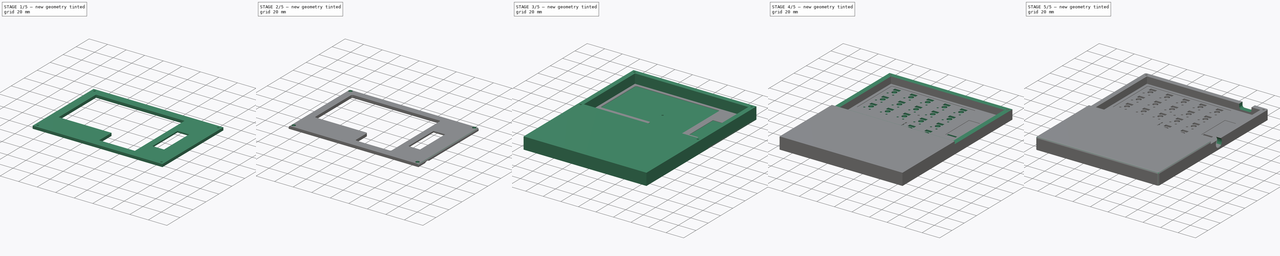
[diagram: build sequence overview — one tinted view per stage of 5, left to right]
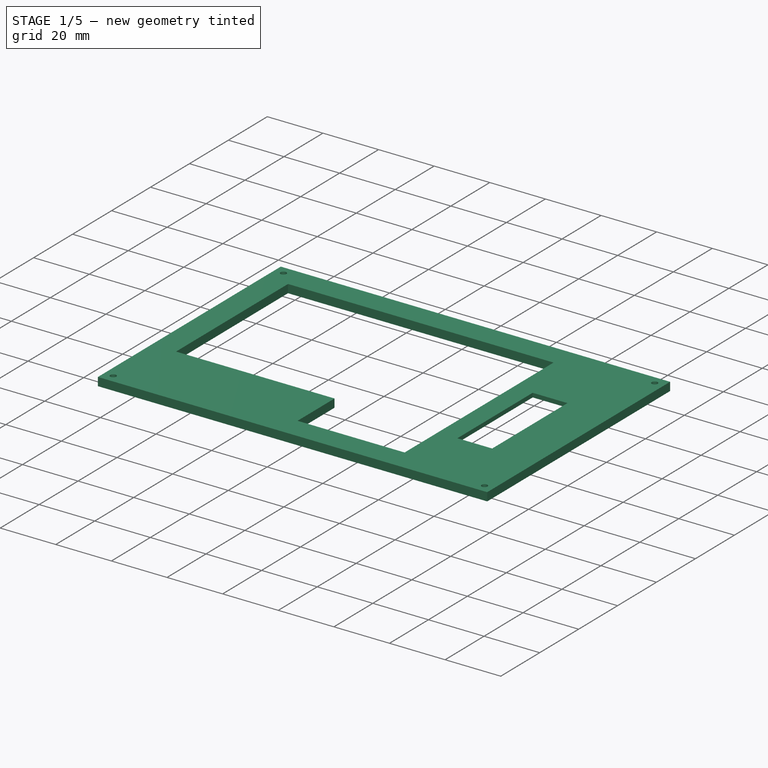
[diagram: stage 1 of 5 — iso view after this stage's code; geometry added in this stage tinted green]
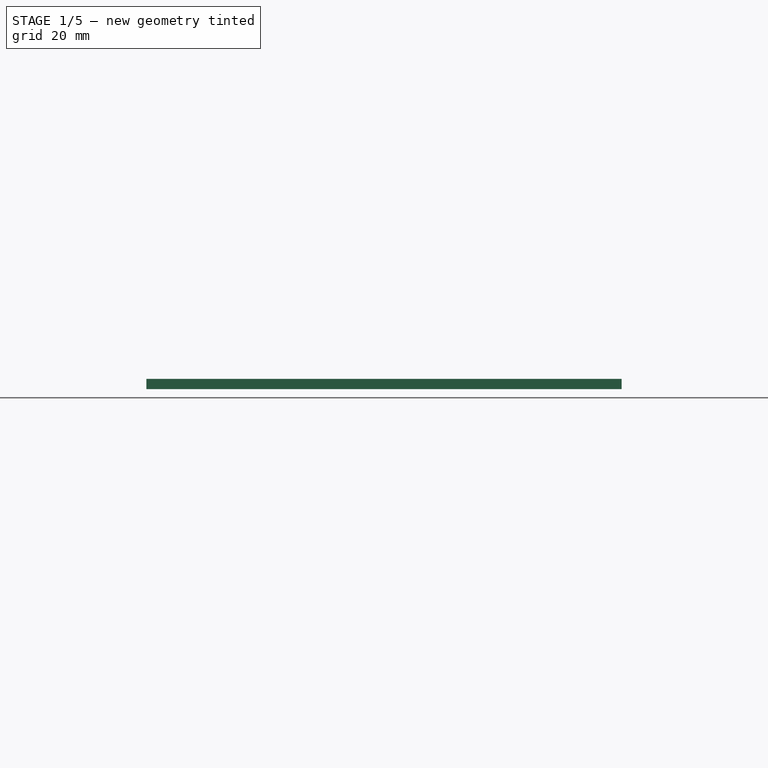
[diagram: stage 1 of 5 — front view after this stage's code; geometry added in this stage tinted green]
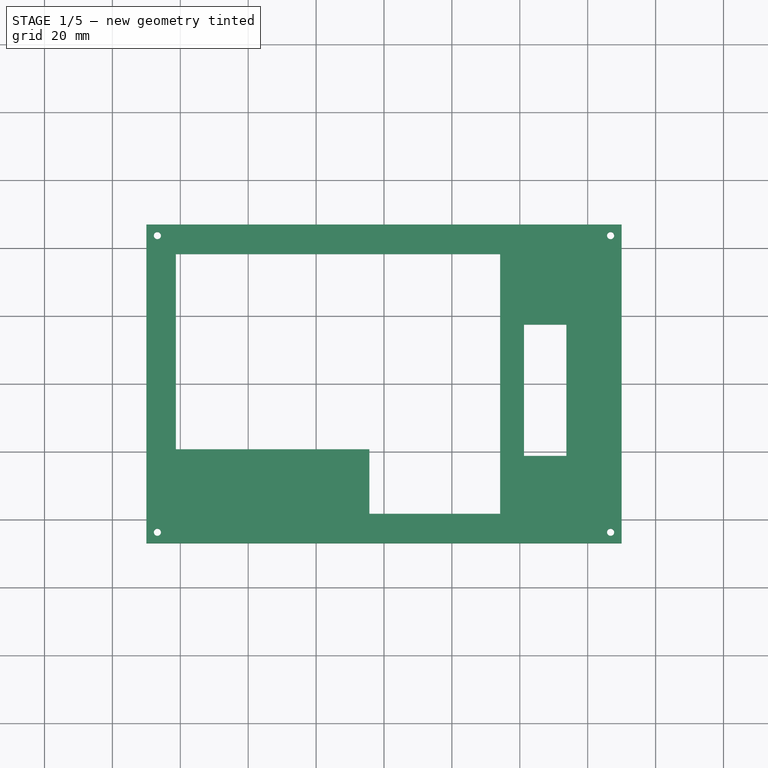
[diagram: stage 1 of 5 — top view after this stage's code; geometry added in this stage tinted green]
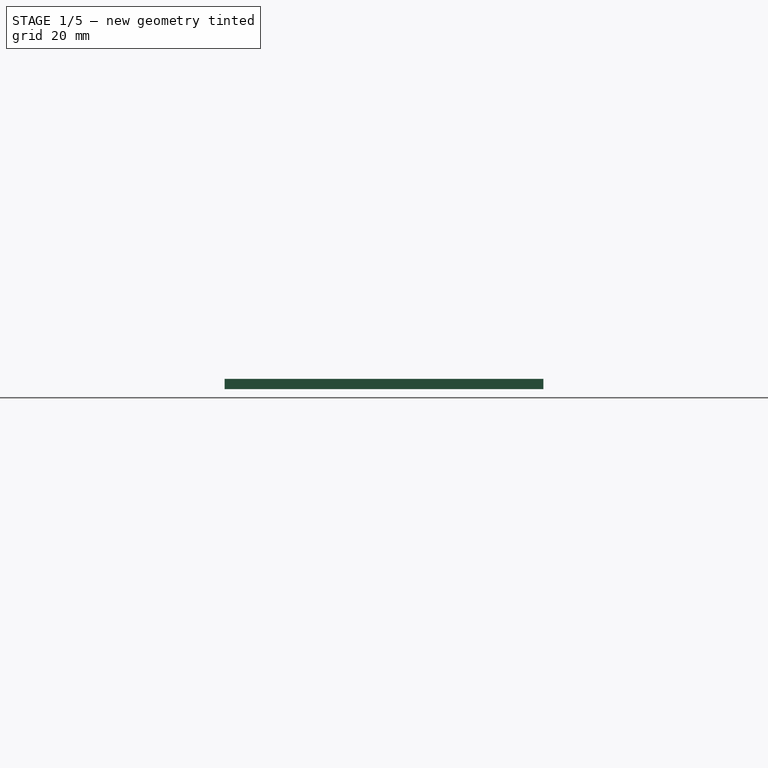
[diagram: stage 1 of 5 — right view after this stage's code; geometry added in this stage tinted green]
FCSTD DOCUMENT  (FreeCAD 1.1R41837 (Git))
Label: termite-left-individual
License: Creative Commons Attribution-NonCommercial-ShareAlike 4.0
objects: Sketcher::SketchObject×20, PartDesign::Pocket×16, PartDesign::Fillet×3, PartDesign::Pad×2, App::Point×2, PartDesign::Body×2, PartDesign::Chamfer×1
note: 108 computed .brp shape members not serialized (recipe doc carries the construction recipe); baked Part::Feature solids carry a one-line shape summary decoded from their .brp

FEATURE [App::Point] Origin465
  Role = Origin
FEATURE [PartDesign::Body] Body002  label="Bottom001"
  AllowCompound = false
  Group = -> [Sketch022,Pad002,Sketch023,Pocket016,Sketch026,Sketch027,Pocket018,Sketch028,Pocket019,Sketch030,Pocket021,Sketch031,Pocket022,Sketch032,Pocket023,Sketch033,Pocket024,Sketch034,Pocket025,Sketch035,Pocket026,Sketch036,Fillet003,Sketch037,Pocket027]
  Origin = -> Origin464
  Placement = pos=(0,0,-0.1) rot=(0,0,1;0rad)
  Tip = -> Pocket027
FEATURE [Sketcher::SketchObject] Sketch038
  ArcFitTolerance = 1e-06
  AttachmentSupport = -> [Origin468]
  ExternalTypes = [0]
  FullyConstrained = true
  MakeInternals = false
  MapMode = 5
  sketch-geometry (5):
    g0: LineSegment StartX=-70 StartY=-46.95 StartZ=0 EndX=70 EndY=-46.95 EndZ=0
    g1: LineSegment StartX=70 StartY=-46.95 StartZ=0 EndX=70 EndY=46.95 EndZ=0
    g2: LineSegment StartX=70 StartY=46.95 StartZ=0 EndX=-70 EndY=46.95 EndZ=0
    g3: LineSegment StartX=-70 StartY=46.95 StartZ=0 EndX=-70 EndY=-46.95 EndZ=0
    g4: GeomPoint [constr] X=0 Y=0 Z=0
  constraints (12):
    c: Coincident(g0,g1)
    c: Coincident(g1,g2)
    c: Coincident(g2,g3)
    c: Coincident(g3,g0)
    c: Horizontal(g0)
    c: Horizontal(g2)
    c: Vertical(g1)
    c: Vertical(g3)
    c: Symmetric(g2,g0,g4)
    c: Distance(g1,g3) = 140
    c: Distance(g0,g2) = 93.9
    c: Coincident(g4,g-1)
FEATURE [PartDesign::Pad] Pad004
  Direction = (0,0,1)
  Length = 3
  Length2 = 10
  Profile = -> Sketch038
  ReferenceAxis = -> Sketch038 [N_Axis]
  Refine = true
  Suppressed = false
  Type = 0
FEATURE [Sketcher::SketchObject] Sketch039
  ArcFitTolerance = 1e-06
  AttachmentSupport = -> [Pad004]
  ExternalTypes = [0]
  FullyConstrained = false
  MakeInternals = false
  MapMode = 5
  Placement = pos=(0,0,3) rot=(0,0,1;0rad)
  sketch-geometry (21):
    g0: LineSegment [constr] StartX=-64.1 StartY=-41.05 StartZ=0 EndX=64.1 EndY=-41.05 EndZ=0
    g1: LineSegment [constr] StartX=64.1 StartY=-41.05 StartZ=0 EndX=64.1 EndY=41.05 EndZ=0
    g2: LineSegment [constr] StartX=64.1 StartY=41.05 StartZ=0 EndX=-64.1 EndY=41.05 EndZ=0
    g3: LineSegment [constr] StartX=-64.1 StartY=41.05 StartZ=0 EndX=-64.1 EndY=-41.05 EndZ=0
    g4: GeomPoint [constr] X=0 Y=0 Z=0
    g5: LineSegment [constr] StartX=-64.1 StartY=41.05 StartZ=0 EndX=-64.1 EndY=38.25 EndZ=0
    g6: LineSegment [constr] StartX=-64.1 StartY=38.25 StartZ=0 EndX=-61.3 EndY=38.25 EndZ=0
    g7: LineSegment [constr] StartX=-61.3 StartY=38.25 StartZ=0 EndX=-61.3 EndY=41.05 EndZ=0
    g8: LineSegment [constr] StartX=-61.3 StartY=41.05 StartZ=0 EndX=-64.1 EndY=41.05 EndZ=0
    g9: LineSegment StartX=-61.3 StartY=38.25 StartZ=0 EndX=-61.3 EndY=-19.25 EndZ=0
    g10: LineSegment StartX=-61.3 StartY=-19.25 StartZ=0 EndX=-4.3 EndY=-19.25 EndZ=0
    g11: LineSegment StartX=-4.3 StartY=-19.25 StartZ=0 EndX=-4.3 EndY=-38.25 EndZ=0
    g12: LineSegment StartX=-4.3 StartY=-38.25 StartZ=0 EndX=34.2 EndY=-38.25 EndZ=0
    g13: LineSegment StartX=-61.3 StartY=38.25 StartZ=0 EndX=34.2 EndY=38.25 EndZ=0
    g14: LineSegment StartX=34.2 StartY=38.25 StartZ=0 EndX=34.2 EndY=-38.25 EndZ=0
    g15: LineSegment [constr] StartX=0 StartY=0 StartZ=0 EndX=41.2371 EndY=0 EndZ=0
    g16: LineSegment StartX=53.7371 StartY=-21.1866 StartZ=0 EndX=53.7371 EndY=17.4606 EndZ=0
    g17: LineSegment StartX=53.7371 StartY=17.4606 StartZ=0 EndX=41.2371 EndY=17.4606 EndZ=0
    g18: LineSegment StartX=41.2371 StartY=17.4606 StartZ=0 EndX=41.2371 EndY=-21.1866 EndZ=0
    g19: LineSegment StartX=41.2371 StartY=-21.1866 StartZ=0 EndX=53.7371 EndY=-21.1866 EndZ=0
    g20: LineSegment [constr] StartX=49.9207 StartY=-21.1866 StartZ=0 EndX=49.9207 EndY=0 EndZ=0
  constraints (57):
    c: Coincident(g0,g1)
    c: Coincident(g1,g2)
    c: Coincident(g2,g3)
    c: Coincident(g3,g0)
    c: Horizontal(g0)
    c: Horizontal(g2)
    c: Vertical(g1)
    c: Vertical(g3)
    c: Symmetric(g2,g0,g4)
    c: Distance(g1,g3) = 128.2
    c: Distance(g0,g2) = 82.1
    c: Coincident(g4,g-1)
    c: Coincident(g5,g6)
    c: Coincident(g6,g7)
    c: Coincident(g7,g8)
    c: Coincident(g8,g5)
    c: Vertical(g5)
    c: Vertical(g7)
    c: Horizontal(g6)
    c: Horizontal(g8)
    c: Coincident(g5,g2)
    c: Equal(g7,g6)
    c: DistanceY(g7,g7) = 2.8
    c: Coincident(g9,g6)
    c: Vertical(g9)
    c: DistanceY(g9,g9) = 57.5
    c: Coincident(g10,g9)
    c: Horizontal(g10)
    c: DistanceX(g10,g10) = 57
    c: Distance(g11) = 19
    c: Vertical(g11)
    c: Coincident(g11,g10)
    c: Horizontal(g12)
    c: Coincident(g12,g11)
    c: DistanceX(g12,g12) = 38.5
    c: Distance(g13) = 95.5
    c: Horizontal(g13)
    c: Coincident(g13,g6)
    c: Coincident(g14,g13)
    c: Coincident(g14,g12)
    c: Coincident(g15,g4)
    c: PointOnObject(g15,g-1)
    c: Coincident(g16,g17)
    c: Coincident(g17,g18)
    c: Coincident(g18,g19)
    c: Coincident(g19,g16)
    c: Vertical(g16)
    c: Vertical(g18)
    c: Horizontal(g17)
    c: Horizontal(g19)
    c: PointOnObject(g15,g18)
    c: DistanceX(g19,g19) = 12.5
    c: PointOnObject(g20,g19)
    c: PointOnObject(g20,g-1)
    c: DistanceX(g15,g15) = 41.2371
    c: DistanceY(g20,g20) = 21.1866
    c: DistanceY(g18,g18) = 38.6472
FEATURE [PartDesign::Pocket] Pocket028
  BaseFeature = -> Pad004
  Direction = (0,0,-1)
  Length = 5
  Length2 = 5
  Profile = -> Sketch039
  ReferenceAxis = -> Sketch039 [N_Axis]
  Refine = true
  Suppressed = false
  Type = 2
FEATURE [Sketcher::SketchObject] Sketch040
  ArcFitTolerance = 1e-06
  AttachmentSupport = -> [Pocket028]
  ExternalTypes = [0]
  FullyConstrained = true
  MakeInternals = false
  MapMode = 5
  Placement = pos=(0,0,0) rot=(1,0,0;3.14159rad)
  sketch-geometry (8):
    g0: LineSegment [constr] StartX=0 StartY=0 StartZ=0 EndX=0 EndY=-41.55 EndZ=0
    g1: LineSegment [constr] StartX=60 StartY=-41.55 StartZ=0 EndX=60 EndY=0 EndZ=0
    g2: LineSegment [constr] StartX=60 StartY=0 StartZ=0 EndX=0 EndY=0 EndZ=0
    g3: LineSegment StartX=60 StartY=-41.55 StartZ=0 EndX=60 EndY=18.45 EndZ=0
    g4: LineSegment StartX=60 StartY=18.45 StartZ=0 EndX=36 EndY=18.45 EndZ=0
    g5: LineSegment StartX=36 StartY=18.45 StartZ=0 EndX=36 EndY=-41.55 EndZ=0
    g6: LineSegment StartX=36 StartY=-41.55 StartZ=0 EndX=60 EndY=-41.55 EndZ=0
    g7: LineSegment [constr] StartX=0 StartY=-41.55 StartZ=0 EndX=60 EndY=-41.55 EndZ=0
  constraints (23):
    c: Coincident(g1,g2)
    c: Coincident(g2,g0)
    c: Vertical(g0)
    c: Vertical(g1)
    c: Horizontal(g2)
    c: Distance(g0,g1) = 60
    c: Coincident(g0,g-1)
    c: Coincident(g3,g4)
    c: Coincident(g4,g5)
    c: Coincident(g5,g6)
    c: Coincident(g6,g3)
    c: Vertical(g3)
    c: Vertical(g5)
    c: Horizontal(g4)
    c: Horizontal(g6)
    c: Distance(g3,g5) = 24
    c: Distance(g4,g6) = 60
    c: Coincident(g3,g1)
    c: Coincident(g7,g0)
    c: Horizontal(g7)
    c: DistanceY(g0,g0) = 41.55
    c: PointOnObject(g5,g7)
    c: PointOnObject(g7,g3)
FEATURE [PartDesign::Pocket] Pocket029
  BaseFeature = -> Pocket028
  Direction = (0,0,1)
  Length = 1.5
  Length2 = 5
  Profile = -> Sketch040
  ReferenceAxis = -> Sketch040 [N_Axis]
  Refine = true
  Suppressed = false
  Type = 0
FEATURE [Sketcher::SketchObject] Sketch041
  ArcFitTolerance = 1e-06
  AttachmentSupport = -> [Pocket029]
  ExternalGeometry = -> [Pocket029]
  ExternalTypes = [0,0,0]
  FullyConstrained = true
  MakeInternals = false
  MapMode = 5
  Placement = pos=(0,0,3) rot=(0,0,1;0rad)
  sketch-geometry (20):
    g0: LineSegment [constr] StartX=-70 StartY=46.95 StartZ=0 EndX=-70 EndY=43.7 EndZ=0
    g1: LineSegment [constr] StartX=-70 StartY=43.7 StartZ=0 EndX=-66.75 EndY=43.7 EndZ=0
    g2: LineSegment [constr] StartX=-66.75 StartY=43.7 StartZ=0 EndX=-66.75 EndY=46.95 EndZ=0
    g3: LineSegment [constr] StartX=-66.75 StartY=46.95 StartZ=0 EndX=-70 EndY=46.95 EndZ=0
    g4: LineSegment [constr] StartX=70 StartY=46.95 StartZ=0 EndX=66.75 EndY=46.95 EndZ=0
    g5: LineSegment [constr] StartX=66.75 StartY=46.95 StartZ=0 EndX=66.75 EndY=43.7 EndZ=0
    g6: LineSegment [constr] StartX=66.75 StartY=43.7 StartZ=0 EndX=70 EndY=43.7 EndZ=0
    g7: LineSegment [constr] StartX=70 StartY=43.7 StartZ=0 EndX=70 EndY=46.95 EndZ=0
    g8: LineSegment [constr] StartX=-70 StartY=-46.95 StartZ=0 EndX=-66.75 EndY=-46.95 EndZ=0
    g9: LineSegment [constr] StartX=-66.75 StartY=-46.95 StartZ=0 EndX=-66.75 EndY=-43.7 EndZ=0
    g10: LineSegment [constr] StartX=-66.75 StartY=-43.7 StartZ=0 EndX=-70 EndY=-43.7 EndZ=0
    g11: LineSegment [constr] StartX=-70 StartY=-43.7 StartZ=0 EndX=-70 EndY=-46.95 EndZ=0
    g12: LineSegment [constr] StartX=70 StartY=-46.95 StartZ=0 EndX=70 EndY=-43.7 EndZ=0
    g13: LineSegment [constr] StartX=70 StartY=-43.7 StartZ=0 EndX=66.75 EndY=-43.7 EndZ=0
    g14: LineSegment [constr] StartX=66.75 StartY=-43.7 StartZ=0 EndX=66.75 EndY=-46.95 EndZ=0
    g15: LineSegment [constr] StartX=66.75 StartY=-46.95 StartZ=0 EndX=70 EndY=-46.95 EndZ=0
    g16: Circle CenterX=66.75 CenterY=43.7 CenterZ=0 NormalX=0 NormalY=0 NormalZ=1 AngleXU=0 Radius=1.05
    g17: Circle CenterX=66.75 CenterY=-43.7 CenterZ=0 NormalX=0 NormalY=0 NormalZ=1 AngleXU=0 Radius=1.05
    g18: Circle CenterX=-66.75 CenterY=-43.7 CenterZ=0 NormalX=0 NormalY=0 NormalZ=1 AngleXU=0 Radius=1.05
    g19: Circle CenterX=-66.75 CenterY=43.7 CenterZ=0 NormalX=0 NormalY=0 NormalZ=1 AngleXU=0 Radius=1.05
  constraints (52):
    c: Coincident(g0,g1)
    c: Coincident(g1,g2)
    c: Coincident(g2,g3)
    c: Coincident(g3,g0)
    c: Vertical(g0)
    c: Vertical(g2)
    c: Horizontal(g1)
    c: Horizontal(g3)
    c: Coincident(g0,g-4)
    c: Equal(g1,g2)
    c: DistanceX(g1,g1) = 3.25
    c: Coincident(g4,g5)
    c: Coincident(g5,g6)
    c: Coincident(g6,g7)
    c: Coincident(g7,g4)
    c: Horizontal(g4)
    c: Horizontal(g6)
    c: Vertical(g5)
    c: Vertical(g7)
    c: Coincident(g4,g-3)
    c: Coincident(g8,g9)
    c: Coincident(g9,g10)
    c: Coincident(g10,g11)
    c: Coincident(g11,g8)
    c: Horizontal(g8)
    c: Horizontal(g10)
    c: Vertical(g9)
    c: Vertical(g11)
    c: Coincident(g8,g-4)
    c: Coincident(g12,g13)
    c: Coincident(g13,g14)
    c: Coincident(g14,g15)
    c: Coincident(g15,g12)
    c: Vertical(g12)
    c: Vertical(g14)
    c: Horizontal(g13)
    c: Horizontal(g15)
    c: Coincident(g12,g-5)
    c: Equal(g14,g13)
    c: Equal(g13,g6)
    c: Equal(g6,g5)
    c: Equal(g5,g10)
    c: Equal(g10,g9)
    c: Equal(g9,g1)
    c: Diameter(g16) = 2.1
    c: Coincident(g16,g5)
    c: Coincident(g17,g13)
    c: Coincident(g18,g9)
    c: Coincident(g19,g1)
    c: Equal(g18,g19)
    c: Equal(g19,g17)
    c: Equal(g17,g16)
FEATURE [PartDesign::Pocket] Pocket030
  BaseFeature = -> Pocket029
  Direction = (0,0,-1)
  Length = 5
  Length2 = 5
  Profile = -> Sketch041
  ReferenceAxis = -> Sketch041 [N_Axis]
  Refine = true
  Suppressed = false
  Type = 1
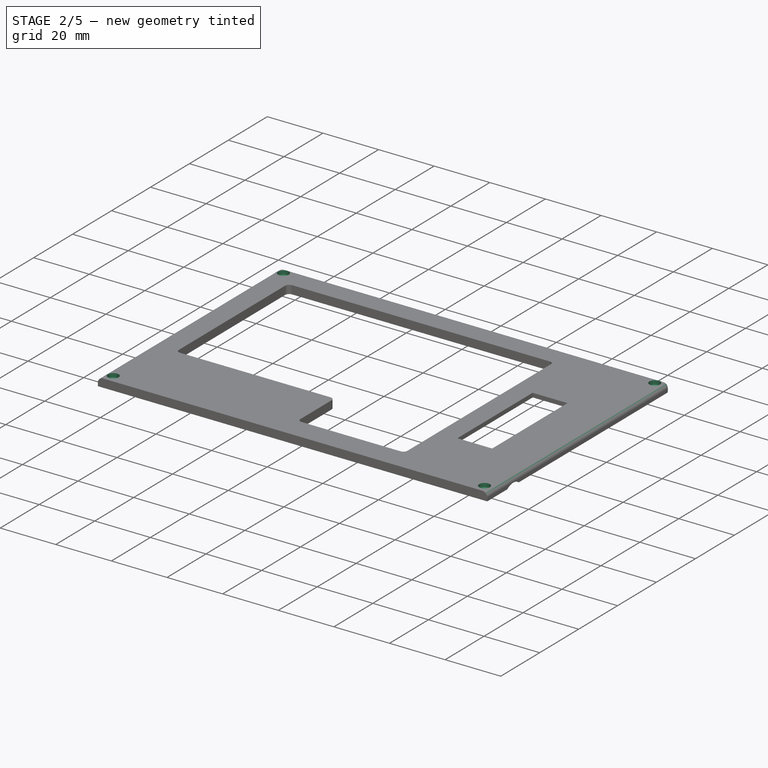
[diagram: stage 2 of 5 — iso view after this stage's code; geometry added in this stage tinted green]
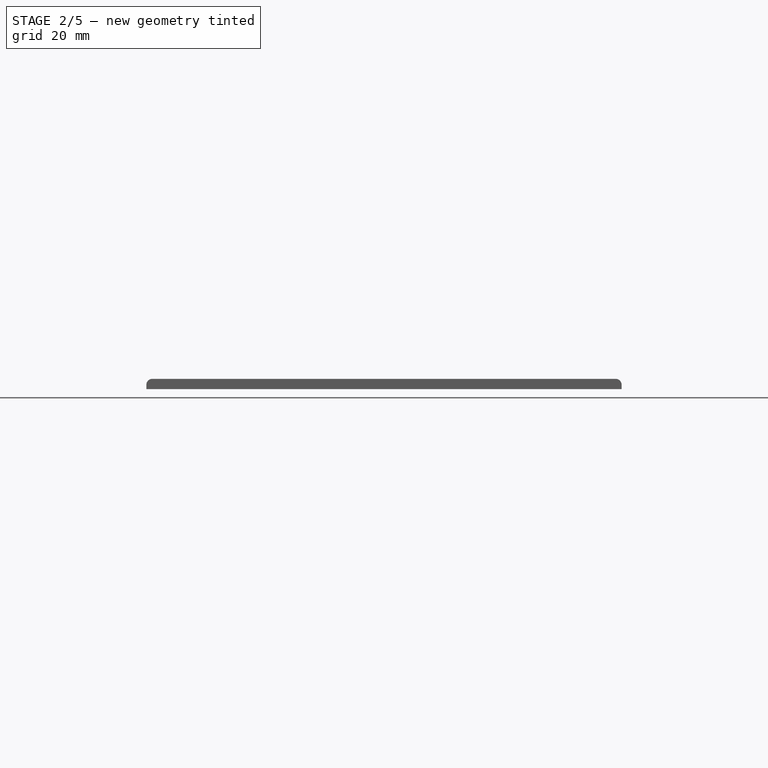
[diagram: stage 2 of 5 — front view after this stage's code; geometry added in this stage tinted green]
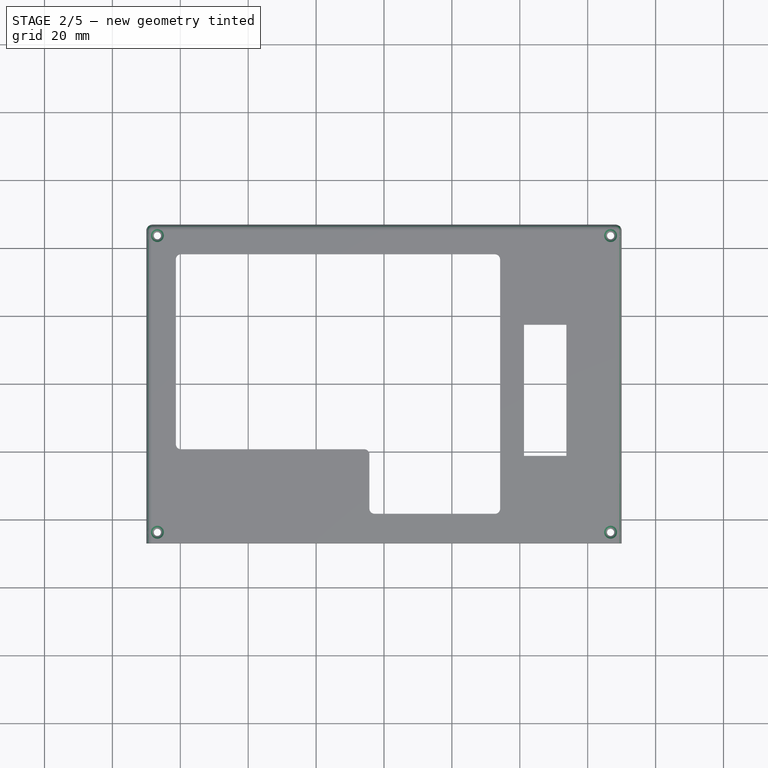
[diagram: stage 2 of 5 — top view after this stage's code; geometry added in this stage tinted green]
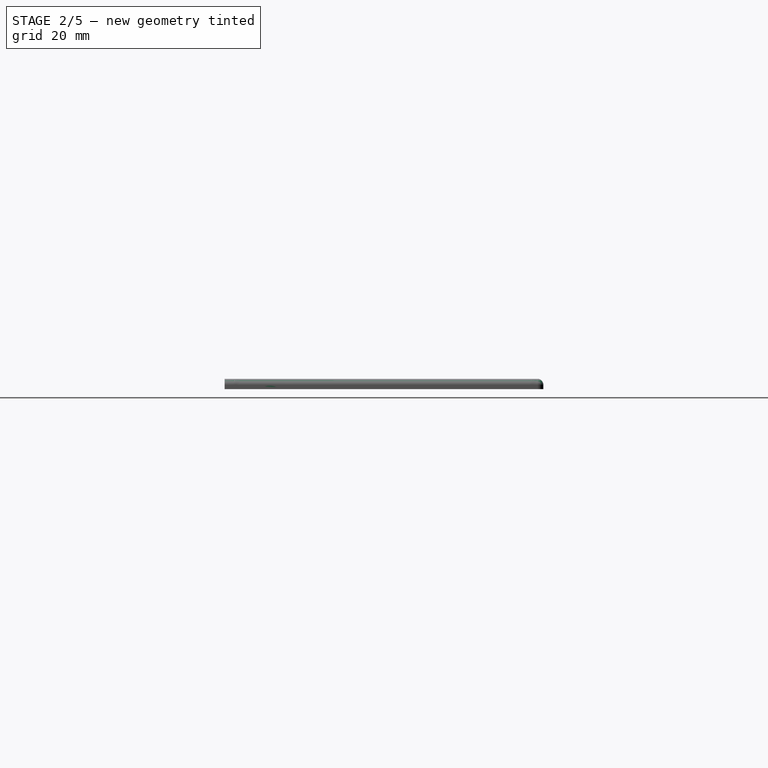
[diagram: stage 2 of 5 — right view after this stage's code; geometry added in this stage tinted green]
FEATURE [Sketcher::SketchObject] Sketch042
  ArcFitTolerance = 1e-06
  AttachmentSupport = -> [Pocket030]
  ExternalGeometry = -> [Pocket030]
  ExternalTypes = [0]
  FullyConstrained = false
  MakeInternals = false
  MapMode = 5
  Placement = pos=(0,0,3) rot=(0,0,1;0rad)
  sketch-geometry (7):
    g0: Circle CenterX=-66.75 CenterY=43.7 CenterZ=0 NormalX=0 NormalY=0 NormalZ=1 AngleXU=0 Radius=1.9
    g1: Circle CenterX=66.75 CenterY=43.7 CenterZ=0 NormalX=0 NormalY=0 NormalZ=1 AngleXU=0 Radius=1.9
    g2: Circle [constr] CenterX=66.75 CenterY=43.7 CenterZ=0 NormalX=0 NormalY=0 NormalZ=1 AngleXU=0 Radius=1.05
    g3: Circle CenterX=-66.75 CenterY=-43.7 CenterZ=0 NormalX=0 NormalY=0 NormalZ=1 AngleXU=0 Radius=1.9
    g4: Circle CenterX=66.75 CenterY=-43.7 CenterZ=0 NormalX=0 NormalY=0 NormalZ=1 AngleXU=0 Radius=1.9
    g5: Circle [constr] CenterX=66.75 CenterY=-43.7 CenterZ=0 NormalX=0 NormalY=0 NormalZ=1 AngleXU=0 Radius=1.05
    g6: Circle [constr] CenterX=-66.75 CenterY=-43.7 CenterZ=0 NormalX=0 NormalY=0 NormalZ=1 AngleXU=0 Radius=1.05
  constraints (11):
    c: Diameter(g0) = 3.8
    c: Coincident(g0,g-3)
    c: Diameter(g1) = 3.8
    c: Coincident(g1,g2)
    c: Diameter(g3) = 3.8
    c: Coincident(g3,g6)
    c: Diameter(g4) = 3.8
    c: Coincident(g4,g5)
    c: Symmetric(g0,g1,g-2)
    c: Symmetric(g1,g4,g-1)
    c: Symmetric(g3,g4,g-2)
FEATURE [PartDesign::Pocket] Pocket031
  BaseFeature = -> Pocket030
  Direction = (0,0,-1)
  Length = 1.4
  Length2 = 5
  Profile = -> Sketch042
  ReferenceAxis = -> Sketch042 [N_Axis]
  Refine = true
  Suppressed = false
  Type = 0
FEATURE [PartDesign::Chamfer] Chamfer001
  Angle = 45
  Base = -> Pocket031 [Edge55,Edge47,Edge45,Edge74]
  BaseFeature = -> Pocket031
  ChamferType = 2
  FlipDirection = false
  Refine = true
  Size = 0.843
  Size2 = 1
  SupportTransform = false
  Suppressed = false
  UseAllEdges = false
FEATURE [PartDesign::Fillet] Fillet004
  Base = -> Chamfer001 [Edge42,Edge46,Edge48,Edge44,Edge40,Edge39]
  BaseFeature = -> Chamfer001
  Radius = 1.5
  Refine = true
  SupportTransform = false
  Suppressed = false
  UseAllEdges = false
FEATURE [Sketcher::SketchObject] Sketch043
  ArcFitTolerance = 1e-06
  AttachmentSupport = -> [Fillet004]
  ExternalTypes = [0]
  FullyConstrained = true
  MakeInternals = false
  MapMode = 5
  Placement = pos=(70,0,0) rot=(0.57735,0.57735,0.57735;2.0944rad)
  sketch-geometry (5):
    g0: LineSegment [constr] StartX=0 StartY=0 StartZ=0 EndX=-33.64 EndY=0 EndZ=0
    g1: LineSegment [constr] StartX=-33.64 StartY=0 StartZ=0 EndX=-33.64 EndY=-3.85 EndZ=0
    g2: LineSegment [constr] StartX=-33.64 StartY=-3.85 StartZ=0 EndX=0 EndY=-3.85 EndZ=0
    g3: LineSegment [constr] StartX=0 StartY=-3.85 StartZ=0 EndX=0 EndY=0 EndZ=0
    g4: Circle CenterX=-33.64 CenterY=-3.85 CenterZ=0 NormalX=0 NormalY=0 NormalZ=1 AngleXU=0 Radius=4.85
  constraints (13):
    c: Coincident(g0,g1)
    c: Coincident(g1,g2)
    c: Coincident(g2,g3)
    c: Coincident(g3,g0)
    c: Horizontal(g0)
    c: Horizontal(g2)
    c: Vertical(g1)
    c: Vertical(g3)
    c: Coincident(g0,g-1)
    c: DistanceY(g1,g1) = 3.85
    c: DistanceX(g0,g0) = 33.64
    c: Diameter(g4) = 9.7
    c: Coincident(g4,g1)
FEATURE [PartDesign::Pocket] Pocket032
  BaseFeature = -> Fillet004
  Direction = (-1,0,0)
  Length = 10
  Length2 = 5
  Profile = -> Sketch043
  ReferenceAxis = -> Sketch043 [N_Axis]
  Refine = true
  Suppressed = false
  Type = 0
FEATURE [PartDesign::Fillet] Fillet005
  Base = -> Pocket032 [Edge39,Edge37,Edge36,Edge33,Edge35]
  BaseFeature = -> Pocket032
  Radius = 1.8
  Refine = true
  SupportTransform = false
  Suppressed = false
  UseAllEdges = false
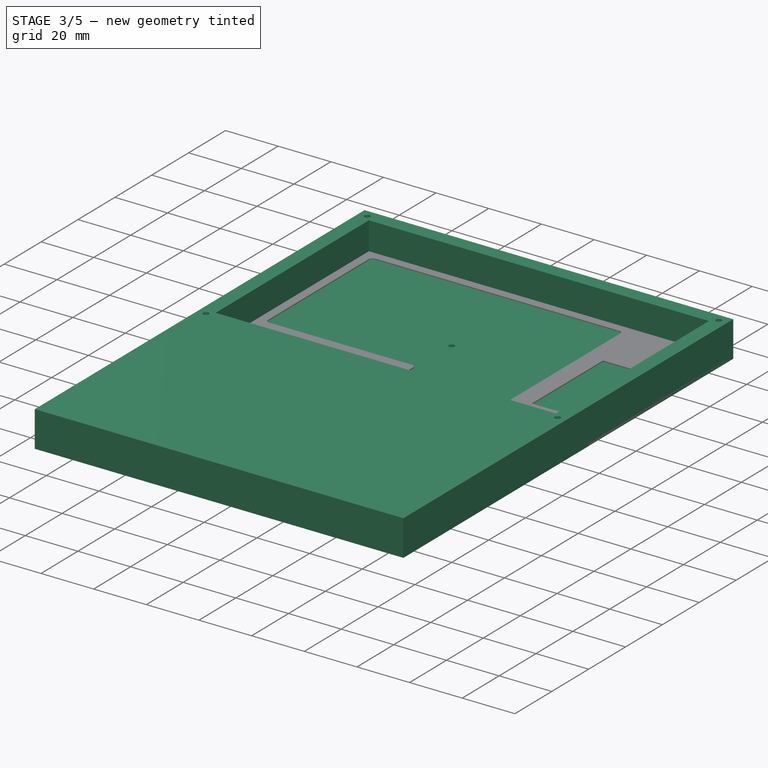
[diagram: stage 3 of 5 — iso view after this stage's code; geometry added in this stage tinted green]
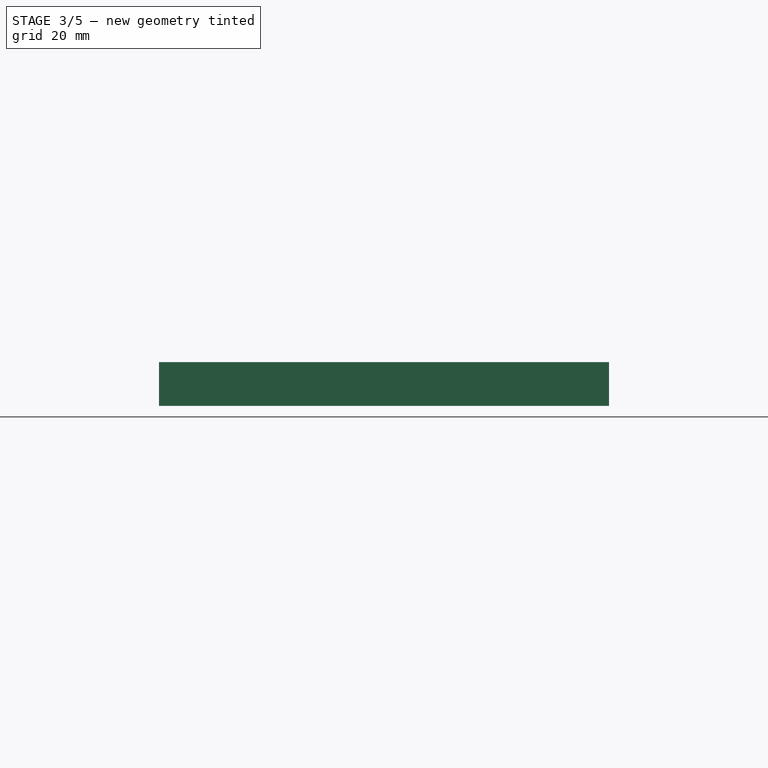
[diagram: stage 3 of 5 — front view after this stage's code; geometry added in this stage tinted green]
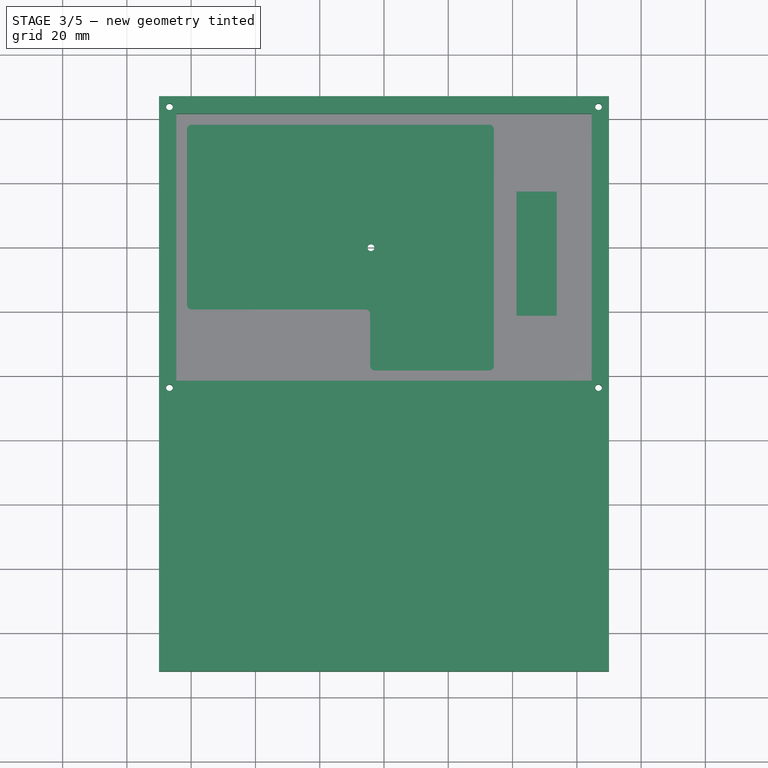
[diagram: stage 3 of 5 — top view after this stage's code; geometry added in this stage tinted green]
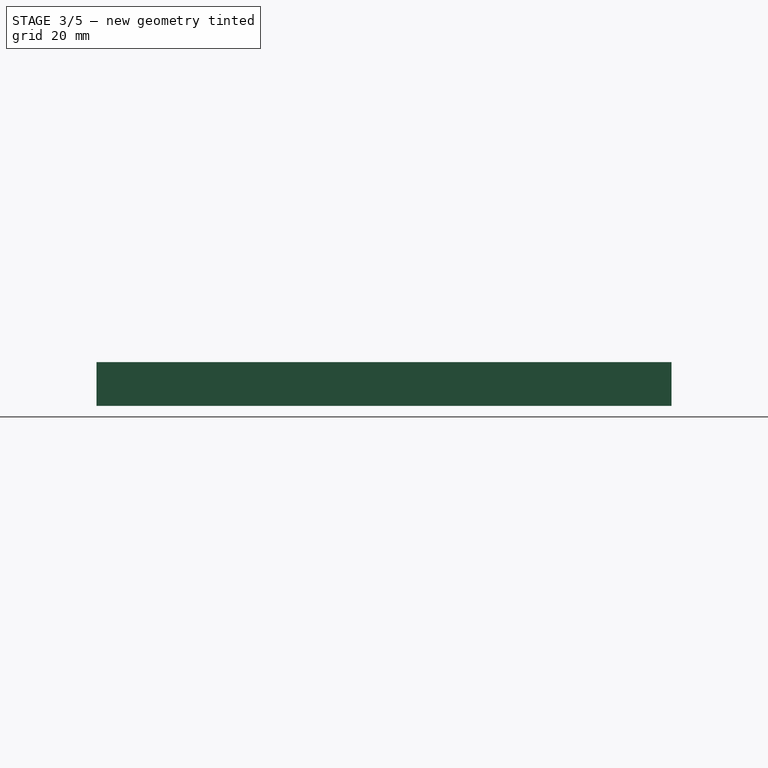
[diagram: stage 3 of 5 — right view after this stage's code; geometry added in this stage tinted green]
FEATURE [Sketcher::SketchObject] Sketch022
  ArcFitTolerance = 1e-06
  AttachmentSupport = -> [Origin464]
  ExternalTypes = [0]
  FullyConstrained = false
  MakeInternals = false
  MapMode = 5
  sketch-geometry (11):
    g0: LineSegment [constr] StartX=-64.1 StartY=41.05 StartZ=0 EndX=-64.1 EndY=-41.05 EndZ=0
    g1: LineSegment [constr] StartX=-64.1 StartY=-41.05 StartZ=0 EndX=64.1 EndY=-41.05 EndZ=0
    g2: LineSegment [constr] StartX=64.1 StartY=-41.05 StartZ=0 EndX=64.1 EndY=41.05 EndZ=0
    g3: LineSegment [constr] StartX=64.1 StartY=41.05 StartZ=0 EndX=-64.1 EndY=41.05 EndZ=0
    g4: LineSegment StartX=70 StartY=-46.95 StartZ=0 EndX=70 EndY=46.95 EndZ=0
    g5: LineSegment StartX=70 StartY=46.95 StartZ=0 EndX=-70 EndY=46.95 EndZ=0
    g6: LineSegment StartX=-70 StartY=46.95 StartZ=0 EndX=-70 EndY=-46.95 EndZ=0
    g7: GeomPoint [constr] X=0 Y=0 Z=0
    g8: LineSegment StartX=-70 StartY=-46.95 StartZ=0 EndX=-70 EndY=-131.95 EndZ=0
    g9: LineSegment StartX=70 StartY=-46.95 StartZ=0 EndX=70 EndY=-131.95 EndZ=0
    g10: LineSegment StartX=-70 StartY=-131.95 StartZ=0 EndX=70 EndY=-131.95 EndZ=0
  constraints (28):
    c: Coincident(g0,g1)
    c: Coincident(g1,g2)
    c: Coincident(g2,g3)
    c: Coincident(g3,g0)
    c: Vertical(g0)
    c: Vertical(g2)
    c: Horizontal(g1)
    c: Horizontal(g3)
    c: DistanceX(g1,g1) = 128.2
    c: DistanceY(g2,g2) = 82.1
    c: Coincident(g4,g5)
    c: Coincident(g5,g6)
    c: Horizontal(g5)
    c: Vertical(g4)
    c: Vertical(g6)
    c: Symmetric(g5,g6,g7)
    c: Distance(g4,g6) = 140
    c: Distance(g6,g5) = 93.9
    c: Coincident(g7,g-1)
    c: Distance(g8) = 85
    c: Vertical(g8)
    c: Coincident(g8,g6)
    c: Vertical(g9)
    c: Coincident(g9,g4)
    c: Coincident(g10,g8)
    c: Coincident(g10,g9)
    c: Horizontal(g10)
    c: Equal(g9,g8)
FEATURE [PartDesign::Pad] Pad002
  Direction = (0,0,1)
  Length = 13.6
  Length2 = 10
  Profile = -> Sketch022
  ReferenceAxis = -> Sketch022 [N_Axis]
  Refine = true
  Suppressed = false
  Type = 0
FEATURE [Sketcher::SketchObject] Sketch023
  ArcFitTolerance = 1e-06
  AttachmentSupport = -> [Pad002]
  ExternalTypes = [0]
  FullyConstrained = true
  MakeInternals = false
  MapMode = 5
  Placement = pos=(0,0,13.6) rot=(0,0,1;0rad)
  sketch-geometry (5):
    g0: LineSegment StartX=-64.6 StartY=-41.55 StartZ=0 EndX=64.6 EndY=-41.55 EndZ=0
    g1: LineSegment StartX=64.6 StartY=-41.55 StartZ=0 EndX=64.6 EndY=41.55 EndZ=0
    g2: LineSegment StartX=64.6 StartY=41.55 StartZ=0 EndX=-64.6 EndY=41.55 EndZ=0
    g3: LineSegment StartX=-64.6 StartY=41.55 StartZ=0 EndX=-64.6 EndY=-41.55 EndZ=0
    g4: GeomPoint [constr] X=0 Y=0 Z=0
  constraints (12):
    c: Coincident(g0,g1)
    c: Coincident(g1,g2)
    c: Coincident(g2,g3)
    c: Coincident(g3,g0)
    c: Horizontal(g0)
    c: Horizontal(g2)
    c: Vertical(g1)
    c: Vertical(g3)
    c: Symmetric(g2,g0,g4)
    c: Distance(g1,g3) = 129.2
    c: Distance(g0,g2) = 83.1
    c: Coincident(g4,g-1)
FEATURE [PartDesign::Pocket] Pocket016
  BaseFeature = -> Pad002
  Direction = (0,0,-1)
  Length = 11
  Length2 = 5
  Profile = -> Sketch023
  ReferenceAxis = -> Sketch023 [N_Axis]
  Refine = true
  Suppressed = false
  Type = 0
FEATURE [Sketcher::SketchObject] Sketch026
  ArcFitTolerance = 1e-06
  AttachmentSupport = -> [Origin464]
  ExternalTypes = [0]
  FullyConstrained = true
  MakeInternals = false
  MapMode = 5
FEATURE [Sketcher::SketchObject] Sketch027
  ArcFitTolerance = 1e-06
  AttachmentSupport = -> [Pocket016]
  ExternalTypes = [0]
  FullyConstrained = true
  MakeInternals = false
  MapMode = 5
  Placement = pos=(0,0,13.6) rot=(0,0,1;0rad)
  sketch-geometry (34):
    g0: LineSegment [constr] StartX=-70 StartY=-46.95 StartZ=0 EndX=70 EndY=-46.95 EndZ=0
    g1: LineSegment [constr] StartX=70 StartY=-46.95 StartZ=0 EndX=70 EndY=46.95 EndZ=0
    g2: LineSegment [constr] StartX=70 StartY=46.95 StartZ=0 EndX=-70 EndY=46.95 EndZ=0
    g3: LineSegment [constr] StartX=-70 StartY=46.95 StartZ=0 EndX=-70 EndY=-46.95 EndZ=0
    g4: LineSegment [constr] StartX=70 StartY=46.95 StartZ=0 EndX=63.5 EndY=46.95 EndZ=0
    g5: LineSegment [constr] StartX=63.5 StartY=46.95 StartZ=0 EndX=63.5 EndY=40.45 EndZ=0
    g6: LineSegment [constr] StartX=63.5 StartY=40.45 StartZ=0 EndX=70 EndY=40.45 EndZ=0
    g7: LineSegment [constr] StartX=70 StartY=40.45 StartZ=0 EndX=70 EndY=46.95 EndZ=0
    g8: LineSegment [constr] StartX=63.5 StartY=40.45 StartZ=0 EndX=70 EndY=46.95 EndZ=0
    g9: LineSegment [constr] StartX=70 StartY=40.45 StartZ=0 EndX=66.75 EndY=43.7 EndZ=0
    g10: Circle CenterX=66.75 CenterY=43.7 CenterZ=0 NormalX=0 NormalY=0 NormalZ=1 AngleXU=0 Radius=1.05
    g11: LineSegment [constr] StartX=-70 StartY=46.95 StartZ=0 EndX=-70 EndY=40.45 EndZ=0
    g12: LineSegment [constr] StartX=-70 StartY=40.45 StartZ=0 EndX=-63.5 EndY=40.45 EndZ=0
    g13: LineSegment [constr] StartX=-63.5 StartY=40.45 StartZ=0 EndX=-63.5 EndY=46.95 EndZ=0
    g14: LineSegment [constr] StartX=-63.5 StartY=46.95 StartZ=0 EndX=-70 EndY=46.95 EndZ=0
    g15: LineSegment [constr] StartX=-70 StartY=-46.95 StartZ=0 EndX=-63.5 EndY=-46.95 EndZ=0
    g16: LineSegment [constr] StartX=-63.5 StartY=-46.95 StartZ=0 EndX=-63.5 EndY=-40.45 EndZ=0
    g17: LineSegment [constr] StartX=-63.5 StartY=-40.45 StartZ=0 EndX=-70 EndY=-40.45 EndZ=0
    g18: LineSegment [constr] StartX=-70 StartY=-40.45 StartZ=0 EndX=-70 EndY=-46.95 EndZ=0
    g19: LineSegment [constr] StartX=70 StartY=-46.95 StartZ=0 EndX=70 EndY=-40.45 EndZ=0
    g20: LineSegment [constr] StartX=70 StartY=-40.45 StartZ=0 EndX=63.5 EndY=-40.45 EndZ=0
    g21: LineSegment [constr] StartX=63.5 StartY=-40.45 StartZ=0 EndX=63.5 EndY=-46.95 EndZ=0
    g22: LineSegment [constr] StartX=63.5 StartY=-46.95 StartZ=0 EndX=70 EndY=-46.95 EndZ=0
    g23: LineSegment [constr] StartX=-70 StartY=-46.95 StartZ=0 EndX=-63.5 EndY=-40.45 EndZ=0
    g24: LineSegment [constr] StartX=-63.5 StartY=-46.95 StartZ=0 EndX=-66.75 EndY=-43.7 EndZ=0
    g25: LineSegment [constr] StartX=-70 StartY=40.45 StartZ=0 EndX=-63.5 EndY=46.95 EndZ=0
    g26: LineSegment [constr] StartX=-63.5 StartY=40.45 StartZ=0 EndX=-66.75 EndY=43.7 EndZ=0
    g27: LineSegment [constr] StartX=63.5 StartY=-46.95 StartZ=0 EndX=70 EndY=-40.45 EndZ=0
    g28: LineSegment [constr] StartX=70 StartY=-46.95 StartZ=0 EndX=66.75 EndY=-43.7 EndZ=0
    g29: Circle CenterX=66.75 CenterY=-43.7 CenterZ=0 NormalX=0 NormalY=0 NormalZ=1 AngleXU=0 Radius=1.05
    g30: Circle CenterX=-66.75 CenterY=-43.7 CenterZ=0 NormalX=0 NormalY=0 NormalZ=1 AngleXU=0 Radius=1.05
    g31: Circle CenterX=-66.75 CenterY=43.7 CenterZ=0 NormalX=0 NormalY=0 NormalZ=1 AngleXU=0 Radius=1.05
    g32: Circle CenterX=-4.05 CenterY=0 CenterZ=0 NormalX=0 NormalY=0 NormalZ=1 AngleXU=0 Radius=1.05
    g33: LineSegment [constr] StartX=-4.05 StartY=0 StartZ=0 EndX=0 EndY=0 EndZ=0
  constraints (84):
    c: Coincident(g0,g1)
    c: Coincident(g1,g2)
    c: Coincident(g2,g3)
    c: Coincident(g3,g0)
    c: Horizontal(g0)
    c: Horizontal(g2)
    c: Vertical(g1)
    c: Vertical(g3)
    c: Symmetric(g2,g0,g-1)
    c: Distance(g1,g3) = 140
    c: Distance(g0,g2) = 93.9
    c: Coincident(g4,g5)
    c: Coincident(g5,g6)
    c: Coincident(g6,g7)
    c: Coincident(g7,g4)
    c: Horizontal(g4)
    c: Horizontal(g6)
    c: Vertical(g5)
    c: Vertical(g7)
    c: Coincident(g4,g1)
    c: Equal(g6,g5)
    c: Coincident(g8,g5)
    c: Coincident(g8,g1)
    c: Coincident(g9,g6)
    c: Symmetric(g8,g8,g9)
    c: Diameter(g10) = 2.1
    c: Coincident(g10,g9)
    c: Coincident(g11,g12)
    c: Coincident(g12,g13)
    c: Coincident(g13,g14)
    c: Coincident(g14,g11)
    c: Vertical(g11)
    c: Vertical(g13)
    c: Horizontal(g12)
    c: Horizontal(g14)
    c: Coincident(g11,g2)
    c: Equal(g12,g13)
    c: DistanceX(g12,g12) = 6.5
    c: Coincident(g15,g16)
    c: Coincident(g16,g17)
    c: Coincident(g17,g18)
    c: Coincident(g18,g15)
    c: Horizontal(g15)
    c: Horizontal(g17)
    c: Vertical(g16)
    c: Vertical(g18)
    c: Coincident(g15,g0)
    c: Equal(g16,g17)
    c: Coincident(g19,g20)
    c: Coincident(g20,g21)
    c: Coincident(g21,g22)
    c: Coincident(g22,g19)
    c: Vertical(g19)
    c: Vertical(g21)
    c: Horizontal(g20)
    c: Horizontal(g22)
    c: Coincident(g19,g0)
    c: Equal(g21,g20)
    c: Coincident(g23,g0)
    c: Coincident(g23,g16)
    c: Coincident(g24,g15)
    c: Symmetric(g23,g23,g24)
    c: Coincident(g25,g11)
    c: Coincident(g25,g13)
    c: Coincident(g26,g12)
    c: Symmetric(g25,g25,g26)
    c: Coincident(g27,g21)
    c: Coincident(g27,g19)
    c: Coincident(g28,g0)
    c: Symmetric(g27,g27,g28)
    c: Coincident(g29,g28)
    c: Coincident(g30,g24)
    c: Coincident(g31,g26)
    c: Equal(g31,g30)
    c: Equal(g30,g29)
    c: Equal(g29,g10)
    c: Equal(g17,g12)
    c: Equal(g20,g17)
    c: Equal(g5,g20)
    c: Equal(g32,g10)
    c: PointOnObject(g32,g-1)
    c: Coincident(g33,g32)
    c: Coincident(g33,g-1)
    c: DistanceX(g33,g33) = 4.05
FEATURE [PartDesign::Pocket] Pocket018
  BaseFeature = -> Pocket016
  Direction = (0,0,-1)
  Length = 30
  Length2 = 5
  Profile = -> Sketch027
  ReferenceAxis = -> Sketch027 [N_Axis]
  Refine = true
  Suppressed = false
  Type = 1
FEATURE [Sketcher::SketchObject] Sketch044
  ArcFitTolerance = 1e-06
  AttachmentSupport = -> [Fillet005]
  ExternalTypes = [0]
  FullyConstrained = true
  MakeInternals = false
  MapMode = 5
  Placement = pos=(0,46.95,0) rot=(0,0.707107,0.707107;3.14159rad)
  sketch-geometry (18):
    g0: LineSegment [constr] StartX=0 StartY=0 StartZ=0 EndX=0 EndY=-5.6 EndZ=0
    g1: LineSegment [constr] StartX=0 StartY=-5.6 StartZ=0 EndX=-40.5 EndY=-5.6 EndZ=0
    g2: LineSegment [constr] StartX=-40.5 StartY=-5.6 StartZ=0 EndX=-40.5 EndY=0 EndZ=0
    g3: LineSegment [constr] StartX=-40.5 StartY=0 StartZ=0 EndX=0 EndY=0 EndZ=0
    g4: LineSegment StartX=-40.5 StartY=-3.1 StartZ=0 EndX=-40.5 EndY=-0.1 EndZ=0
    g5: LineSegment StartX=-43 StartY=2.4 StartZ=0 EndX=-52 EndY=2.4 EndZ=0
    g6: LineSegment StartX=-54.5 StartY=-0.1 StartZ=0 EndX=-54.5 EndY=-3.1 EndZ=0
    g7: LineSegment StartX=-52 StartY=-5.6 StartZ=0 EndX=-43 EndY=-5.6 EndZ=0
    g8: LineSegment [constr] StartX=-54.5 StartY=-5.6 StartZ=0 EndX=-40.5 EndY=2.4 EndZ=0
    g9: LineSegment [constr] StartX=-40.5 StartY=-5.6 StartZ=0 EndX=-54.5 EndY=2.4 EndZ=0
    g10: ArcOfCircle CenterX=-43 CenterY=-3.1 CenterZ=0 NormalX=0 NormalY=0 NormalZ=1 AngleXU=0 Radius=2.5 StartAngle=4.71239 EndAngle=6.28319
    g11: GeomPoint [constr] X=-40.5 Y=-5.6 Z=0
    g12: ArcOfCircle CenterX=-43 CenterY=-0.1 CenterZ=0 NormalX=0 NormalY=0 NormalZ=1 AngleXU=0 Radius=2.5 StartAngle=0 EndAngle=1.5708
    g13: GeomPoint [constr] X=-40.5 Y=2.4 Z=0
    g14: ArcOfCircle CenterX=-52 CenterY=-0.1 CenterZ=0 NormalX=0 NormalY=0 NormalZ=1 AngleXU=0 Radius=2.5 StartAngle=1.5708 EndAngle=3.14159
    g15: GeomPoint [constr] X=-54.5 Y=2.4 Z=0
    g16: ArcOfCircle CenterX=-52 CenterY=-3.1 CenterZ=0 NormalX=0 NormalY=0 NormalZ=1 AngleXU=0 Radius=2.5 StartAngle=3.14159 EndAngle=4.71239
    g17: GeomPoint [constr] X=-54.5 Y=-5.6 Z=0
  constraints (42):
    c: Coincident(g0,g1)
    c: Coincident(g1,g2)
    c: Coincident(g2,g3)
    c: Coincident(g3,g0)
    c: Vertical(g0)
    c: Vertical(g2)
    c: Horizontal(g1)
    c: Horizontal(g3)
    c: Coincident(g0,g-1)
    c: Vertical(g4)
    c: Vertical(g6)
    c: Horizontal(g5)
    c: Horizontal(g7)
    c: Distance(g11,g17) = 14
    c: Distance(g13,g11) = 8
    c: Coincident(g11,g1)
    c: Coincident(g8,g17)
    c: Coincident(g8,g13)
    c: Coincident(g9,g1)
    c: Coincident(g9,g15)
    c: DistanceX(g3,g3) = 40.5
    c: DistanceY(g2,g2) = -5.6
    c: PointOnObject(g11,g7)
    c: PointOnObject(g11,g4)
    c: Tangent(g7,g10) = -1.5708
    c: Tangent(g4,g10) = -1.5708
    c: PointOnObject(g13,g4)
    c: PointOnObject(g13,g5)
    c: Tangent(g4,g12) = -1.5708
    c: Tangent(g5,g12) = -1.5708
    c: PointOnObject(g15,g5)
    c: PointOnObject(g15,g6)
    c: Tangent(g5,g14) = -1.5708
    c: Tangent(g6,g14) = -1.5708
    c: PointOnObject(g17,g6)
    c: PointOnObject(g17,g7)
    c: Tangent(g6,g16) = -1.5708
    c: Tangent(g7,g16) = -1.5708
    c: Equal(g14,g12)
    c: Equal(g12,g10)
    c: Equal(g10,g16)
    c: Diameter(g14) = 5
FEATURE [PartDesign::Pocket] Pocket033
  BaseFeature = -> Fillet005
  Direction = (0,-1,2e-16)
  Length = 12
  Length2 = 5
  Profile = -> Sketch044
  ReferenceAxis = -> Sketch044 [N_Axis]
  Refine = true
  Suppressed = false
  Type = 0
FEATURE [App::Point] Origin469
  Role = Origin
FEATURE [PartDesign::Body] Body003  label="Top001"
  AllowCompound = false
  Group = -> [Sketch038,Pad004,Sketch039,Pocket028,Sketch040,Pocket029,Sketch041,Pocket030,Sketch042,Pocket031,Chamfer001,Fillet004,Sketch043,Pocket032,Fillet005,Sketch044,Pocket033]
  Origin = -> Origin468
  Placement = pos=(-150,-9e-16,2.9) rot=(1,0,0;3.14159rad)
  Tip = -> Pocket033
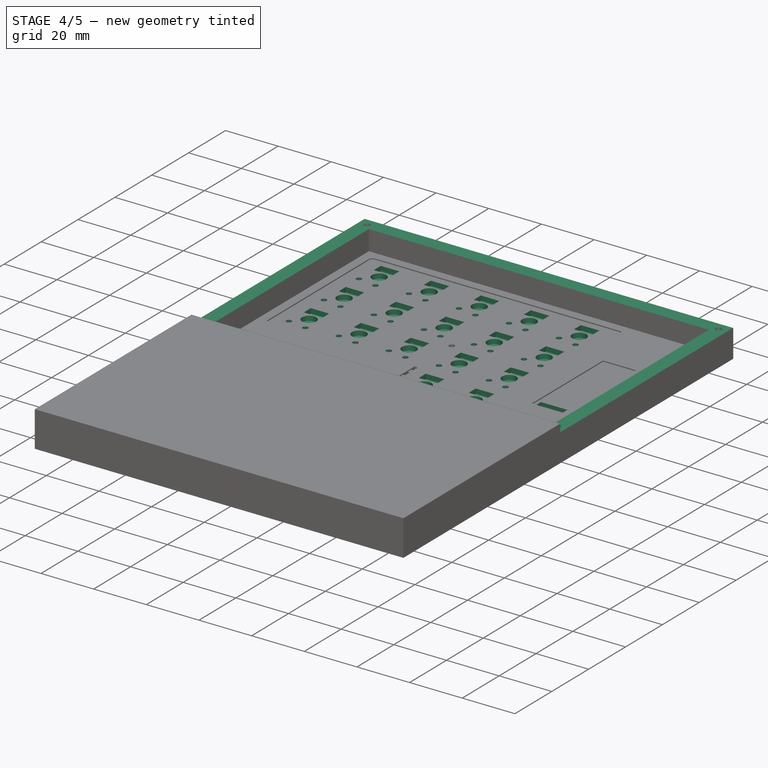
[diagram: stage 4 of 5 — iso view after this stage's code; geometry added in this stage tinted green]
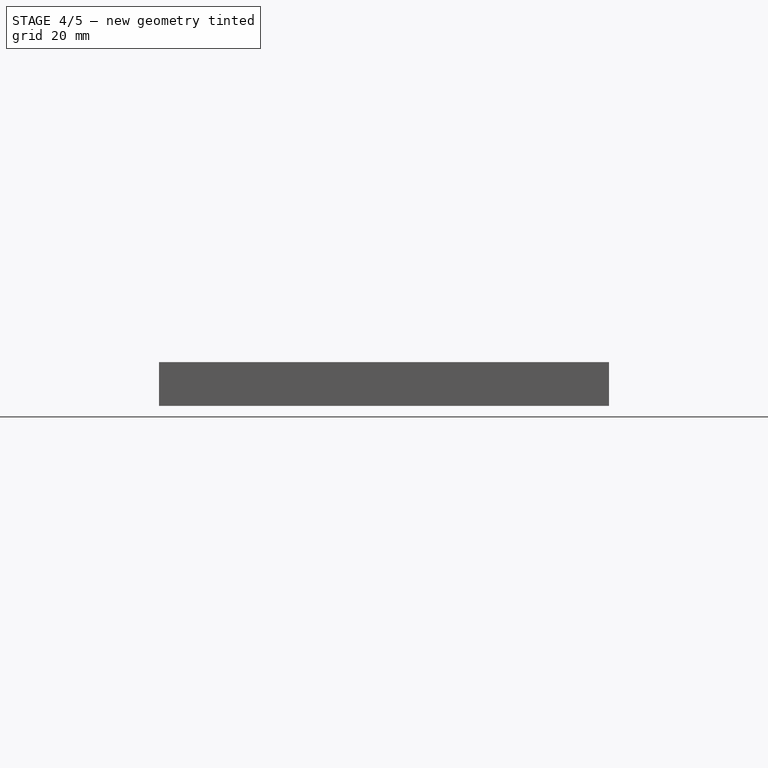
[diagram: stage 4 of 5 — front view after this stage's code; geometry added in this stage tinted green]
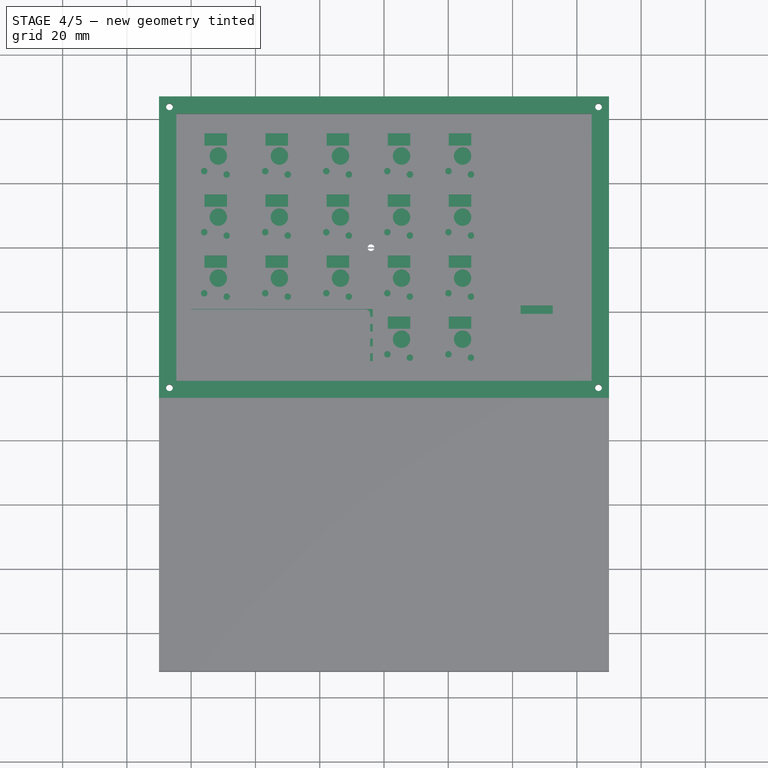
[diagram: stage 4 of 5 — top view after this stage's code; geometry added in this stage tinted green]
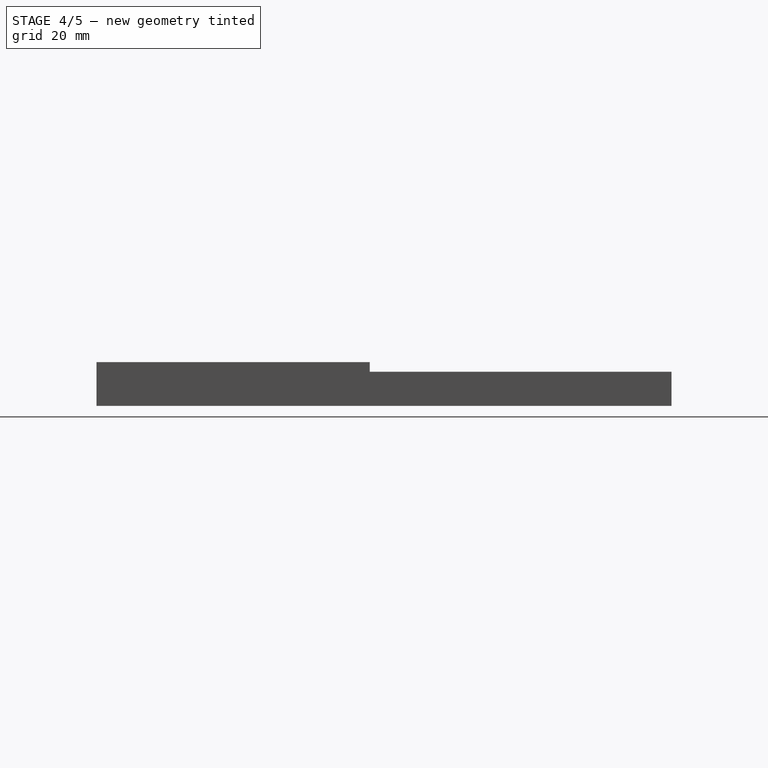
[diagram: stage 4 of 5 — right view after this stage's code; geometry added in this stage tinted green]
FEATURE [Sketcher::SketchObject] Sketch028
  ArcFitTolerance = 1e-06
  AttachmentSupport = -> [Pad002]
  ExternalTypes = [0]
  FullyConstrained = true
  MakeInternals = false
  MapMode = 5
  Placement = pos=(0,0,13.6) rot=(0,0,1;0rad)
  sketch-geometry (5):
    g0: LineSegment StartX=-70 StartY=-46.95 StartZ=0 EndX=70 EndY=-46.95 EndZ=0
    g1: LineSegment StartX=70 StartY=-46.95 StartZ=0 EndX=70 EndY=46.95 EndZ=0
    g2: LineSegment StartX=70 StartY=46.95 StartZ=0 EndX=-70 EndY=46.95 EndZ=0
    g3: LineSegment StartX=-70 StartY=46.95 StartZ=0 EndX=-70 EndY=-46.95 EndZ=0
    g4: GeomPoint [constr] X=0 Y=0 Z=0
  constraints (12):
    c: Coincident(g0,g1)
    c: Coincident(g1,g2)
    c: Coincident(g2,g3)
    c: Coincident(g3,g0)
    c: Horizontal(g0)
    c: Horizontal(g2)
    c: Vertical(g1)
    c: Vertical(g3)
    c: Symmetric(g2,g0,g4)
    c: Distance(g1,g3) = 140
    c: Distance(g0,g2) = 93.9
    c: Coincident(g4,g-1)
FEATURE [PartDesign::Pocket] Pocket019
  BaseFeature = -> Pocket018
  Direction = (0,0,-1)
  Length = 3
  Length2 = 5
  Profile = -> Sketch028
  ReferenceAxis = -> Sketch028 [N_Axis]
  Refine = true
  Suppressed = false
  Type = 0
FEATURE [Sketcher::SketchObject] Sketch030
  ArcFitTolerance = 1e-06
  AttachmentSupport = -> [Pocket019]
  ExternalGeometry = -> [Pocket019]
  ExternalTypes = [0,0]
  FullyConstrained = false
  MakeInternals = false
  MapMode = 5
  Placement = pos=(0,0,0) rot=(1,0,0;3.14159rad)
  sketch-geometry (47):
    g0: LineSegment StartX=64.75 StartY=-43.7 StartZ=0 EndX=65.75 EndY=-45.4321 EndZ=0
    g1: LineSegment StartX=65.75 StartY=-45.4321 StartZ=0 EndX=67.75 EndY=-45.4321 EndZ=0
    g2: LineSegment StartX=67.75 StartY=-45.4321 StartZ=0 EndX=68.75 EndY=-43.7 EndZ=0
    g3: LineSegment StartX=68.75 StartY=-43.7 StartZ=0 EndX=67.75 EndY=-41.9679 EndZ=0
    g4: LineSegment StartX=67.75 StartY=-41.9679 StartZ=0 EndX=65.75 EndY=-41.9679 EndZ=0
    g5: LineSegment StartX=65.75 StartY=-41.9679 StartZ=0 EndX=64.75 EndY=-43.7 EndZ=0
    g6: Circle [constr] CenterX=66.75 CenterY=-43.7 CenterZ=0 NormalX=0 NormalY=0 NormalZ=1 AngleXU=0 Radius=2
    g7: LineSegment [constr] StartX=66.75 StartY=-43.7 StartZ=0 EndX=66.75 EndY=-41.9679 EndZ=0
    g8: LineSegment [constr] StartX=64.75 StartY=-43.7 StartZ=0 EndX=68.75 EndY=-43.7 EndZ=0
    g9: LineSegment StartX=-64.75 StartY=-43.7 StartZ=0 EndX=-65.75 EndY=-45.4321 EndZ=0
    g10: LineSegment StartX=-65.75 StartY=-45.4321 StartZ=0 EndX=-67.75 EndY=-45.4321 EndZ=0
    g11: LineSegment StartX=-67.75 StartY=-45.4321 StartZ=0 EndX=-68.75 EndY=-43.7 EndZ=0
    g12: LineSegment StartX=-68.75 StartY=-43.7 StartZ=0 EndX=-67.75 EndY=-41.9679 EndZ=0
    g13: LineSegment StartX=-67.75 StartY=-41.9679 StartZ=0 EndX=-65.75 EndY=-41.9679 EndZ=0
    g14: LineSegment StartX=-65.75 StartY=-41.9679 StartZ=0 EndX=-64.75 EndY=-43.7 EndZ=0
    g15: Circle [constr] CenterX=-66.75 CenterY=-43.7 CenterZ=0 NormalX=0 NormalY=0 NormalZ=1 AngleXU=0 Radius=2
    g16: LineSegment [constr] StartX=-66.75 StartY=-43.7 StartZ=0 EndX=-66.75 EndY=-41.9679 EndZ=0
    g17: LineSegment [constr] StartX=-64.75 StartY=-43.7 StartZ=0 EndX=-68.75 EndY=-43.7 EndZ=0
    g18: Circle [constr] CenterX=-66.75 CenterY=-43.7 CenterZ=0 NormalX=0 NormalY=0 NormalZ=1 AngleXU=0 Radius=1.05
    g19: LineSegment StartX=64.75 StartY=43.7 StartZ=0 EndX=65.75 EndY=45.4321 EndZ=0
    g20: LineSegment StartX=65.75 StartY=45.4321 StartZ=0 EndX=67.75 EndY=45.4321 EndZ=0
    g21: LineSegment StartX=67.75 StartY=45.4321 StartZ=0 EndX=68.75 EndY=43.7 EndZ=0
    g22: LineSegment StartX=68.75 StartY=43.7 StartZ=0 EndX=67.75 EndY=41.9679 EndZ=0
    g23: LineSegment StartX=67.75 StartY=41.9679 StartZ=0 EndX=65.75 EndY=41.9679 EndZ=0
    g24: LineSegment StartX=65.75 StartY=41.9679 StartZ=0 EndX=64.75 EndY=43.7 EndZ=0
    g25: Circle [constr] CenterX=66.75 CenterY=43.7 CenterZ=0 NormalX=0 NormalY=0 NormalZ=1 AngleXU=0 Radius=2
    g26: LineSegment [constr] StartX=66.75 StartY=43.7 StartZ=0 EndX=66.75 EndY=41.9679 EndZ=0
    g27: LineSegment [constr] StartX=64.75 StartY=43.7 StartZ=0 EndX=68.75 EndY=43.7 EndZ=0
    g28: LineSegment StartX=-64.75 StartY=43.7 StartZ=0 EndX=-65.75 EndY=45.4321 EndZ=0
    g29: LineSegment StartX=-65.75 StartY=45.4321 StartZ=0 EndX=-67.75 EndY=45.4321 EndZ=0
    g30: LineSegment StartX=-67.75 StartY=45.4321 StartZ=0 EndX=-68.75 EndY=43.7 EndZ=0
    g31: LineSegment StartX=-68.75 StartY=43.7 StartZ=0 EndX=-67.75 EndY=41.9679 EndZ=0
    g32: LineSegment StartX=-67.75 StartY=41.9679 StartZ=0 EndX=-65.75 EndY=41.9679 EndZ=0
    g33: LineSegment StartX=-65.75 StartY=41.9679 StartZ=0 EndX=-64.75 EndY=43.7 EndZ=0
    g34: Circle [constr] CenterX=-66.75 CenterY=43.7 CenterZ=0 NormalX=0 NormalY=0 NormalZ=1 AngleXU=0 Radius=2
    g35: LineSegment [constr] StartX=-66.75 StartY=43.7 StartZ=0 EndX=-66.75 EndY=41.9679 EndZ=0
    g36: LineSegment [constr] StartX=-64.75 StartY=43.7 StartZ=0 EndX=-68.75 EndY=43.7 EndZ=0
    g37: Circle [constr] CenterX=-66.75 CenterY=43.7 CenterZ=0 NormalX=0 NormalY=0 NormalZ=1 AngleXU=0 Radius=1.05
    g38: Circle [constr] CenterX=66.75 CenterY=43.7 CenterZ=0 NormalX=0 NormalY=0 NormalZ=1 AngleXU=0 Radius=1.05
    g39: LineSegment StartX=-2.05 StartY=0 StartZ=0 EndX=-3.05 EndY=1.73205 EndZ=0
    g40: LineSegment StartX=-3.05 StartY=1.73205 StartZ=0 EndX=-5.05 EndY=1.73205 EndZ=0
    g41: LineSegment StartX=-5.05 StartY=1.73205 StartZ=0 EndX=-6.05 EndY=0 EndZ=0
    g42: LineSegment StartX=-6.05 StartY=0 StartZ=0 EndX=-5.05 EndY=-1.73205 EndZ=0
    g43: LineSegment StartX=-5.05 StartY=-1.73205 StartZ=0 EndX=-3.05 EndY=-1.73205 EndZ=0
    g44: LineSegment StartX=-3.05 StartY=-1.73205 StartZ=0 EndX=-2.05 EndY=0 EndZ=0
    g45: Circle [constr] CenterX=-4.05 CenterY=0 CenterZ=0 NormalX=0 NormalY=0 NormalZ=1 AngleXU=0 Radius=2
    g46: LineSegment [constr] StartX=-4.05 StartY=0 StartZ=0 EndX=-2.55 EndY=-0.866025 EndZ=0
  constraints (108):
    c: Coincident(g0,g1)
    c: Coincident(g1,g2)
    c: Coincident(g2,g3)
    c: Coincident(g3,g4)
    c: Coincident(g4,g5)
    c: Coincident(g5,g0)
    c: Equal(g0, g1-g5) x5
    c: PointOnObject(g0,g6)
    c: PointOnObject(g1,g6)
    c: PointOnObject(g2,g6)
    c: PointOnObject(g3,g6)
    c: PointOnObject(g4,g6)
    c: PointOnObject(g5,g6)
    c: Coincident(g7,g6)
    c: Symmetric(g4,g4,g7)
    c: Vertical(g7)
    c: PointOnObject(g8,g3)
    c: PointOnObject(g6,g8)
    c: Coincident(g6,g-3)
    c: Distance(g8,g8) = 4
    c: Coincident(g9,g10)
    c: Coincident(g10,g11)
    c: Coincident(g11,g12)
    c: Coincident(g12,g13)
    c: Coincident(g13,g14)
    c: Coincident(g14,g9)
    c: Equal(g9, g10-g14) x5
    c: PointOnObject(g9,g15)
    c: PointOnObject(g10,g15)
    c: PointOnObject(g11,g15)
    c: PointOnObject(g12,g15)
    c: PointOnObject(g13,g15)
    c: PointOnObject(g14,g15)
    c: Coincident(g16,g15)
    c: Symmetric(g13,g13,g16)
    c: Vertical(g16)
    c: PointOnObject(g17,g9)
    c: PointOnObject(g17,g12)
    c: PointOnObject(g15,g17)
    c: Coincident(g15,g18)
    c: Distance(g17,g17) = 4
    c: Symmetric(g6,g15,g-2)
    c: Coincident(g19,g20)
    c: Coincident(g20,g21)
    c: Coincident(g21,g22)
    c: Coincident(g22,g23)
    c: Coincident(g23,g24)
    c: Coincident(g24,g19)
    c: Equal(g19, g20-g24) x5
    c: PointOnObject(g19,g25)
    c: PointOnObject(g20,g25)
    c: PointOnObject(g21,g25)
    c: PointOnObject(g22,g25)
    c: PointOnObject(g23,g25)
    c: PointOnObject(g24,g25)
    c: Coincident(g26,g25)
    c: Symmetric(g23,g23,g26)
    c: Vertical(g26)
    c: PointOnObject(g27,g19)
    c: PointOnObject(g27,g22)
    c: PointOnObject(g25,g27)
    c: Coincident(g25,g38)
    c: Distance(g27,g27) = 4
    c: Coincident(g28,g29)
    c: Coincident(g29,g30)
    c: Coincident(g30,g31)
    c: Coincident(g31,g32)
    c: Coincident(g32,g33)
    c: Coincident(g33,g28)
    c: Equal(g28, g29-g33) x5
    c: PointOnObject(g28,g34)
    c: PointOnObject(g29,g34)
    c: PointOnObject(g30,g34)
    c: PointOnObject(g31,g34)
    c: PointOnObject(g32,g34)
    c: PointOnObject(g33,g34)
    c: Coincident(g35,g34)
    c: Symmetric(g32,g32,g35)
    c: Vertical(g35)
    c: PointOnObject(g36,g28)
    c: PointOnObject(g36,g31)
    c: PointOnObject(g34,g36)
    c: Coincident(g34,g37)
    c: Distance(g36,g36) = 4
    c: Symmetric(g34,g25,g-2)
    c: Symmetric(g25,g6,g-1)
    c: Coincident(g39,g40)
    c: Coincident(g40,g41)
    c: Coincident(g41,g42)
    c: Coincident(g42,g43)
    c: Coincident(g43,g44)
    c: Coincident(g44,g39)
    c: Equal(g39, g40-g44) x5
    c: PointOnObject(g39,g45)
    c: PointOnObject(g40,g45)
    c: PointOnObject(g41,g45)
    c: PointOnObject(g42,g45)
    c: PointOnObject(g43,g45)
    c: PointOnObject(g44,g45)
    c: PointOnObject(g44,g-1)
    c: Equal(g45,g6)
    c: Coincident(g45,g-4)
    c: Coincident(g46,g45)
    c: Symmetric(g44,g44,g46)
    c: Coincident(g8,g0)
    c: Equal(g26,g35)
    c: Equal(g35,g16)
    c: Equal(g16,g7)
FEATURE [PartDesign::Pocket] Pocket021
  BaseFeature = -> Pocket019
  Direction = (0,0,1)
  Length = 1.6
  Length2 = 5
  Profile = -> Sketch030
  ReferenceAxis = -> Sketch030 [N_Axis]
  Refine = true
  Suppressed = false
  Type = 0
FEATURE [Sketcher::SketchObject] Sketch031
  ArcFitTolerance = 1e-06
  AttachmentSupport = -> [Pocket021]
  ExternalGeometry = -> [Pocket021]
  ExternalTypes = [0]
  FullyConstrained = false
  MakeInternals = false
  MapMode = 5
  Placement = pos=(0,0,2.6) rot=(0,0,1;0rad)
  sketch-geometry (455):
    g0: LineSegment [constr] StartX=-4.05 StartY=0 StartZ=0 EndX=0 EndY=0 EndZ=0
    g1: LineSegment [constr] StartX=-4.05 StartY=0 StartZ=0 EndX=-4.05 EndY=2 EndZ=0
    g2: LineSegment [constr] StartX=-6.05 StartY=0 StartZ=0 EndX=-4.05 EndY=0 EndZ=0
    g3: LineSegment [constr] StartX=12.95 StartY=2 StartZ=0 EndX=12.95 EndY=17 EndZ=0
    g4: LineSegment [constr] StartX=12.95 StartY=17 StartZ=0 EndX=-2.05 EndY=17 EndZ=0
    g5: LineSegment [constr] StartX=-2.05 StartY=17 StartZ=0 EndX=-2.05 EndY=2 EndZ=0
    g6: LineSegment [constr] StartX=-2.05 StartY=2 StartZ=0 EndX=12.95 EndY=2 EndZ=0
    g7: LineSegment [constr] StartX=12.95 StartY=2 StartZ=0 EndX=12.95 EndY=3.75 EndZ=0
    g8: LineSegment [constr] StartX=12.95 StartY=3.75 StartZ=0 EndX=8.05 EndY=3.75 EndZ=0
    g9: LineSegment [constr] StartX=8.05 StartY=3.75 StartZ=0 EndX=8.05 EndY=2 EndZ=0
    g10: LineSegment [constr] StartX=8.05 StartY=2 StartZ=0 EndX=12.95 EndY=2 EndZ=0
    g11: Circle CenterX=8.05 CenterY=3.75 CenterZ=0 NormalX=0 NormalY=0 NormalZ=1 AngleXU=0 Radius=1
    g12: LineSegment [constr] StartX=-2.05 StartY=2 StartZ=0 EndX=1.05 EndY=2 EndZ=0
    g13: LineSegment [constr] StartX=1.05 StartY=2 StartZ=0 EndX=1.05 EndY=4.8 EndZ=0
    g14: LineSegment [constr] StartX=1.05 StartY=4.8 StartZ=0 EndX=-2.05 EndY=4.8 EndZ=0
    g15: LineSegment [constr] StartX=-2.05 StartY=4.8 StartZ=0 EndX=-2.05 EndY=2 EndZ=0
    g16: Circle CenterX=1.05 CenterY=4.8 CenterZ=0 NormalX=0 NormalY=0 NormalZ=1 AngleXU=0 Radius=1
    g17: LineSegment [constr] StartX=-2.05 StartY=9.5 StartZ=0 EndX=12.95 EndY=9.5 EndZ=0
    g18: Circle CenterX=5.45 CenterY=9.5 CenterZ=0 NormalX=0 NormalY=0 NormalZ=1 AngleXU=0 Radius=2.7
    g19: LineSegment [constr] StartX=-2.05 StartY=17 StartZ=0 EndX=-2.05 EndY=16.1822 EndZ=0
    g20: LineSegment [constr] StartX=2.8154 StartY=17 StartZ=0 EndX=-2.05 EndY=17 EndZ=0
    g21: LineSegment [constr] StartX=-2.05 StartY=17 StartZ=0 EndX=-2.05 EndY=16.55 EndZ=0
    g22: LineSegment [constr] StartX=-2.05 StartY=16.55 StartZ=0 EndX=1.15 EndY=16.55 EndZ=0
    g23: LineSegment [constr] StartX=1.15 StartY=16.55 StartZ=0 EndX=1.15 EndY=17 EndZ=0
    g24: LineSegment [constr] StartX=1.15 StartY=17 StartZ=0 EndX=-2.05 EndY=17 EndZ=0
    g25: LineSegment StartX=1.15 StartY=16.55 StartZ=0 EndX=1.15 EndY=12.75 EndZ=0
    g26: LineSegment StartX=1.15 StartY=12.75 StartZ=0 EndX=8.15 EndY=12.75 EndZ=0
    g27: LineSegment StartX=8.15 StartY=12.75 StartZ=0 EndX=8.15 EndY=16.55 EndZ=0
    g28: LineSegment StartX=8.15 StartY=16.55 StartZ=0 EndX=1.15 EndY=16.55 EndZ=0
    g29: LineSegment [constr] StartX=12.95 StartY=21 StartZ=0 EndX=12.95 EndY=36 EndZ=0
    g30: LineSegment [constr] StartX=12.95 StartY=36 StartZ=0 EndX=-2.05 EndY=36 EndZ=0
    g31: LineSegment [constr] StartX=-2.05 StartY=36 StartZ=0 EndX=-2.05 EndY=21 EndZ=0
    g32: LineSegment [constr] StartX=-2.05 StartY=21 StartZ=0 EndX=12.95 EndY=21 EndZ=0
    g33: LineSegment [constr] StartX=12.95 StartY=21 StartZ=0 EndX=12.95 EndY=22.75 EndZ=0
    g34: LineSegment [constr] StartX=12.95 StartY=22.75 StartZ=0 EndX=8.05 EndY=22.75 EndZ=0
    g35: LineSegment [constr] StartX=8.05 StartY=22.75 StartZ=0 EndX=8.05 EndY=21 EndZ=0
    g36: LineSegment [constr] StartX=8.05 StartY=21 StartZ=0 EndX=12.95 EndY=21 EndZ=0
    g37: Circle CenterX=8.05 CenterY=22.75 CenterZ=0 NormalX=0 NormalY=0 NormalZ=1 AngleXU=0 Radius=1
    g38: LineSegment [constr] StartX=-2.05 StartY=21 StartZ=0 EndX=1.05 EndY=21 EndZ=0
    g39: LineSegment [constr] StartX=1.05 StartY=21 StartZ=0 EndX=1.05 EndY=23.8 EndZ=0
    g40: LineSegment [constr] StartX=1.05 StartY=23.8 StartZ=0 EndX=-2.05 EndY=23.8 EndZ=0
    g41: LineSegment [constr] StartX=-2.05 StartY=23.8 StartZ=0 EndX=-2.05 EndY=21 EndZ=0
    g42: Circle CenterX=1.05 CenterY=23.8 CenterZ=0 NormalX=0 NormalY=0 NormalZ=1 AngleXU=0 Radius=1
    g43: LineSegment [constr] StartX=-2.05 StartY=28.5 StartZ=0 EndX=12.95 EndY=28.5 EndZ=0
    g44: Circle CenterX=5.45 CenterY=28.5 CenterZ=0 NormalX=0 NormalY=0 NormalZ=1 AngleXU=0 Radius=2.7
    g45: LineSegment [constr] StartX=-2.05 StartY=36 StartZ=0 EndX=-2.05 EndY=35.2299 EndZ=0
    g46: LineSegment [constr] StartX=3.0124 StartY=36 StartZ=0 EndX=-2.05 EndY=36 EndZ=0
    g47: LineSegment [constr] StartX=-2.05 StartY=36 StartZ=0 EndX=-2.05 EndY=35.55 EndZ=0
    g48: LineSegment [constr] StartX=-2.05 StartY=35.55 StartZ=0 EndX=1.15 EndY=35.55 EndZ=0
    g49: LineSegment [constr] StartX=1.15 StartY=35.55 StartZ=0 EndX=1.15 EndY=36 EndZ=0
    g50: LineSegment [constr] StartX=1.15 StartY=36 StartZ=0 EndX=-2.05 EndY=36 EndZ=0
    g51: LineSegment StartX=1.15 StartY=35.55 StartZ=0 EndX=1.15 EndY=31.75 EndZ=0
    g52: LineSegment StartX=1.15 StartY=31.75 StartZ=0 EndX=8.15 EndY=31.75 EndZ=0
    g53: LineSegment StartX=8.15 StartY=31.75 StartZ=0 EndX=8.15 EndY=35.55 EndZ=0
    g54: LineSegment StartX=8.15 StartY=35.55 StartZ=0 EndX=1.15 EndY=35.55 EndZ=0
    g55: LineSegment [constr] StartX=-4.05 StartY=2 StartZ=0 EndX=-2.05 EndY=2 EndZ=0
    g56: LineSegment [constr] StartX=-25.05 StartY=2 StartZ=0 EndX=-25.05 EndY=17 EndZ=0
    g57: LineSegment [constr] StartX=-25.05 StartY=17 StartZ=0 EndX=-40.05 EndY=17 EndZ=0
    g58: LineSegment [constr] StartX=-40.05 StartY=17 StartZ=0 EndX=-40.05 EndY=2 EndZ=0
    g59: LineSegment [constr] StartX=-40.05 StartY=2 StartZ=0 EndX=-25.05 EndY=2 EndZ=0
    g60: LineSegment [constr] StartX=-25.05 StartY=2 StartZ=0 EndX=-25.05 EndY=3.75 EndZ=0
    g61: LineSegment [constr] StartX=-25.05 StartY=3.75 StartZ=0 EndX=-29.95 EndY=3.75 EndZ=0
    g62: LineSegment [constr] StartX=-29.95 StartY=3.75 StartZ=0 EndX=-29.95 EndY=2 EndZ=0
    g63: LineSegment [constr] StartX=-29.95 StartY=2 StartZ=0 EndX=-25.05 EndY=2 EndZ=0
    g64: Circle CenterX=-29.95 CenterY=3.75 CenterZ=0 NormalX=0 NormalY=0 NormalZ=1 AngleXU=0 Radius=1
    g65: LineSegment [constr] StartX=-40.05 StartY=2 StartZ=0 EndX=-36.95 EndY=2 EndZ=0
    g66: LineSegment [constr] StartX=-36.95 StartY=2 StartZ=0 EndX=-36.95 EndY=4.8 EndZ=0
    g67: LineSegment [constr] StartX=-36.95 StartY=4.8 StartZ=0 EndX=-40.05 EndY=4.8 EndZ=0
    g68: LineSegment [constr] StartX=-40.05 StartY=4.8 StartZ=0 EndX=-40.05 EndY=2 EndZ=0
    g69: Circle CenterX=-36.95 CenterY=4.8 CenterZ=0 NormalX=0 NormalY=0 NormalZ=1 AngleXU=0 Radius=1
    g70: LineSegment [constr] StartX=-40.05 StartY=9.5 StartZ=0 EndX=-25.05 EndY=9.5 EndZ=0
    g71: Circle CenterX=-32.55 CenterY=9.5 CenterZ=0 NormalX=0 NormalY=0 NormalZ=1 AngleXU=0 Radius=2.7
    g72: LineSegment [constr] StartX=-40.05 StartY=17 StartZ=0 EndX=-40.05 EndY=16.2754 EndZ=0
    g73: LineSegment [constr] StartX=-35.0849 StartY=17 StartZ=0 EndX=-40.05 EndY=17 EndZ=0
    g74: LineSegment [constr] StartX=-40.05 StartY=17 StartZ=0 EndX=-40.05 EndY=16.55 EndZ=0
    g75: LineSegment [constr] StartX=-40.05 StartY=16.55 StartZ=0 EndX=-36.85 EndY=16.55 EndZ=0
    g76: LineSegment [constr] StartX=-36.85 StartY=16.55 StartZ=0 EndX=-36.85 EndY=17 EndZ=0
    g77: LineSegment [constr] StartX=-36.85 StartY=17 StartZ=0 EndX=-40.05 EndY=17 EndZ=0
    g78: LineSegment StartX=-36.85 StartY=16.55 StartZ=0 EndX=-36.85 EndY=12.75 EndZ=0
    g79: LineSegment StartX=-36.85 StartY=12.75 StartZ=0 EndX=-29.85 EndY=12.75 EndZ=0
    g80: LineSegment StartX=-29.85 StartY=12.75 StartZ=0 EndX=-29.85 EndY=16.55 EndZ=0
    g81: LineSegment StartX=-29.85 StartY=16.55 StartZ=0 EndX=-36.85 EndY=16.55 EndZ=0
    g82: LineSegment [constr] StartX=-25.05 StartY=21 StartZ=0 EndX=-25.05 EndY=36 EndZ=0
    g83: LineSegment [constr] StartX=-25.05 StartY=36 StartZ=0 EndX=-40.05 EndY=36 EndZ=0
    g84: LineSegment [constr] StartX=-40.05 StartY=36 StartZ=0 EndX=-40.05 EndY=21 EndZ=0
    g85: LineSegment [constr] StartX=-40.05 StartY=21 StartZ=0 EndX=-25.05 EndY=21 EndZ=0
    g86: LineSegment [constr] StartX=-25.05 StartY=21 StartZ=0 EndX=-25.05 EndY=22.75 EndZ=0
    g87: LineSegment [constr] StartX=-25.05 StartY=22.75 StartZ=0 EndX=-29.95 EndY=22.75 EndZ=0
    g88: LineSegment [constr] StartX=-29.95 StartY=22.75 StartZ=0 EndX=-29.95 EndY=21 EndZ=0
    g89: LineSegment [constr] StartX=-29.95 StartY=21 StartZ=0 EndX=-25.05 EndY=21 EndZ=0
    g90: Circle CenterX=-29.95 CenterY=22.75 CenterZ=0 NormalX=0 NormalY=0 NormalZ=1 AngleXU=0 Radius=1
    g91: LineSegment [constr] StartX=-40.05 StartY=21 StartZ=0 EndX=-36.95 EndY=21 EndZ=0
    g92: LineSegment [constr] StartX=-36.95 StartY=21 StartZ=0 EndX=-36.95 EndY=23.8 EndZ=0
    g93: LineSegment [constr] StartX=-36.95 StartY=23.8 StartZ=0 EndX=-40.05 EndY=23.8 EndZ=0
    g94: LineSegment [constr] StartX=-40.05 StartY=23.8 StartZ=0 EndX=-40.05 EndY=21 EndZ=0
    g95: Circle CenterX=-36.95 CenterY=23.8 CenterZ=0 NormalX=0 NormalY=0 NormalZ=1 AngleXU=0 Radius=1
    g96: LineSegment [constr] StartX=-40.05 StartY=28.5 StartZ=0 EndX=-25.05 EndY=28.5 EndZ=0
    g97: Circle CenterX=-32.55 CenterY=28.5 CenterZ=0 NormalX=0 NormalY=0 NormalZ=1 AngleXU=0 Radius=2.7
    g98: LineSegment [constr] StartX=-40.05 StartY=36 StartZ=0 EndX=-40.05 EndY=16.2 EndZ=0
    g99: LineSegment [constr] StartX=-16.05 StartY=36 StartZ=0 EndX=-40.05 EndY=36 EndZ=0
    g100: LineSegment [constr] StartX=-40.05 StartY=36 StartZ=0 EndX=-40.05 EndY=35.55 EndZ=0
    g101: LineSegment [constr] StartX=-40.05 StartY=35.55 StartZ=0 EndX=-36.85 EndY=35.55 EndZ=0
    g102: LineSegment [constr] StartX=-36.85 StartY=35.55 StartZ=0 EndX=-36.85 EndY=36 EndZ=0
    g103: LineSegment [constr] StartX=-36.85 StartY=36 StartZ=0 EndX=-40.05 EndY=36 EndZ=0
    g104: LineSegment StartX=-36.85 StartY=35.55 StartZ=0 EndX=-36.85 EndY=31.75 EndZ=0
    g105: LineSegment StartX=-36.85 StartY=31.75 StartZ=0 EndX=-29.85 EndY=31.75 EndZ=0
    g106: LineSegment StartX=-29.85 StartY=31.75 StartZ=0 EndX=-29.85 EndY=35.55 EndZ=0
    g107: LineSegment StartX=-29.85 StartY=35.55 StartZ=0 EndX=-36.85 EndY=35.55 EndZ=0
    g108: LineSegment [constr] StartX=-44.05 StartY=21 StartZ=0 EndX=-44.05 EndY=36 EndZ=0
    g109: LineSegment [constr] StartX=-44.05 StartY=36 StartZ=0 EndX=-59.05 EndY=36 EndZ=0
    g110: LineSegment [constr] StartX=-59.05 StartY=36 StartZ=0 EndX=-59.05 EndY=21 EndZ=0
    g111: LineSegment [constr] StartX=-59.05 StartY=21 StartZ=0 EndX=-44.05 EndY=21 EndZ=0
    g112: LineSegment [constr] StartX=-44.05 StartY=21 StartZ=0 EndX=-44.05 EndY=22.75 EndZ=0
    g113: LineSegment [constr] StartX=-44.05 StartY=22.75 StartZ=0 EndX=-48.95 EndY=22.75 EndZ=0
    g114: LineSegment [constr] StartX=-48.95 StartY=22.75 StartZ=0 EndX=-48.95 EndY=21 EndZ=0
    g115: LineSegment [constr] StartX=-48.95 StartY=21 StartZ=0 EndX=-44.05 EndY=21 EndZ=0
    g116: Circle CenterX=-48.95 CenterY=22.75 CenterZ=0 NormalX=0 NormalY=0 NormalZ=1 AngleXU=0 Radius=1
    g117: LineSegment [constr] StartX=-59.05 StartY=21 StartZ=0 EndX=-55.95 EndY=21 EndZ=0
    g118: LineSegment [constr] StartX=-55.95 StartY=21 StartZ=0 EndX=-55.95 EndY=23.8 EndZ=0
    g119: LineSegment [constr] StartX=-55.95 StartY=23.8 StartZ=0 EndX=-59.05 EndY=23.8 EndZ=0
    g120: LineSegment [constr] StartX=-59.05 StartY=23.8 StartZ=0 EndX=-59.05 EndY=21 EndZ=0
    g121: Circle CenterX=-55.95 CenterY=23.8 CenterZ=0 NormalX=0 NormalY=0 NormalZ=1 AngleXU=0 Radius=1
    g122: LineSegment [constr] StartX=-59.05 StartY=28.5 StartZ=0 EndX=-44.05 EndY=28.5 EndZ=0
    g123: Circle CenterX=-51.55 CenterY=28.5 CenterZ=0 NormalX=0 NormalY=0 NormalZ=1 AngleXU=0 Radius=2.7
    g124: LineSegment [constr] StartX=-59.05 StartY=36 StartZ=0 EndX=-59.05 EndY=16.2 EndZ=0
    g125: LineSegment [constr] StartX=-16.05 StartY=36 StartZ=0 EndX=-59.05 EndY=36 EndZ=0
    g126: LineSegment [constr] StartX=-59.05 StartY=36 StartZ=0 EndX=-59.05 EndY=35.55 EndZ=0
    g127: LineSegment [constr] StartX=-59.05 StartY=35.55 StartZ=0 EndX=-55.85 EndY=35.55 EndZ=0
    g128: LineSegment [constr] StartX=-55.85 StartY=35.55 StartZ=0 EndX=-55.85 EndY=36 EndZ=0
    g129: LineSegment [constr] StartX=-55.85 StartY=36 StartZ=0 EndX=-59.05 EndY=36 EndZ=0
    g130: LineSegment StartX=-55.85 StartY=35.55 StartZ=0 EndX=-55.85 EndY=31.75 EndZ=0
    g131: LineSegment StartX=-55.85 StartY=31.75 StartZ=0 EndX=-48.85 EndY=31.75 EndZ=0
    g132: LineSegment StartX=-48.85 StartY=31.75 StartZ=0 EndX=-48.85 EndY=35.55 EndZ=0
    g133: LineSegment StartX=-48.85 StartY=35.55 StartZ=0 EndX=-55.85 EndY=35.55 EndZ=0
    g134: LineSegment [constr] StartX=-44.05 StartY=2 StartZ=0 EndX=-44.05 EndY=17 EndZ=0
    g135: LineSegment [constr] StartX=-44.05 StartY=17 StartZ=0 EndX=-59.05 EndY=17 EndZ=0
    g136: LineSegment [constr] StartX=-59.05 StartY=17 StartZ=0 EndX=-59.05 EndY=2 EndZ=0
    g137: LineSegment [constr] StartX=-59.05 StartY=2 StartZ=0 EndX=-44.05 EndY=2 EndZ=0
    g138: LineSegment [constr] StartX=-44.05 StartY=2 StartZ=0 EndX=-44.05 EndY=3.75 EndZ=0
    g139: LineSegment [constr] StartX=-44.05 StartY=3.75 StartZ=0 EndX=-48.95 EndY=3.75 EndZ=0
    g140: LineSegment [constr] StartX=-48.95 StartY=3.75 StartZ=0 EndX=-48.95 EndY=2 EndZ=0
    g141: LineSegment [constr] StartX=-48.95 StartY=2 StartZ=0 EndX=-44.05 EndY=2 EndZ=0
    g142: Circle CenterX=-48.95 CenterY=3.75 CenterZ=0 NormalX=0 NormalY=0 NormalZ=1 AngleXU=0 Radius=1
    g143: LineSegment [constr] StartX=-59.05 StartY=2 StartZ=0 EndX=-55.95 EndY=2 EndZ=0
    g144: LineSegment [constr] StartX=-55.95 StartY=2 StartZ=0 EndX=-55.95 EndY=4.8 EndZ=0
    g145: LineSegment [constr] StartX=-55.95 StartY=4.8 StartZ=0 EndX=-59.05 EndY=4.8 EndZ=0
    g146: LineSegment [constr] StartX=-59.05 StartY=4.8 StartZ=0 EndX=-59.05 EndY=2 EndZ=0
    g147: Circle CenterX=-55.95 CenterY=4.8 CenterZ=0 NormalX=0 NormalY=0 NormalZ=1 AngleXU=0 Radius=1
    g148: LineSegment [constr] StartX=-59.05 StartY=9.5 StartZ=0 EndX=-44.05 EndY=9.5 EndZ=0
    g149: Circle CenterX=-51.55 CenterY=9.5 CenterZ=0 NormalX=0 NormalY=0 NormalZ=1 AngleXU=0 Radius=2.7
    g150: LineSegment [constr] StartX=-59.05 StartY=17 StartZ=0 EndX=-59.05 EndY=16.2 EndZ=0
    g151: LineSegment [constr] StartX=-59.05 StartY=17 StartZ=0 EndX=-59.05 EndY=16.55 EndZ=0
    g152: LineSegment [constr] StartX=-59.05 StartY=16.55 StartZ=0 EndX=-55.85 EndY=16.55 EndZ=0
    g153: LineSegment [constr] StartX=-55.85 StartY=16.55 StartZ=0 EndX=-55.85 EndY=17 EndZ=0
    g154: LineSegment [constr] StartX=-55.85 StartY=17 StartZ=0 EndX=-59.05 EndY=17 EndZ=0
    g155: LineSegment StartX=-55.85 StartY=16.55 StartZ=0 EndX=-55.85 EndY=12.75 EndZ=0
    g156: LineSegment StartX=-55.85 StartY=12.75 StartZ=0 EndX=-48.85 EndY=12.75 EndZ=0
    g157: LineSegment StartX=-48.85 StartY=12.75 StartZ=0 EndX=-48.85 EndY=16.55 EndZ=0
    g158: LineSegment StartX=-48.85 StartY=16.55 StartZ=0 EndX=-55.85 EndY=16.55 EndZ=0
    g159: LineSegment [constr] StartX=-6.05 StartY=21 StartZ=0 EndX=-6.05 EndY=36 EndZ=0
    g160: LineSegment [constr] StartX=-6.05 StartY=36 StartZ=0 EndX=-21.05 EndY=36 EndZ=0
    g161: LineSegment [constr] StartX=-21.05 StartY=36 StartZ=0 EndX=-21.05 EndY=21 EndZ=0
    g162: LineSegment [constr] StartX=-21.05 StartY=21 StartZ=0 EndX=-6.05 EndY=21 EndZ=0
    g163: LineSegment [constr] StartX=-6.05 StartY=21 StartZ=0 EndX=-6.05 EndY=22.75 EndZ=0
    g164: LineSegment [constr] StartX=-6.05 StartY=22.75 StartZ=0 EndX=-10.95 EndY=22.75 EndZ=0
    g165: LineSegment [constr] StartX=-10.95 StartY=22.75 StartZ=0 EndX=-10.95 EndY=21 EndZ=0
    g166: LineSegment [constr] StartX=-10.95 StartY=21 StartZ=0 EndX=-6.05 EndY=21 EndZ=0
    g167: Circle CenterX=-10.95 CenterY=22.75 CenterZ=0 NormalX=0 NormalY=0 NormalZ=1 AngleXU=0 Radius=1
    g168: LineSegment [constr] StartX=-21.05 StartY=21 StartZ=0 EndX=-17.95 EndY=21 EndZ=0
    g169: LineSegment [constr] StartX=-17.95 StartY=21 StartZ=0 EndX=-17.95 EndY=23.8 EndZ=0
    g170: LineSegment [constr] StartX=-17.95 StartY=23.8 StartZ=0 EndX=-21.05 EndY=23.8 EndZ=0
    g171: LineSegment [constr] StartX=-21.05 StartY=23.8 StartZ=0 EndX=-21.05 EndY=21 EndZ=0
    g172: Circle CenterX=-17.95 CenterY=23.8 CenterZ=0 NormalX=0 NormalY=0 NormalZ=1 AngleXU=0 Radius=1
    g173: LineSegment [constr] StartX=-21.05 StartY=28.5 StartZ=0 EndX=-6.05 EndY=28.5 EndZ=0
    g174: Circle CenterX=-13.55 CenterY=28.5 CenterZ=0 NormalX=0 NormalY=0 NormalZ=1 AngleXU=0 Radius=2.7
    g175: LineSegment [constr] StartX=-21.05 StartY=36 StartZ=0 EndX=-21.05 EndY=16.2 EndZ=0
    g176: LineSegment [constr] StartX=-16.05 StartY=36 StartZ=0 EndX=-21.05 EndY=36 EndZ=0
    g177: LineSegment [constr] StartX=-21.05 StartY=36 StartZ=0 EndX=-21.05 EndY=35.55 EndZ=0
    g178: LineSegment [constr] StartX=-21.05 StartY=35.55 StartZ=0 EndX=-17.85 EndY=35.55 EndZ=0
    g179: LineSegment [constr] StartX=-17.85 StartY=35.55 StartZ=0 EndX=-17.85 EndY=36 EndZ=0
    g180: LineSegment [constr] StartX=-17.85 StartY=36 StartZ=0 EndX=-21.05 EndY=36 EndZ=0
    g181: LineSegment StartX=-17.85 StartY=35.55 StartZ=0 EndX=-17.85 EndY=31.75 EndZ=0
    g182: LineSegment StartX=-17.85 StartY=31.75 StartZ=0 EndX=-10.85 EndY=31.75 EndZ=0
    g183: LineSegment StartX=-10.85 StartY=31.75 StartZ=0 EndX=-10.85 EndY=35.55 EndZ=0
    g184: LineSegment StartX=-10.85 StartY=35.55 StartZ=0 EndX=-17.85 EndY=35.55 EndZ=0
    g185: LineSegment [constr] StartX=31.95 StartY=2 StartZ=0 EndX=31.95 EndY=17 EndZ=0
    g186: LineSegment [constr] StartX=31.95 StartY=17 StartZ=0 EndX=16.95 EndY=17 EndZ=0
    g187: LineSegment [constr] StartX=16.95 StartY=17 StartZ=0 EndX=16.95 EndY=2 EndZ=0
    g188: LineSegment [constr] StartX=16.95 StartY=2 StartZ=0 EndX=31.95 EndY=2 EndZ=0
    g189: LineSegment [constr] StartX=31.95 StartY=2 StartZ=0 EndX=31.95 EndY=3.75 EndZ=0
    g190: LineSegment [constr] StartX=31.95 StartY=3.75 StartZ=0 EndX=27.05 EndY=3.75 EndZ=0
    g191: LineSegment [constr] StartX=27.05 StartY=3.75 StartZ=0 EndX=27.05 EndY=2 EndZ=0
    g192: LineSegment [constr] StartX=27.05 StartY=2 StartZ=0 EndX=31.95 EndY=2 EndZ=0
    g193: Circle CenterX=27.05 CenterY=3.75 CenterZ=0 NormalX=0 NormalY=0 NormalZ=1 AngleXU=0 Radius=1
    g194: LineSegment [constr] StartX=16.95 StartY=2 StartZ=0 EndX=20.05 EndY=2 EndZ=0
    g195: LineSegment [constr] StartX=20.05 StartY=2 StartZ=0 EndX=20.05 EndY=4.8 EndZ=0
    g196: LineSegment [constr] StartX=20.05 StartY=4.8 StartZ=0 EndX=16.95 EndY=4.8 EndZ=0
    g197: LineSegment [constr] StartX=16.95 StartY=4.8 StartZ=0 EndX=16.95 EndY=2 EndZ=0
    g198: Circle CenterX=20.05 CenterY=4.8 CenterZ=0 NormalX=0 NormalY=0 NormalZ=1 AngleXU=0 Radius=1
    g199: LineSegment [constr] StartX=16.95 StartY=9.5 StartZ=0 EndX=31.95 EndY=9.5 EndZ=0
    g200: Circle CenterX=24.45 CenterY=9.5 CenterZ=0 NormalX=0 NormalY=0 NormalZ=1 AngleXU=0 Radius=2.7
    g201: LineSegment [constr] StartX=16.95 StartY=17 StartZ=0 EndX=16.95 EndY=16.2 EndZ=0
    g202: LineSegment [constr] StartX=16.95 StartY=17 StartZ=0 EndX=16.95 EndY=16.55 EndZ=0
    g203: LineSegment [constr] StartX=16.95 StartY=16.55 StartZ=0 EndX=20.15 EndY=16.55 EndZ=0
    g204: LineSegment [constr] StartX=20.15 StartY=16.55 StartZ=0 EndX=20.15 EndY=17 EndZ=0
    g205: LineSegment [constr] StartX=20.15 StartY=17 StartZ=0 EndX=16.95 EndY=17 EndZ=0
    g206: LineSegment StartX=20.15 StartY=16.55 StartZ=0 EndX=20.15 EndY=12.75 EndZ=0
    g207: LineSegment StartX=20.15 StartY=12.75 StartZ=0 EndX=27.15 EndY=12.75 EndZ=0
    g208: LineSegment StartX=27.15 StartY=12.75 StartZ=0 EndX=27.15 EndY=16.55 EndZ=0
    g209: LineSegment StartX=27.15 StartY=16.55 StartZ=0 EndX=20.15 EndY=16.55 EndZ=0
    g210: LineSegment [constr] StartX=31.95 StartY=21 StartZ=0 EndX=31.95 EndY=36 EndZ=0
    g211: LineSegment [constr] StartX=31.95 StartY=36 StartZ=0 EndX=16.95 EndY=36 EndZ=0
    g212: LineSegment [constr] StartX=16.95 StartY=36 StartZ=0 EndX=16.95 EndY=21 EndZ=0
    g213: LineSegment [constr] StartX=16.95 StartY=21 StartZ=0 EndX=31.95 EndY=21 EndZ=0
    g214: LineSegment [constr] StartX=31.95 StartY=21 StartZ=0 EndX=31.95 EndY=22.75 EndZ=0
    g215: LineSegment [constr] StartX=31.95 StartY=22.75 StartZ=0 EndX=27.05 EndY=22.75 EndZ=0
    g216: LineSegment [constr] StartX=27.05 StartY=22.75 StartZ=0 EndX=27.05 EndY=21 EndZ=0
    g217: LineSegment [constr] StartX=27.05 StartY=21 StartZ=0 EndX=31.95 EndY=21 EndZ=0
    g218: Circle CenterX=27.05 CenterY=22.75 CenterZ=0 NormalX=0 NormalY=0 NormalZ=1 AngleXU=0 Radius=1
    g219: LineSegment [constr] StartX=16.95 StartY=21 StartZ=0 EndX=20.05 EndY=21 EndZ=0
    g220: LineSegment [constr] StartX=20.05 StartY=21 StartZ=0 EndX=20.05 EndY=23.8 EndZ=0
    g221: LineSegment [constr] StartX=20.05 StartY=23.8 StartZ=0 EndX=16.95 EndY=23.8 EndZ=0
    g222: LineSegment [constr] StartX=16.95 StartY=23.8 StartZ=0 EndX=16.95 EndY=21 EndZ=0
    g223: Circle CenterX=20.05 CenterY=23.8 CenterZ=0 NormalX=0 NormalY=0 NormalZ=1 AngleXU=0 Radius=1
    g224: LineSegment [constr] StartX=16.95 StartY=28.5 StartZ=0 EndX=31.95 EndY=28.5 EndZ=0
    g225: Circle CenterX=24.45 CenterY=28.5 CenterZ=0 NormalX=0 NormalY=0 NormalZ=1 AngleXU=0 Radius=2.7
    g226: LineSegment [constr] StartX=16.95 StartY=36 StartZ=0 EndX=16.95 EndY=16.2 EndZ=0
    g227: LineSegment [constr] StartX=16.95 StartY=36 StartZ=0 EndX=16.95 EndY=35.55 EndZ=0
    g228: LineSegment [constr] StartX=16.95 StartY=35.55 StartZ=0 EndX=20.15 EndY=35.55 EndZ=0
    g229: LineSegment [constr] StartX=20.15 StartY=35.55 StartZ=0 EndX=20.15 EndY=36 EndZ=0
    g230: LineSegment [constr] StartX=20.15 StartY=36 StartZ=0 EndX=16.95 EndY=36 EndZ=0
    g231: LineSegment StartX=20.15 StartY=35.55 StartZ=0 EndX=20.15 EndY=31.75 EndZ=0
    g232: LineSegment StartX=20.15 StartY=31.75 StartZ=0 EndX=27.15 EndY=31.75 EndZ=0
    g233: LineSegment StartX=27.15 StartY=31.75 StartZ=0 EndX=27.15 EndY=35.55 EndZ=0
    g234: LineSegment StartX=27.15 StartY=35.55 StartZ=0 EndX=20.15 EndY=35.55 EndZ=0
    g235: LineSegment [constr] StartX=-44.05 StartY=-17 StartZ=0 EndX=-44.05 EndY=-2 EndZ=0
    g236: LineSegment [constr] StartX=-44.05 StartY=-2 StartZ=0 EndX=-59.05 EndY=-2 EndZ=0
    g237: LineSegment [constr] StartX=-59.05 StartY=-2 StartZ=0 EndX=-59.05 EndY=-17 EndZ=0
    g238: LineSegment [constr] StartX=-59.05 StartY=-17 StartZ=0 EndX=-44.05 EndY=-17 EndZ=0
    g239: LineSegment [constr] StartX=-44.05 StartY=-17 StartZ=0 EndX=-44.05 EndY=-15.25 EndZ=0
    g240: LineSegment [constr] StartX=-44.05 StartY=-15.25 StartZ=0 EndX=-48.95 EndY=-15.25 EndZ=0
    g241: LineSegment [constr] StartX=-48.95 StartY=-15.25 StartZ=0 EndX=-48.95 EndY=-17 EndZ=0
    g242: LineSegment [constr] StartX=-48.95 StartY=-17 StartZ=0 EndX=-44.05 EndY=-17 EndZ=0
    g243: Circle CenterX=-48.95 CenterY=-15.25 CenterZ=0 NormalX=0 NormalY=0 NormalZ=1 AngleXU=0 Radius=1
    g244: LineSegment [constr] StartX=-59.05 StartY=-17 StartZ=0 EndX=-55.95 EndY=-17 EndZ=0
    g245: LineSegment [constr] StartX=-55.95 StartY=-17 StartZ=0 EndX=-55.95 EndY=-14.2 EndZ=0
    g246: LineSegment [constr] StartX=-55.95 StartY=-14.2 StartZ=0 EndX=-59.05 EndY=-14.2 EndZ=0
    g247: LineSegment [constr] StartX=-59.05 StartY=-14.2 StartZ=0 EndX=-59.05 EndY=-17 EndZ=0
    g248: Circle CenterX=-55.95 CenterY=-14.2 CenterZ=0 NormalX=0 NormalY=0 NormalZ=1 AngleXU=0 Radius=1
    g249: LineSegment [constr] StartX=-59.05 StartY=-9.5 StartZ=0 EndX=-44.05 EndY=-9.5 EndZ=0
    g250: Circle CenterX=-51.55 CenterY=-9.5 CenterZ=0 NormalX=0 NormalY=0 NormalZ=1 AngleXU=0 Radius=2.7
    g251: LineSegment [constr] StartX=-59.05 StartY=-2 StartZ=0 EndX=-59.05 EndY=16.2 EndZ=0
    g252: LineSegment [constr] StartX=-59.05 StartY=-2 StartZ=0 EndX=-59.05 EndY=-2.45 EndZ=0
    g253: LineSegment [constr] StartX=-59.05 StartY=-2.45 StartZ=0 EndX=-55.85 EndY=-2.45 EndZ=0
    g254: LineSegment [constr] StartX=-55.85 StartY=-2.45 StartZ=0 EndX=-55.85 EndY=-2 EndZ=0
    g255: LineSegment [constr] StartX=-55.85 StartY=-2 StartZ=0 EndX=-59.05 EndY=-2 EndZ=0
    g256: LineSegment StartX=-55.85 StartY=-2.45 StartZ=0 EndX=-55.85 EndY=-6.25 EndZ=0
    g257: LineSegment StartX=-55.85 StartY=-6.25 StartZ=0 EndX=-48.85 EndY=-6.25 EndZ=0
    g258: LineSegment StartX=-48.85 StartY=-6.25 StartZ=0 EndX=-48.85 EndY=-2.45 EndZ=0
    g259: LineSegment StartX=-48.85 StartY=-2.45 StartZ=0 EndX=-55.85 EndY=-2.45 EndZ=0
    g260: LineSegment [constr] StartX=-25.05 StartY=-17 StartZ=0 EndX=-25.05 EndY=-2 EndZ=0
    g261: LineSegment [constr] StartX=-25.05 StartY=-2 StartZ=0 EndX=-40.05 EndY=-2 EndZ=0
    g262: LineSegment [constr] StartX=-40.05 StartY=-2 StartZ=0 EndX=-40.05 EndY=-17 EndZ=0
    g263: LineSegment [constr] StartX=-40.05 StartY=-17 StartZ=0 EndX=-25.05 EndY=-17 EndZ=0
    g264: LineSegment [constr] StartX=-25.05 StartY=-17 StartZ=0 EndX=-25.05 EndY=-15.25 EndZ=0
    g265: LineSegment [constr] StartX=-25.05 StartY=-15.25 StartZ=0 EndX=-29.95 EndY=-15.25 EndZ=0
    g266: LineSegment [constr] StartX=-29.95 StartY=-15.25 StartZ=0 EndX=-29.95 EndY=-17 EndZ=0
    g267: LineSegment [constr] StartX=-29.95 StartY=-17 StartZ=0 EndX=-25.05 EndY=-17 EndZ=0
    g268: Circle CenterX=-29.95 CenterY=-15.25 CenterZ=0 NormalX=0 NormalY=0 NormalZ=1 AngleXU=0 Radius=1
    g269: LineSegment [constr] StartX=-40.05 StartY=-17 StartZ=0 EndX=-36.95 EndY=-17 EndZ=0
    g270: LineSegment [constr] StartX=-36.95 StartY=-17 StartZ=0 EndX=-36.95 EndY=-14.2 EndZ=0
    g271: LineSegment [constr] StartX=-36.95 StartY=-14.2 StartZ=0 EndX=-40.05 EndY=-14.2 EndZ=0
    g272: LineSegment [constr] StartX=-40.05 StartY=-14.2 StartZ=0 EndX=-40.05 EndY=-17 EndZ=0
    g273: Circle CenterX=-36.95 CenterY=-14.2 CenterZ=0 NormalX=0 NormalY=0 NormalZ=1 AngleXU=0 Radius=1
    g274: LineSegment [constr] StartX=-40.05 StartY=-9.5 StartZ=0 EndX=-25.05 EndY=-9.5 EndZ=0
    g275: Circle CenterX=-32.55 CenterY=-9.5 CenterZ=0 NormalX=0 NormalY=0 NormalZ=1 AngleXU=0 Radius=2.7
    g276: LineSegment [constr] StartX=-40.05 StartY=-2 StartZ=0 EndX=-40.05 EndY=16.2 EndZ=0
    g277: LineSegment [constr] StartX=-40.05 StartY=-2 StartZ=0 EndX=-40.05 EndY=-2.45 EndZ=0
    g278: LineSegment [constr] StartX=-40.05 StartY=-2.45 StartZ=0 EndX=-36.85 EndY=-2.45 EndZ=0
    g279: LineSegment [constr] StartX=-36.85 StartY=-2.45 StartZ=0 EndX=-36.85 EndY=-2 EndZ=0
    g280: LineSegment [constr] StartX=-36.85 StartY=-2 StartZ=0 EndX=-40.05 EndY=-2 EndZ=0
    g281: LineSegment StartX=-36.85 StartY=-2.45 StartZ=0 EndX=-36.85 EndY=-6.25 EndZ=0
    g282: LineSegment StartX=-36.85 StartY=-6.25 StartZ=0 EndX=-29.85 EndY=-6.25 EndZ=0
    g283: LineSegment StartX=-29.85 StartY=-6.25 StartZ=0 EndX=-29.85 EndY=-2.45 EndZ=0
    g284: LineSegment StartX=-29.85 StartY=-2.45 StartZ=0 EndX=-36.85 EndY=-2.45 EndZ=0
    g285: LineSegment [constr] StartX=-6.05 StartY=-17 StartZ=0 EndX=-6.05 EndY=-2 EndZ=0
    g286: LineSegment [constr] StartX=-6.05 StartY=-2 StartZ=0 EndX=-21.05 EndY=-2 EndZ=0
    g287: LineSegment [constr] StartX=-21.05 StartY=-2 StartZ=0 EndX=-21.05 EndY=-17 EndZ=0
    g288: LineSegment [constr] StartX=-21.05 StartY=-17 StartZ=0 EndX=-6.05 EndY=-17 EndZ=0
    g289: LineSegment [constr] StartX=-6.05 StartY=-17 StartZ=0 EndX=-6.05 EndY=-15.25 EndZ=0
    g290: LineSegment [constr] StartX=-6.05 StartY=-15.25 StartZ=0 EndX=-10.95 EndY=-15.25 EndZ=0
    g291: LineSegment [constr] StartX=-10.95 StartY=-15.25 StartZ=0 EndX=-10.95 EndY=-17 EndZ=0
    g292: LineSegment [constr] StartX=-10.95 StartY=-17 StartZ=0 EndX=-6.05 EndY=-17 EndZ=0
    g293: Circle CenterX=-10.95 CenterY=-15.25 CenterZ=0 NormalX=0 NormalY=0 NormalZ=1 AngleXU=0 Radius=1
    g294: LineSegment [constr] StartX=-21.05 StartY=-17 StartZ=0 EndX=-17.95 EndY=-17 EndZ=0
    g295: LineSegment [constr] StartX=-17.95 StartY=-17 StartZ=0 EndX=-17.95 EndY=-14.2 EndZ=0
    g296: LineSegment [constr] StartX=-17.95 StartY=-14.2 StartZ=0 EndX=-21.05 EndY=-14.2 EndZ=0
    g297: LineSegment [constr] StartX=-21.05 StartY=-14.2 StartZ=0 EndX=-21.05 EndY=-17 EndZ=0
    g298: Circle CenterX=-17.95 CenterY=-14.2 CenterZ=0 NormalX=0 NormalY=0 NormalZ=1 AngleXU=0 Radius=1
    g299: LineSegment [constr] StartX=-21.05 StartY=-9.5 StartZ=0 EndX=-6.05 EndY=-9.5 EndZ=0
    g300: Circle CenterX=-13.55 CenterY=-9.5 CenterZ=0 NormalX=0 NormalY=0 NormalZ=1 AngleXU=0 Radius=2.7
    g301: LineSegment [constr] StartX=-21.05 StartY=-2 StartZ=0 EndX=-21.05 EndY=16.2 EndZ=0
    g302: LineSegment [constr] StartX=-16.05 StartY=-2 StartZ=0 EndX=-21.05 EndY=-2 EndZ=0
    g303: LineSegment [constr] StartX=-21.05 StartY=-2 StartZ=0 EndX=-21.05 EndY=-2.45 EndZ=0
    g304: LineSegment [constr] StartX=-21.05 StartY=-2.45 StartZ=0 EndX=-17.85 EndY=-2.45 EndZ=0
    g305: LineSegment [constr] StartX=-17.85 StartY=-2.45 StartZ=0 EndX=-17.85 EndY=-2 EndZ=0
    g306: LineSegment [constr] StartX=-17.85 StartY=-2 StartZ=0 EndX=-21.05 EndY=-2 EndZ=0
    g307: LineSegment StartX=-17.85 StartY=-2.45 StartZ=0 EndX=-17.85 EndY=-6.25 EndZ=0
    g308: LineSegment StartX=-17.85 StartY=-6.25 StartZ=0 EndX=-10.85 EndY=-6.25 EndZ=0
    g309: LineSegment StartX=-10.85 StartY=-6.25 StartZ=0 EndX=-10.85 EndY=-2.45 EndZ=0
    g310: LineSegment StartX=-10.85 StartY=-2.45 StartZ=0 EndX=-17.85 EndY=-2.45 EndZ=0
    g311: LineSegment [constr] StartX=12.95 StartY=-17 StartZ=0 EndX=12.95 EndY=-2 EndZ=0
    g312: LineSegment [constr] StartX=12.95 StartY=-2 StartZ=0 EndX=-2.05 EndY=-2 EndZ=0
    g313: LineSegment [constr] StartX=-2.05 StartY=-2 StartZ=0 EndX=-2.05 EndY=-17 EndZ=0
    g314: LineSegment [constr] StartX=-2.05 StartY=-17 StartZ=0 EndX=12.95 EndY=-17 EndZ=0
    g315: LineSegment [constr] StartX=12.95 StartY=-17 StartZ=0 EndX=12.95 EndY=-15.25 EndZ=0
    g316: LineSegment [constr] StartX=12.95 StartY=-15.25 StartZ=0 EndX=8.05 EndY=-15.25 EndZ=0
    g317: LineSegment [constr] StartX=8.05 StartY=-15.25 StartZ=0 EndX=8.05 EndY=-17 EndZ=0
    g318: LineSegment [constr] StartX=8.05 StartY=-17 StartZ=0 EndX=12.95 EndY=-17 EndZ=0
    g319: Circle CenterX=8.05 CenterY=-15.25 CenterZ=0 NormalX=0 NormalY=0 NormalZ=1 AngleXU=0 Radius=1
    g320: LineSegment [constr] StartX=-2.05 StartY=-17 StartZ=0 EndX=1.05 EndY=-17 EndZ=0
    g321: LineSegment [constr] StartX=1.05 StartY=-17 StartZ=0 EndX=1.05 EndY=-14.2 EndZ=0
    g322: LineSegment [constr] StartX=1.05 StartY=-14.2 StartZ=0 EndX=-2.05 EndY=-14.2 EndZ=0
    g323: LineSegment [constr] StartX=-2.05 StartY=-14.2 StartZ=0 EndX=-2.05 EndY=-17 EndZ=0
    g324: Circle CenterX=1.05 CenterY=-14.2 CenterZ=0 NormalX=0 NormalY=0 NormalZ=1 AngleXU=0 Radius=1
    g325: LineSegment [constr] StartX=-2.05 StartY=-9.5 StartZ=0 EndX=12.95 EndY=-9.5 EndZ=0
    g326: Circle CenterX=5.45 CenterY=-9.5 CenterZ=0 NormalX=0 NormalY=0 NormalZ=1 AngleXU=0 Radius=2.7
    g327: LineSegment [constr] StartX=-2.05 StartY=-2 StartZ=0 EndX=-2.05 EndY=16.2 EndZ=0
    g328: LineSegment [constr] StartX=-2.05 StartY=-2 StartZ=0 EndX=-2.05 EndY=-2.45 EndZ=0
    g329: LineSegment [constr] StartX=-2.05 StartY=-2.45 StartZ=0 EndX=1.15 EndY=-2.45 EndZ=0
    g330: LineSegment [constr] StartX=1.15 StartY=-2.45 StartZ=0 EndX=1.15 EndY=-2 EndZ=0
    g331: LineSegment [constr] StartX=1.15 StartY=-2 StartZ=0 EndX=-2.05 EndY=-2 EndZ=0
    g332: LineSegment StartX=1.15 StartY=-2.45 StartZ=0 EndX=1.15 EndY=-6.25 EndZ=0
    g333: LineSegment StartX=1.15 StartY=-6.25 StartZ=0 EndX=8.15 EndY=-6.25 EndZ=0
    g334: LineSegment StartX=8.15 StartY=-6.25 StartZ=0 EndX=8.15 EndY=-2.45 EndZ=0
    g335: LineSegment StartX=8.15 StartY=-2.45 StartZ=0 EndX=1.15 EndY=-2.45 EndZ=0
    g336: LineSegment [constr] StartX=31.95 StartY=-17 StartZ=0 EndX=31.95 EndY=-2 EndZ=0
    g337: LineSegment [constr] StartX=31.95 StartY=-2 StartZ=0 EndX=16.95 EndY=-2 EndZ=0
    g338: LineSegment [constr] StartX=16.95 StartY=-2 StartZ=0 EndX=16.95 EndY=-17 EndZ=0
    g339: LineSegment [constr] StartX=16.95 StartY=-17 StartZ=0 EndX=31.95 EndY=-17 EndZ=0
    g340: LineSegment [constr] StartX=31.95 StartY=-17 StartZ=0 EndX=31.95 EndY=-15.25 EndZ=0
    g341: LineSegment [constr] StartX=31.95 StartY=-15.25 StartZ=0 EndX=27.05 EndY=-15.25 EndZ=0
    g342: LineSegment [constr] StartX=27.05 StartY=-15.25 StartZ=0 EndX=27.05 EndY=-17 EndZ=0
    g343: LineSegment [constr] StartX=27.05 StartY=-17 StartZ=0 EndX=31.95 EndY=-17 EndZ=0
    g344: Circle CenterX=27.05 CenterY=-15.25 CenterZ=0 NormalX=0 NormalY=0 NormalZ=1 AngleXU=0 Radius=1
    g345: LineSegment [constr] StartX=16.95 StartY=-17 StartZ=0 EndX=20.05 EndY=-17 EndZ=0
    g346: LineSegment [constr] StartX=20.05 StartY=-17 StartZ=0 EndX=20.05 EndY=-14.2 EndZ=0
    g347: LineSegment [constr] StartX=20.05 StartY=-14.2 StartZ=0 EndX=16.95 EndY=-14.2 EndZ=0
    g348: LineSegment [constr] StartX=16.95 StartY=-14.2 StartZ=0 EndX=16.95 EndY=-17 EndZ=0
    g349: Circle CenterX=20.05 CenterY=-14.2 CenterZ=0 NormalX=0 NormalY=0 NormalZ=1 AngleXU=0 Radius=1
    g350: LineSegment [constr] StartX=16.95 StartY=-9.5 StartZ=0 EndX=31.95 EndY=-9.5 EndZ=0
    g351: Circle CenterX=24.45 CenterY=-9.5 CenterZ=0 NormalX=0 NormalY=0 NormalZ=1 AngleXU=0 Radius=2.7
    g352: LineSegment [constr] StartX=16.95 StartY=-2 StartZ=0 EndX=16.95 EndY=16.2 EndZ=0
    g353: LineSegment [constr] StartX=16.95 StartY=-2 StartZ=0 EndX=16.95 EndY=-2.45 EndZ=0
    g354: LineSegment [constr] StartX=16.95 StartY=-2.45 StartZ=0 EndX=20.15 EndY=-2.45 EndZ=0
    g355: LineSegment [constr] StartX=20.15 StartY=-2.45 StartZ=0 EndX=20.15 EndY=-2 EndZ=0
    g356: LineSegment [constr] StartX=20.15 StartY=-2 StartZ=0 EndX=16.95 EndY=-2 EndZ=0
    g357: LineSegment StartX=20.15 StartY=-2.45 StartZ=0 EndX=20.15 EndY=-6.25 EndZ=0
    g358: LineSegment StartX=20.15 StartY=-6.25 StartZ=0 EndX=27.15 EndY=-6.25 EndZ=0
    g359: LineSegment StartX=27.15 StartY=-6.25 StartZ=0 EndX=27.15 EndY=-2.45 EndZ=0
    g360: LineSegment StartX=27.15 StartY=-2.45 StartZ=0 EndX=20.15 EndY=-2.45 EndZ=0
    g361: LineSegment [constr] StartX=12.95 StartY=-36 StartZ=0 EndX=12.95 EndY=-21 EndZ=0
    g362: LineSegment [constr] StartX=12.95 StartY=-21 StartZ=0 EndX=-2.05 EndY=-21 EndZ=0
    g363: LineSegment [constr] StartX=-2.05 StartY=-21 StartZ=0 EndX=-2.05 EndY=-36 EndZ=0
    g364: LineSegment [constr] StartX=-2.05 StartY=-36 StartZ=0 EndX=12.95 EndY=-36 EndZ=0
    g365: LineSegment [constr] StartX=12.95 StartY=-36 StartZ=0 EndX=12.95 EndY=-34.25 EndZ=0
    g366: LineSegment [constr] StartX=12.95 StartY=-34.25 StartZ=0 EndX=8.05 EndY=-34.25 EndZ=0
    g367: LineSegment [constr] StartX=8.05 StartY=-34.25 StartZ=0 EndX=8.05 EndY=-36 EndZ=0
    g368: LineSegment [constr] StartX=8.05 StartY=-36 StartZ=0 EndX=12.95 EndY=-36 EndZ=0
    g369: Circle CenterX=8.05 CenterY=-34.25 CenterZ=0 NormalX=0 NormalY=0 NormalZ=1 AngleXU=0 Radius=1
    g370: LineSegment [constr] StartX=-2.05 StartY=-36 StartZ=0 EndX=1.05 EndY=-36 EndZ=0
    g371: LineSegment [constr] StartX=1.05 StartY=-36 StartZ=0 EndX=1.05 EndY=-33.2 EndZ=0
    g372: LineSegment [constr] StartX=1.05 StartY=-33.2 StartZ=0 EndX=-2.05 EndY=-33.2 EndZ=0
    g373: LineSegment [constr] StartX=-2.05 StartY=-33.2 StartZ=0 EndX=-2.05 EndY=-36 EndZ=0
    g374: Circle CenterX=1.05 CenterY=-33.2 CenterZ=0 NormalX=0 NormalY=0 NormalZ=1 AngleXU=0 Radius=1
    g375: LineSegment [constr] StartX=-2.05 StartY=-28.5 StartZ=0 EndX=12.95 EndY=-28.5 EndZ=0
    g376: Circle CenterX=5.45 CenterY=-28.5 CenterZ=0 NormalX=0 NormalY=0 NormalZ=1 AngleXU=0 Radius=2.7
    g377: LineSegment [constr] StartX=-2.05 StartY=-21 StartZ=0 EndX=-2.05 EndY=16.2 EndZ=0
    g378: LineSegment [constr] StartX=-16.05 StartY=-21 StartZ=0 EndX=-2.05 EndY=-21 EndZ=0
    g379: LineSegment [constr] StartX=-2.05 StartY=-21 StartZ=0 EndX=-2.05 EndY=-21.45 EndZ=0
    g380: LineSegment [constr] StartX=-2.05 StartY=-21.45 StartZ=0 EndX=1.15 EndY=-21.45 EndZ=0
    g381: LineSegment [constr] StartX=1.15 StartY=-21.45 StartZ=0 EndX=1.15 EndY=-21 EndZ=0
    g382: LineSegment [constr] StartX=1.15 StartY=-21 StartZ=0 EndX=-2.05 EndY=-21 EndZ=0
    g383: LineSegment StartX=1.15 StartY=-21.45 StartZ=0 EndX=1.15 EndY=-25.25 EndZ=0
    g384: LineSegment StartX=1.15 StartY=-25.25 StartZ=0 EndX=8.15 EndY=-25.25 EndZ=0
    g385: LineSegment StartX=8.15 StartY=-25.25 StartZ=0 EndX=8.15 EndY=-21.45 EndZ=0
    g386: LineSegment StartX=8.15 StartY=-21.45 StartZ=0 EndX=1.15 EndY=-21.45 EndZ=0
    g387: LineSegment [constr] StartX=31.95 StartY=-36 StartZ=0 EndX=31.95 EndY=-21 EndZ=0
    g388: LineSegment [constr] StartX=31.95 StartY=-21 StartZ=0 EndX=16.95 EndY=-21 EndZ=0
    g389: LineSegment [constr] StartX=16.95 StartY=-21 StartZ=0 EndX=16.95 EndY=-36 EndZ=0
    g390: LineSegment [constr] StartX=16.95 StartY=-36 StartZ=0 EndX=31.95 EndY=-36 EndZ=0
    g391: LineSegment [constr] StartX=31.95 StartY=-36 StartZ=0 EndX=31.95 EndY=-34.25 EndZ=0
    g392: LineSegment [constr] StartX=31.95 StartY=-34.25 StartZ=0 EndX=27.05 EndY=-34.25 EndZ=0
    g393: LineSegment [constr] StartX=27.05 StartY=-34.25 StartZ=0 EndX=27.05 EndY=-36 EndZ=0
    g394: LineSegment [constr] StartX=27.05 StartY=-36 StartZ=0 EndX=31.95 EndY=-36 EndZ=0
    g395: Circle CenterX=27.05 CenterY=-34.25 CenterZ=0 NormalX=0 NormalY=0 NormalZ=1 AngleXU=0 Radius=1
    g396: LineSegment [constr] StartX=16.95 StartY=-36 StartZ=0 EndX=20.05 EndY=-36 EndZ=0
    g397: LineSegment [constr] StartX=20.05 StartY=-36 StartZ=0 EndX=20.05 EndY=-33.2 EndZ=0
    g398: LineSegment [constr] StartX=20.05 StartY=-33.2 StartZ=0 EndX=16.95 EndY=-33.2 EndZ=0
    g399: LineSegment [constr] StartX=16.95 StartY=-33.2 StartZ=0 EndX=16.95 EndY=-36 EndZ=0
    ... +55 more geometry lines
  constraints (1184):
    c: Coincident(g0,g-4)
    c: Coincident(g0,g-1)
    c: Coincident(g2,g1)
    c: Vertical(g1)
    c: Horizontal(g2)
    c: Distance(g1,g2) = 2
    c: Coincident(g1,g0)
    c: Equal(g2,g1)
    c: Coincident(g3,g4)
    c: Coincident(g4,g5)
    c: Coincident(g5,g6)
    c: Coincident(g6,g3)
    c: Vertical(g3)
    c: Vertical(g5)
    c: Horizontal(g4)
    c: Horizontal(g6)
    c: Distance(g3,g5) = 15
    c: Distance(g4,g6) = 15
    c: Coincident(g7,g8)
    c: Coincident(g8,g9)
    c: Coincident(g9,g10)
    c: Coincident(g10,g7)
    c: Vertical(g7)
    c: Vertical(g9)
    c: Horizontal(g8)
    c: Horizontal(g10)
    c: Coincident(g7,g3)
    c: DistanceY(g9,g9) = 1.75
    c: DistanceX(g8,g8) = 4.9
    c: Diameter(g11) = 2
    c: Coincident(g11,g8)
    c: Coincident(g12,g13)
    c: Coincident(g13,g14)
    c: Coincident(g14,g15)
    c: Coincident(g15,g12)
    c: Horizontal(g12)
    c: Horizontal(g14)
    c: Vertical(g13)
    c: Vertical(g15)
    c: Distance(g13,g15) = 3.1
    c: Distance(g12,g14) = 2.8
    c: Coincident(g12,g5)
    c: Coincident(g16,g13)
    c: Equal(g16,g11)
    c: Symmetric(g5,g5,g17)
    c: Symmetric(g3,g3,g17)
    c: Symmetric(g17,g17,g18)
    c: Diameter(g18) = 5.4
    c: Coincident(g20,g19)
    c: Vertical(g19)
    c: Horizontal(g20)
    c: Coincident(g19,g4)
    c: Coincident(g21,g22)
    c: Coincident(g22,g23)
    c: Coincident(g23,g24)
    c: Coincident(g24,g21)
    c: Vertical(g21)
    c: Vertical(g23)
    c: Horizontal(g22)
    c: Horizontal(g24)
    c: Distance(g21,g23) = 3.2
    c: Distance(g22,g24) = 0.45
    c: Coincident(g21,g4)
    c: Coincident(g25,g26)
    c: Coincident(g26,g27)
    c: Coincident(g27,g28)
    c: Coincident(g28,g25)
    c: Vertical(g25)
    c: Vertical(g27)
    c: Horizontal(g26)
    c: Horizontal(g28)
    c: Distance(g25,g27) = 7
    c: Distance(g26,g28) = 3.8
    c: Coincident(g25,g22)
    c: Coincident(g29,g30)
    c: Coincident(g30,g31)
    c: Coincident(g31,g32)
    c: Coincident(g32,g29)
    c: Vertical(g29)
    c: Vertical(g31)
    c: Horizontal(g30)
    c: Horizontal(g32)
    c: Distance(g29,g31) = 15
    c: Distance(g30,g32) = 15
    c: Coincident(g33,g34)
    c: Coincident(g34,g35)
    c: Coincident(g35,g36)
    c: Coincident(g36,g33)
    c: Vertical(g33)
    c: Vertical(g35)
    c: Horizontal(g34)
    c: Horizontal(g36)
    c: Coincident(g33,g29)
    c: DistanceY(g35,g35) = 1.75
    c: DistanceX(g34,g34) = 4.9
    c: Diameter(g37) = 2
    c: Coincident(g37,g34)
    c: Coincident(g38,g39)
    c: Coincident(g39,g40)
    c: Coincident(g40,g41)
    c: Coincident(g41,g38)
    c: Horizontal(g38)
    c: Horizontal(g40)
    c: Vertical(g39)
    c: Vertical(g41)
    c: Distance(g39,g41) = 3.1
    c: Distance(g38,g40) = 2.8
    c: Coincident(g38,g31)
    c: Coincident(g42,g39)
    c: Equal(g42,g37)
    c: Symmetric(g31,g31,g43)
    c: Symmetric(g29,g29,g43)
    c: Symmetric(g43,g43,g44)
    c: Diameter(g44) = 5.4
    c: Coincident(g46,g45)
    c: Vertical(g45)
    c: Horizontal(g46)
    c: Coincident(g45,g30)
    c: Coincident(g47,g48)
    c: Coincident(g48,g49)
    c: Coincident(g49,g50)
    c: Coincident(g50,g47)
    c: Vertical(g47)
    c: Vertical(g49)
    c: Horizontal(g48)
    c: Horizontal(g50)
    c: Distance(g47,g49) = 3.2
    c: Distance(g48,g50) = 0.45
    c: Coincident(g47,g30)
    c: Coincident(g51,g52)
    c: Coincident(g52,g53)
    c: Coincident(g53,g54)
    c: Coincident(g54,g51)
    c: Vertical(g51)
    c: Vertical(g53)
    c: Horizontal(g52)
    c: Horizontal(g54)
    c: Distance(g51,g53) = 7
    c: Distance(g52,g54) = 3.8
    c: Coincident(g51,g48)
    c: Coincident(g55,g1)
    c: Coincident(g55,g5)
    c: Horizontal(g55)
    c: DistanceX(g55,g55) = 2
    c: Coincident(g56,g57)
    c: Coincident(g57,g58)
    c: Coincident(g58,g59)
    c: Coincident(g59,g56)
    c: Vertical(g56)
    c: Vertical(g58)
    c: Horizontal(g57)
    c: Horizontal(g59)
    c: Distance(g56,g58) = 15
    c: Distance(g57,g59) = 15
    c: Coincident(g60,g61)
    c: Coincident(g61,g62)
    c: Coincident(g62,g63)
    c: Coincident(g63,g60)
    c: Vertical(g60)
    c: Vertical(g62)
    c: Horizontal(g61)
    c: Horizontal(g63)
    c: Coincident(g60,g56)
    c: DistanceY(g62,g62) = 1.75
    c: DistanceX(g61,g61) = 4.9
    c: Diameter(g64) = 2
    c: Coincident(g64,g61)
    c: Coincident(g65,g66)
    c: Coincident(g66,g67)
    c: Coincident(g67,g68)
    c: Coincident(g68,g65)
    c: Horizontal(g65)
    c: Horizontal(g67)
    c: Vertical(g66)
    c: Vertical(g68)
    c: Distance(g66,g68) = 3.1
    c: Distance(g65,g67) = 2.8
    c: Coincident(g65,g58)
    c: Coincident(g69,g66)
    c: Equal(g69,g64)
    c: Symmetric(g58,g58,g70)
    c: Symmetric(g56,g56,g70)
    c: Symmetric(g70,g70,g71)
    c: Diameter(g71) = 5.4
    c: Coincident(g73,g72)
    c: Vertical(g72)
    c: Horizontal(g73)
    c: Coincident(g72,g57)
    c: Coincident(g74,g75)
    c: Coincident(g75,g76)
    c: Coincident(g76,g77)
    c: Coincident(g77,g74)
    c: Vertical(g74)
    c: Vertical(g76)
    c: Horizontal(g75)
    c: Horizontal(g77)
    c: Distance(g74,g76) = 3.2
    c: Distance(g75,g77) = 0.45
    c: Coincident(g74,g57)
    c: Coincident(g78,g79)
    c: Coincident(g79,g80)
    c: Coincident(g80,g81)
    c: Coincident(g81,g78)
    c: Vertical(g78)
    c: Vertical(g80)
    c: Horizontal(g79)
    c: Horizontal(g81)
    c: Distance(g78,g80) = 7
    c: Distance(g79,g81) = 3.8
    c: Coincident(g78,g75)
    c: Coincident(g82,g83)
    c: Coincident(g83,g84)
    c: Coincident(g84,g85)
    c: Coincident(g85,g82)
    c: Vertical(g82)
    c: Vertical(g84)
    c: Horizontal(g83)
    c: Horizontal(g85)
    c: Distance(g82,g84) = 15
    c: Distance(g83,g85) = 15
    c: Coincident(g86,g87)
    c: Coincident(g87,g88)
    c: Coincident(g88,g89)
    c: Coincident(g89,g86)
    c: Vertical(g86)
    c: Vertical(g88)
    c: Horizontal(g87)
    c: Horizontal(g89)
    c: Coincident(g86,g82)
    c: DistanceY(g88,g88) = 1.75
    c: DistanceX(g87,g87) = 4.9
    c: Diameter(g90) = 2
    c: Coincident(g90,g87)
    c: Coincident(g91,g92)
    c: Coincident(g92,g93)
    c: Coincident(g93,g94)
    c: Coincident(g94,g91)
    c: Horizontal(g91)
    c: Horizontal(g93)
    c: Vertical(g92)
    c: Vertical(g94)
    c: Distance(g92,g94) = 3.1
    c: Distance(g91,g93) = 2.8
    c: Coincident(g91,g84)
    c: Coincident(g95,g92)
    c: Equal(g95,g90)
    c: Symmetric(g84,g84,g96)
    c: Symmetric(g82,g82,g96)
    c: Symmetric(g96,g96,g97)
    c: Diameter(g97) = 5.4
    c: Coincident(g99,g98)
    c: Vertical(g98)
    c: Horizontal(g99)
    c: Coincident(g98,g83)
    c: Coincident(g100,g101)
    c: Coincident(g101,g102)
    c: Coincident(g102,g103)
    c: Coincident(g103,g100)
    c: Vertical(g100)
    c: Vertical(g102)
    c: Horizontal(g101)
    c: Horizontal(g103)
    c: Distance(g100,g102) = 3.2
    c: Distance(g101,g103) = 0.45
    c: Coincident(g100,g83)
    c: Coincident(g104,g105)
    c: Coincident(g105,g106)
    c: Coincident(g106,g107)
    c: Coincident(g107,g104)
    c: Vertical(g104)
    c: Vertical(g106)
    c: Horizontal(g105)
    c: Horizontal(g107)
    c: Distance(g104,g106) = 7
    c: Distance(g105,g107) = 3.8
    c: Coincident(g104,g101)
    c: Coincident(g108,g109)
    c: Coincident(g109,g110)
    c: Coincident(g110,g111)
    c: Coincident(g111,g108)
    c: Vertical(g108)
    c: Vertical(g110)
    c: Horizontal(g109)
    c: Horizontal(g111)
    c: Distance(g108,g110) = 15
    c: Distance(g109,g111) = 15
    c: Coincident(g112,g113)
    c: Coincident(g113,g114)
    c: Coincident(g114,g115)
    c: Coincident(g115,g112)
    c: Vertical(g112)
    c: Vertical(g114)
    c: Horizontal(g113)
    c: Horizontal(g115)
    c: Coincident(g112,g108)
    c: DistanceY(g114,g114) = 1.75
    c: DistanceX(g113,g113) = 4.9
    c: Diameter(g116) = 2
    c: Coincident(g116,g113)
    c: Coincident(g117,g118)
    c: Coincident(g118,g119)
    c: Coincident(g119,g120)
    c: Coincident(g120,g117)
    c: Horizontal(g117)
    c: Horizontal(g119)
    c: Vertical(g118)
    c: Vertical(g120)
    c: Distance(g118,g120) = 3.1
    c: Distance(g117,g119) = 2.8
    c: Coincident(g117,g110)
    c: Coincident(g121,g118)
    c: Equal(g121,g116)
    c: Symmetric(g110,g110,g122)
    c: Symmetric(g108,g108,g122)
    c: Symmetric(g122,g122,g123)
    c: Diameter(g123) = 5.4
    c: Coincident(g125,g124)
    c: Vertical(g124)
    c: Horizontal(g125)
    c: Coincident(g124,g109)
    c: Coincident(g126,g127)
    c: Coincident(g127,g128)
    c: Coincident(g128,g129)
    c: Coincident(g129,g126)
    c: Vertical(g126)
    c: Vertical(g128)
    c: Horizontal(g127)
    c: Horizontal(g129)
    c: Distance(g126,g128) = 3.2
    c: Distance(g127,g129) = 0.45
    c: Coincident(g126,g109)
    c: Coincident(g130,g131)
    c: Coincident(g131,g132)
    c: Coincident(g132,g133)
    c: Coincident(g133,g130)
    c: Vertical(g130)
    c: Vertical(g132)
    c: Horizontal(g131)
    c: Horizontal(g133)
    c: Distance(g130,g132) = 7
    c: Distance(g131,g133) = 3.8
    c: Coincident(g130,g127)
    c: Coincident(g134,g135)
    c: Coincident(g135,g136)
    c: Coincident(g136,g137)
    c: Coincident(g137,g134)
    c: Vertical(g134)
    c: Vertical(g136)
    c: Horizontal(g135)
    c: Horizontal(g137)
    c: Distance(g134,g136) = 15
    c: Distance(g135,g137) = 15
    c: Coincident(g138,g139)
    c: Coincident(g139,g140)
    c: Coincident(g140,g141)
    c: Coincident(g141,g138)
    c: Vertical(g138)
    c: Vertical(g140)
    c: Horizontal(g139)
    c: Horizontal(g141)
    c: Coincident(g138,g134)
    c: DistanceY(g140,g140) = 1.75
    c: DistanceX(g139,g139) = 4.9
    c: Diameter(g142) = 2
    c: Coincident(g142,g139)
    c: Coincident(g143,g144)
    c: Coincident(g144,g145)
    c: Coincident(g145,g146)
    c: Coincident(g146,g143)
    c: Horizontal(g143)
    c: Horizontal(g145)
    c: Vertical(g144)
    c: Vertical(g146)
    c: Distance(g144,g146) = 3.1
    c: Distance(g143,g145) = 2.8
    c: Coincident(g143,g136)
    c: Coincident(g147,g144)
    c: Equal(g147,g142)
    c: Symmetric(g136,g136,g148)
    c: Symmetric(g134,g134,g148)
    c: Symmetric(g148,g148,g149)
    c: Diameter(g149) = 5.4
    c: Vertical(g150)
    c: Coincident(g150,g135)
    c: Coincident(g151,g152)
    c: Coincident(g152,g153)
    c: Coincident(g153,g154)
    c: Coincident(g154,g151)
    c: Vertical(g151)
    c: Vertical(g153)
    c: Horizontal(g152)
    c: Horizontal(g154)
    c: Distance(g151,g153) = 3.2
    c: Distance(g152,g154) = 0.45
    c: Coincident(g151,g135)
    c: Coincident(g155,g156)
    c: Coincident(g156,g157)
    c: Coincident(g157,g158)
    c: Coincident(g158,g155)
    c: Vertical(g155)
    c: Vertical(g157)
    c: Horizontal(g156)
    c: Horizontal(g158)
    c: Distance(g155,g157) = 7
    c: Distance(g156,g158) = 3.8
    c: Coincident(g155,g152)
    c: Coincident(g159,g160)
    c: Coincident(g160,g161)
    c: Coincident(g161,g162)
    c: Coincident(g162,g159)
    c: Vertical(g159)
    c: Vertical(g161)
    c: Horizontal(g160)
    c: Horizontal(g162)
    c: Distance(g159,g161) = 15
    c: Distance(g160,g162) = 15
    c: Coincident(g163,g164)
    c: Coincident(g164,g165)
    c: Coincident(g165,g166)
    c: Coincident(g166,g163)
    c: Vertical(g163)
    c: Vertical(g165)
    c: Horizontal(g164)
    c: Horizontal(g166)
    c: Coincident(g163,g159)
    c: DistanceY(g165,g165) = 1.75
    c: DistanceX(g164,g164) = 4.9
    c: Diameter(g167) = 2
    c: Coincident(g167,g164)
    c: Coincident(g168,g169)
    c: Coincident(g169,g170)
    c: Coincident(g170,g171)
    c: Coincident(g171,g168)
    c: Horizontal(g168)
    c: Horizontal(g170)
    c: Vertical(g169)
    c: Vertical(g171)
    c: Distance(g169,g171) = 3.1
    c: Distance(g168,g170) = 2.8
    c: Coincident(g168,g161)
    c: Coincident(g172,g169)
    c: Equal(g172,g167)
    c: Symmetric(g161,g161,g173)
    c: Symmetric(g159,g159,g173)
    c: Symmetric(g173,g173,g174)
    c: Diameter(g174) = 5.4
    c: Coincident(g176,g175)
    c: Vertical(g175)
    c: Horizontal(g176)
    c: Coincident(g175,g160)
    c: Coincident(g177,g178)
    c: Coincident(g178,g179)
    c: Coincident(g179,g180)
    c: Coincident(g180,g177)
    c: Vertical(g177)
    c: Vertical(g179)
    c: Horizontal(g178)
    c: Horizontal(g180)
    c: Distance(g177,g179) = 3.2
    c: Distance(g178,g180) = 0.45
    c: Coincident(g177,g160)
    c: Coincident(g181,g182)
    c: Coincident(g182,g183)
    c: Coincident(g183,g184)
    c: Coincident(g184,g181)
    c: Vertical(g181)
    c: Vertical(g183)
    c: Horizontal(g182)
    c: Horizontal(g184)
    c: Distance(g181,g183) = 7
    c: Distance(g182,g184) = 3.8
    c: Coincident(g181,g178)
    c: Coincident(g185,g186)
    c: Coincident(g186,g187)
    c: Coincident(g187,g188)
    c: Coincident(g188,g185)
    c: Vertical(g185)
    c: Vertical(g187)
    c: Horizontal(g186)
    c: Horizontal(g188)
    c: Distance(g185,g187) = 15
    c: Distance(g186,g188) = 15
    c: Coincident(g189,g190)
    c: Coincident(g190,g191)
    c: Coincident(g191,g192)
    c: Coincident(g192,g189)
    c: Vertical(g189)
    c: Vertical(g191)
    c: Horizontal(g190)
    c: Horizontal(g192)
    c: Coincident(g189,g185)
    c: DistanceY(g191,g191) = 1.75
    c: DistanceX(g190,g190) = 4.9
    c: Diameter(g193) = 2
    c: Coincident(g193,g190)
    c: Coincident(g194,g195)
    c: Coincident(g195,g196)
    c: Coincident(g196,g197)
    c: Coincident(g197,g194)
    c: Horizontal(g194)
    c: Horizontal(g196)
    c: Vertical(g195)
    c: Vertical(g197)
    c: Distance(g195,g197) = 3.1
    c: Distance(g194,g196) = 2.8
    c: Coincident(g194,g187)
    c: Coincident(g198,g195)
    c: Equal(g198,g193)
    c: Symmetric(g187,g187,g199)
    c: Symmetric(g185,g185,g199)
    c: Symmetric(g199,g199,g200)
    c: Diameter(g200) = 5.4
    c: Vertical(g201)
    c: Coincident(g201,g186)
    c: Coincident(g202,g203)
    c: Coincident(g203,g204)
    c: Coincident(g204,g205)
    c: Coincident(g205,g202)
    c: Vertical(g202)
    c: Vertical(g204)
    c: Horizontal(g203)
    c: Horizontal(g205)
    c: Distance(g202,g204) = 3.2
    c: Distance(g203,g205) = 0.45
    c: Coincident(g202,g186)
    c: Coincident(g206,g207)
    c: Coincident(g207,g208)
    c: Coincident(g208,g209)
    c: Coincident(g209,g206)
    c: Vertical(g206)
    c: Vertical(g208)
    c: Horizontal(g207)
    c: Horizontal(g209)
    c: Distance(g206,g208) = 7
    c: Distance(g207,g209) = 3.8
    c: Coincident(g206,g203)
    c: Coincident(g210,g211)
    c: Coincident(g211,g212)
    c: Coincident(g212,g213)
    c: Coincident(g213,g210)
    c: Vertical(g210)
    c: Vertical(g212)
    c: Horizontal(g211)
    c: Horizontal(g213)
    c: Distance(g210,g212) = 15
    c: Distance(g211,g213) = 15
    c: Coincident(g214,g215)
    c: Coincident(g215,g216)
    c: Coincident(g216,g217)
    c: Coincident(g217,g214)
    c: Vertical(g214)
    c: Vertical(g216)
    c: Horizontal(g215)
    c: Horizontal(g217)
    c: Coincident(g214,g210)
    c: DistanceY(g216,g216) = 1.75
    c: DistanceX(g215,g215) = 4.9
    c: Diameter(g218) = 2
    c: Coincident(g218,g215)
    c: Coincident(g219,g220)
    c: Coincident(g220,g221)
    c: Coincident(g221,g222)
    c: Coincident(g222,g219)
    c: Horizontal(g219)
    c: Horizontal(g221)
    c: Vertical(g220)
    c: Vertical(g222)
    c: Distance(g220,g222) = 3.1
    c: Distance(g219,g221) = 2.8
    c: Coincident(g219,g212)
    c: Coincident(g223,g220)
    c: Equal(g223,g218)
    c: Symmetric(g212,g212,g224)
    c: Symmetric(g210,g210,g224)
    c: Symmetric(g224,g224,g225)
    c: Diameter(g225) = 5.4
    c: Vertical(g226)
    c: Coincident(g226,g211)
    c: Coincident(g227,g228)
    c: Coincident(g228,g229)
    c: Coincident(g229,g230)
    c: Coincident(g230,g227)
    c: Vertical(g227)
    c: Vertical(g229)
    c: Horizontal(g228)
    c: Horizontal(g230)
    c: Distance(g227,g229) = 3.2
    c: Distance(g228,g230) = 0.45
    c: Coincident(g227,g211)
    c: Coincident(g231,g232)
    c: Coincident(g232,g233)
    c: Coincident(g233,g234)
    c: Coincident(g234,g231)
    c: Vertical(g231)
    c: Vertical(g233)
    c: Horizontal(g232)
    c: Horizontal(g234)
    c: Distance(g231,g233) = 7
    c: Distance(g232,g234) = 3.8
    c: Coincident(g231,g228)
    c: Coincident(g235,g236)
    c: Coincident(g236,g237)
    c: Coincident(g237,g238)
    c: Coincident(g238,g235)
    c: Vertical(g235)
    c: Vertical(g237)
    c: Horizontal(g236)
    c: Horizontal(g238)
    c: Distance(g235,g237) = 15
    c: Distance(g236,g238) = 15
    c: Coincident(g239,g240)
    c: Coincident(g240,g241)
    c: Coincident(g241,g242)
    c: Coincident(g242,g239)
    c: Vertical(g239)
    c: Vertical(g241)
    c: Horizontal(g240)
    c: Horizontal(g242)
    c: Coincident(g239,g235)
    c: DistanceY(g241,g241) = 1.75
    c: DistanceX(g240,g240) = 4.9
    c: Diameter(g243) = 2
    c: Coincident(g243,g240)
    c: Coincident(g244,g245)
    c: Coincident(g245,g246)
    c: Coincident(g246,g247)
    c: Coincident(g247,g244)
    c: Horizontal(g244)
    c: Horizontal(g246)
    c: Vertical(g245)
    c: Vertical(g247)
    c: Distance(g245,g247) = 3.1
    c: Distance(g244,g246) = 2.8
    c: Coincident(g244,g237)
    c: Coincident(g248,g245)
    c: Equal(g248,g243)
    c: Symmetric(g237,g237,g249)
    c: Symmetric(g235,g235,g249)
    c: Symmetric(g249,g249,g250)
    c: Diameter(g250) = 5.4
    c: Vertical(g251)
    c: Coincident(g251,g236)
    c: Coincident(g252,g253)
    c: Coincident(g253,g254)
    c: Coincident(g254,g255)
    c: Coincident(g255,g252)
    c: Vertical(g252)
    c: Vertical(g254)
    c: Horizontal(g253)
    c: Horizontal(g255)
    c: Distance(g252,g254) = 3.2
    c: Distance(g253,g255) = 0.45
    c: Coincident(g252,g236)
    c: Coincident(g256,g257)
    c: Coincident(g257,g258)
    c: Coincident(g258,g259)
    c: Coincident(g259,g256)
    c: Vertical(g256)
    c: Vertical(g258)
    c: Horizontal(g257)
    c: Horizontal(g259)
    c: Distance(g256,g258) = 7
    c: Distance(g257,g259) = 3.8
    c: Coincident(g256,g253)
    c: Coincident(g260,g261)
    c: Coincident(g261,g262)
    c: Coincident(g262,g263)
    c: Coincident(g263,g260)
    c: Vertical(g260)
    c: Vertical(g262)
    c: Horizontal(g261)
    c: Horizontal(g263)
    c: Distance(g260,g262) = 15
    c: Distance(g261,g263) = 15
    c: Coincident(g264,g265)
    c: Coincident(g265,g266)
    c: Coincident(g266,g267)
    c: Coincident(g267,g264)
    c: Vertical(g264)
    c: Vertical(g266)
    c: Horizontal(g265)
    c: Horizontal(g267)
    c: Coincident(g264,g260)
    c: DistanceY(g266,g266) = 1.75
    c: DistanceX(g265,g265) = 4.9
    c: Diameter(g268) = 2
    c: Coincident(g268,g265)
    c: Coincident(g269,g270)
    c: Coincident(g270,g271)
    c: Coincident(g271,g272)
    c: Coincident(g272,g269)
    c: Horizontal(g269)
    c: Horizontal(g271)
    c: Vertical(g270)
    c: Vertical(g272)
    c: Distance(g270,g272) = 3.1
    c: Distance(g269,g271) = 2.8
    c: Coincident(g269,g262)
    c: Coincident(g273,g270)
    c: Equal(g273,g268)
    c: Symmetric(g262,g262,g274)
    c: Symmetric(g260,g260,g274)
    c: Symmetric(g274,g274,g275)
    c: Diameter(g275) = 5.4
    c: Vertical(g276)
    c: Coincident(g276,g261)
    c: Coincident(g277,g278)
    c: Coincident(g278,g279)
    c: Coincident(g279,g280)
    c: Coincident(g280,g277)
    c: Vertical(g277)
    c: Vertical(g279)
    c: Horizontal(g278)
    c: Horizontal(g280)
    c: Distance(g277,g279) = 3.2
    c: Distance(g278,g280) = 0.45
    c: Coincident(g277,g261)
    c: Coincident(g281,g282)
    c: Coincident(g282,g283)
    c: Coincident(g283,g284)
    c: Coincident(g284,g281)
    c: Vertical(g281)
    c: Vertical(g283)
    c: Horizontal(g282)
    c: Horizontal(g284)
    c: Distance(g281,g283) = 7
    c: Distance(g282,g284) = 3.8
    c: Coincident(g281,g278)
    c: Coincident(g285,g286)
    c: Coincident(g286,g287)
    c: Coincident(g287,g288)
    c: Coincident(g288,g285)
    c: Vertical(g285)
    c: Vertical(g287)
    c: Horizontal(g286)
    c: Horizontal(g288)
    c: Distance(g285,g287) = 15
    c: Distance(g286,g288) = 15
    c: Coincident(g289,g290)
    c: Coincident(g290,g291)
    c: Coincident(g291,g292)
    c: Coincident(g292,g289)
    c: Vertical(g289)
    c: Vertical(g291)
    c: Horizontal(g290)
    c: Horizontal(g292)
    c: Coincident(g289,g285)
    c: DistanceY(g291,g291) = 1.75
    c: DistanceX(g290,g290) = 4.9
    c: Diameter(g293) = 2
    c: Coincident(g293,g290)
    c: Coincident(g294,g295)
    c: Coincident(g295,g296)
    c: Coincident(g296,g297)
    c: Coincident(g297,g294)
    c: Horizontal(g294)
    c: Horizontal(g296)
    c: Vertical(g295)
    c: Vertical(g297)
    c: Distance(g295,g297) = 3.1
    c: Distance(g294,g296) = 2.8
    c: Coincident(g294,g287)
    c: Coincident(g298,g295)
    c: Equal(g298,g293)
    c: Symmetric(g287,g287,g299)
    c: Symmetric(g285,g285,g299)
    c: Symmetric(g299,g299,g300)
    c: Diameter(g300) = 5.4
    c: Coincident(g302,g301)
    c: Vertical(g301)
    c: Horizontal(g302)
    c: Coincident(g301,g286)
    c: Coincident(g303,g304)
    c: Coincident(g304,g305)
    c: Coincident(g305,g306)
    c: Coincident(g306,g303)
    c: Vertical(g303)
    c: Vertical(g305)
    c: Horizontal(g304)
    c: Horizontal(g306)
    c: Distance(g303,g305) = 3.2
    c: Distance(g304,g306) = 0.45
    c: Coincident(g303,g286)
    c: Coincident(g307,g308)
    c: Coincident(g308,g309)
    c: Coincident(g309,g310)
    c: Coincident(g310,g307)
    c: Vertical(g307)
    c: Vertical(g309)
    c: Horizontal(g308)
    c: Horizontal(g310)
    c: Distance(g307,g309) = 7
    c: Distance(g308,g310) = 3.8
    c: Coincident(g307,g304)
    c: Coincident(g311,g312)
    c: Coincident(g312,g313)
    c: Coincident(g313,g314)
    c: Coincident(g314,g311)
    c: Vertical(g311)
    c: Vertical(g313)
    c: Horizontal(g312)
    c: Horizontal(g314)
    c: Distance(g311,g313) = 15
    c: Distance(g312,g314) = 15
    c: Coincident(g315,g316)
    c: Coincident(g316,g317)
    c: Coincident(g317,g318)
    c: Coincident(g318,g315)
    c: Vertical(g315)
    c: Vertical(g317)
    c: Horizontal(g316)
    c: Horizontal(g318)
    c: Coincident(g315,g311)
    c: DistanceY(g317,g317) = 1.75
    c: DistanceX(g316,g316) = 4.9
    c: Diameter(g319) = 2
    c: Coincident(g319,g316)
    c: Coincident(g320,g321)
    c: Coincident(g321,g322)
    c: Coincident(g322,g323)
    c: Coincident(g323,g320)
    c: Horizontal(g320)
    c: Horizontal(g322)
    c: Vertical(g321)
    c: Vertical(g323)
    c: Distance(g321,g323) = 3.1
    c: Distance(g320,g322) = 2.8
    c: Coincident(g320,g313)
    c: Coincident(g324,g321)
    c: Equal(g324,g319)
    c: Symmetric(g313,g313,g325)
    c: Symmetric(g311,g311,g325)
    c: Symmetric(g325,g325,g326)
    c: Diameter(g326) = 5.4
    c: Vertical(g327)
    c: Coincident(g327,g312)
    c: Coincident(g328,g329)
    c: Coincident(g329,g330)
    c: Coincident(g330,g331)
    c: Coincident(g331,g328)
    c: Vertical(g328)
    c: Vertical(g330)
    c: Horizontal(g329)
    c: Horizontal(g331)
    c: Distance(g328,g330) = 3.2
    c: Distance(g329,g331) = 0.45
    c: Coincident(g328,g312)
    c: Coincident(g332,g333)
    c: Coincident(g333,g334)
    c: Coincident(g334,g335)
    c: Coincident(g335,g332)
    c: Vertical(g332)
    c: Vertical(g334)
    c: Horizontal(g333)
    c: Horizontal(g335)
    c: Distance(g332,g334) = 7
    c: Distance(g333,g335) = 3.8
    c: Coincident(g332,g329)
    c: Coincident(g336,g337)
    c: Coincident(g337,g338)
    c: Coincident(g338,g339)
    c: Coincident(g339,g336)
    c: Vertical(g336)
    c: Vertical(g338)
    c: Horizontal(g337)
    c: Horizontal(g339)
    c: Distance(g336,g338) = 15
    c: Distance(g337,g339) = 15
    c: Coincident(g340,g341)
    c: Coincident(g341,g342)
    c: Coincident(g342,g343)
    c: Coincident(g343,g340)
    c: Vertical(g340)
    c: Vertical(g342)
    c: Horizontal(g341)
    c: Horizontal(g343)
    c: Coincident(g340,g336)
    c: DistanceY(g342,g342) = 1.75
    c: DistanceX(g341,g341) = 4.9
    c: Diameter(g344) = 2
    c: Coincident(g344,g341)
    c: Coincident(g345,g346)
    c: Coincident(g346,g347)
    c: Coincident(g347,g348)
    c: Coincident(g348,g345)
    c: Horizontal(g345)
    c: Horizontal(g347)
    c: Vertical(g346)
    c: Vertical(g348)
    c: Distance(g346,g348) = 3.1
    c: Distance(g345,g347) = 2.8
    c: Coincident(g345,g338)
    c: Coincident(g349,g346)
    c: Equal(g349,g344)
    c: Symmetric(g338,g338,g350)
    c: Symmetric(g336,g336,g350)
    c: Symmetric(g350,g350,g351)
    c: Diameter(g351) = 5.4
    c: Vertical(g352)
    c: Coincident(g352,g337)
    c: Coincident(g353,g354)
    c: Coincident(g354,g355)
    c: Coincident(g355,g356)
    c: Coincident(g356,g353)
    c: Vertical(g353)
    c: Vertical(g355)
    c: Horizontal(g354)
    c: Horizontal(g356)
    c: Distance(g353,g355) = 3.2
    c: Distance(g354,g356) = 0.45
    c: Coincident(g353,g337)
    c: Coincident(g357,g358)
    c: Coincident(g358,g359)
    c: Coincident(g359,g360)
    c: Coincident(g360,g357)
    c: Vertical(g357)
    c: Vertical(g359)
    c: Horizontal(g358)
    c: Horizontal(g360)
    c: Distance(g357,g359) = 7
    c: Distance(g358,g360) = 3.8
    c: Coincident(g357,g354)
    c: Coincident(g361,g362)
    c: Coincident(g362,g363)
    c: Coincident(g363,g364)
    c: Coincident(g364,g361)
    c: Vertical(g361)
    c: Vertical(g363)
    c: Horizontal(g362)
    c: Horizontal(g364)
    c: Distance(g361,g363) = 15
    c: Distance(g362,g364) = 15
    c: Coincident(g365,g366)
    c: Coincident(g366,g367)
    c: Coincident(g367,g368)
    c: Coincident(g368,g365)
    c: Vertical(g365)
    c: Vertical(g367)
    c: Horizontal(g366)
    c: Horizontal(g368)
    c: Coincident(g365,g361)
    c: DistanceY(g367,g367) = 1.75
    c: DistanceX(g366,g366) = 4.9
    c: Diameter(g369) = 2
    c: Coincident(g369,g366)
    c: Coincident(g370,g371)
    c: Coincident(g371,g372)
    c: Coincident(g372,g373)
    c: Coincident(g373,g370)
    c: Horizontal(g370)
    c: Horizontal(g372)
    c: Vertical(g371)
    c: Vertical(g373)
    c: Distance(g371,g373) = 3.1
    c: Distance(g370,g372) = 2.8
    c: Coincident(g370,g363)
    c: Coincident(g374,g371)
    c: Equal(g374,g369)
    c: Symmetric(g363,g363,g375)
    c: Symmetric(g361,g361,g375)
    c: Symmetric(g375,g375,g376)
    c: Diameter(g376) = 5.4
    c: Coincident(g378,g377)
    c: Vertical(g377)
    c: Horizontal(g378)
    c: Coincident(g377,g362)
    c: Coincident(g379,g380)
    c: Coincident(g380,g381)
    c: Coincident(g381,g382)
    c: Coincident(g382,g379)
    c: Vertical(g379)
    c: Vertical(g381)
    c: Horizontal(g380)
    c: Horizontal(g382)
    c: Distance(g379,g381) = 3.2
    c: Distance(g380,g382) = 0.45
    c: Coincident(g379,g362)
    c: Coincident(g383,g384)
    c: Coincident(g384,g385)
    c: Coincident(g385,g386)
    c: Coincident(g386,g383)
    c: Vertical(g383)
    c: Vertical(g385)
    c: Horizontal(g384)
    c: Horizontal(g386)
    c: Distance(g383,g385) = 7
    c: Distance(g384,g386) = 3.8
    c: Coincident(g383,g380)
    c: Coincident(g387,g388)
    c: Coincident(g388,g389)
    c: Coincident(g389,g390)
    c: Coincident(g390,g387)
    c: Vertical(g387)
    c: Vertical(g389)
    c: Horizontal(g388)
    c: Horizontal(g390)
    c: Distance(g387,g389) = 15
    c: Distance(g388,g390) = 15
    c: Coincident(g391,g392)
    c: Coincident(g392,g393)
    c: Coincident(g393,g394)
    c: Coincident(g394,g391)
    c: Vertical(g391)
    c: Vertical(g393)
    c: Horizontal(g392)
    c: Horizontal(g394)
    c: Coincident(g391,g387)
    c: DistanceY(g393,g393) = 1.75
    c: DistanceX(g392,g392) = 4.9
    c: Diameter(g395) = 2
    c: Coincident(g395,g392)
    c: Coincident(g396,g397)
    c: Coincident(g397,g398)
    c: Coincident(g398,g399)
    c: Coincident(g399,g396)
    c: Horizontal(g396)
    c: Horizontal(g398)
    c: Vertical(g397)
    c: Vertical(g399)
    c: Distance(g397,g399) = 3.1
    c: Distance(g396,g398) = 2.8
    c: Coincident(g396,g389)
    c: Coincident(g400,g397)
    c: Equal(g400,g395)
    c: Symmetric(g389,g389,g401)
    c: Symmetric(g387,g387,g401)
    c: Symmetric(g401,g401,g402)
    c: Diameter(g402) = 5.4
    c: Vertical(g403)
    c: Coincident(g403,g388)
    c: Coincident(g404,g405)
    c: Coincident(g405,g406)
    c: Coincident(g406,g407)
    c: Coincident(g407,g404)
    c: Vertical(g404)
    c: Vertical(g406)
    c: Horizontal(g405)
    c: Horizontal(g407)
    c: Distance(g404,g406) = 3.2
    c: Distance(g405,g407) = 0.45
    c: Coincident(g404,g388)
    c: Coincident(g408,g409)
    c: Coincident(g409,g410)
    c: Coincident(g410,g411)
    c: Coincident(g411,g408)
    c: Vertical(g408)
    c: Vertical(g410)
    c: Horizontal(g409)
    c: Horizontal(g411)
    c: Distance(g408,g410) = 7
    c: Distance(g409,g411) = 3.8
    c: Coincident(g408,g405)
    c: Coincident(g412,g413)
    c: Coincident(g413,g414)
    c: Coincident(g414,g415)
    c: Coincident(g415,g412)
    c: Vertical(g412)
    c: Vertical(g414)
    c: Horizontal(g413)
    c: Horizontal(g415)
    c: Distance(g412,g414) = 15
    c: Distance(g413,g415) = 15
    c: Coincident(g416,g417)
    c: Coincident(g417,g418)
    c: Coincident(g418,g419)
    c: Coincident(g419,g416)
    c: Vertical(g416)
    c: Vertical(g418)
    c: Horizontal(g417)
    c: Horizontal(g419)
    c: Coincident(g416,g412)
    c: DistanceY(g418,g418) = 1.75
    c: DistanceX(g417,g417) = 4.9
    c: Diameter(g420) = 2
    c: Coincident(g420,g417)
    c: Coincident(g421,g422)
    c: Coincident(g422,g423)
    c: Coincident(g423,g424)
    c: Coincident(g424,g421)
    c: Horizontal(g421)
    c: Horizontal(g423)
    c: Vertical(g422)
    c: Vertical(g424)
    c: Distance(g422,g424) = 3.1
    c: Distance(g421,g423) = 2.8
    c: Coincident(g421,g414)
    c: Coincident(g425,g422)
    c: Equal(g425,g420)
    c: Symmetric(g414,g414,g426)
    c: Symmetric(g412,g412,g426)
    c: Symmetric(g426,g426,g427)
    c: Diameter(g427) = 5.4
    c: Coincident(g429,g428)
    c: Vertical(g428)
    c: Horizontal(g429)
    c: Coincident(g428,g413)
    c: Coincident(g430,g431)
    c: Coincident(g431,g432)
    c: Coincident(g432,g433)
    c: Coincident(g433,g430)
    c: Vertical(g430)
    c: Vertical(g432)
    c: Horizontal(g431)
    c: Horizontal(g433)
    c: Distance(g430,g432) = 3.2
    c: Distance(g431,g433) = 0.45
    c: Coincident(g430,g413)
    c: Coincident(g434,g435)
    c: Coincident(g435,g436)
    c: Coincident(g436,g437)
    c: Coincident(g437,g434)
    c: Vertical(g434)
    c: Vertical(g436)
    c: Horizontal(g435)
    c: Horizontal(g437)
    c: Distance(g434,g436) = 7
    c: Distance(g435,g437) = 3.8
    c: Coincident(g434,g431)
    c: Coincident(g438,g2)
    c: Coincident(g438,g412)
    c: Vertical(g438)
    c: Coincident(g439,g412)
    c: Coincident(g439,g1)
    c: Horizontal(g439)
    c: Coincident(g440,g159)
    c: Coincident(g440,g412)
    c: Vertical(g440)
    c: DistanceY(g440,g440) = 4
    c: Coincident(g441,g4)
    c: Coincident(g441,g31)
    c: Vertical(g441)
    c: DistanceY(g441,g441) = 4
    c: Coincident(g442,g82)
    c: Coincident(g442,g161)
    c: Horizontal(g442)
    c: DistanceX(g442,g442) = 4
    c: Coincident(g443,g84)
    c: Coincident(g443,g108)
    c: Horizontal(g443)
    c: DistanceX(g443,g443) = 4
    c: Coincident(g444,g29)
    c: Coincident(g444,g212)
    c: Horizontal(g444)
    c: DistanceX(g444,g444) = 4
    c: Coincident(g445,g56)
    c: Coincident(g445,g414)
    c: Horizontal(g445)
    c: DistanceX(g445,g445) = 4
    c: Coincident(g446,g134)
    c: Coincident(g446,g58)
    c: Horizontal(g446)
    c: DistanceX(g446,g446) = 4
    c: Coincident(g447,g3)
    c: Coincident(g447,g187)
    c: Horizontal(g447)
    c: DistanceX(g447,g447) = 4
    c: Coincident(g448,g285)
    c: Coincident(g448,g2)
    c: Vertical(g448)
    c: DistanceY(g448,g448) = 2
    c: Coincident(g449,g260)
    c: Coincident(g449,g286)
    c: Horizontal(g449)
    c: DistanceX(g449,g449) = 4
    c: Coincident(g450,g235)
    c: Coincident(g450,g262)
    c: Horizontal(g450)
    c: DistanceX(g450,g450) = 4
    c: Coincident(g451,g313)
    c: Coincident(g451,g285)
    c: Horizontal(g451)
    c: DistanceX(g451,g451) = 4
    c: Coincident(g452,g338)
    c: Coincident(g452,g311)
    c: Horizontal(g452)
    c: DistanceX(g452,g452) = 4
    c: Coincident(g453,g361)
    c: Coincident(g453,g311)
    c: Vertical(g453)
    c: DistanceY(g453,g453) = 4
    c: Coincident(g454,g361)
    c: Coincident(g454,g388)
    c: Horizontal(g454)
    c: DistanceX(g454,g454) = 4
FEATURE [PartDesign::Pocket] Pocket022
  BaseFeature = -> Pocket021
  Direction = (0,0,-1)
  Length = 1.8
  Length2 = 5
  Profile = -> Sketch031
  ReferenceAxis = -> Sketch031 [N_Axis]
  Refine = true
  Suppressed = false
  Type = 0
FEATURE [Sketcher::SketchObject] Sketch032
  ArcFitTolerance = 1e-06
  AttachmentSupport = -> [Pocket022]
  ExternalTypes = [0]
  FullyConstrained = true
  MakeInternals = false
  MapMode = 5
  Placement = pos=(0,0,2.6) rot=(0,0,1;0rad)
  sketch-geometry (21):
    g0: LineSegment [constr] StartX=0 StartY=0 StartZ=0 EndX=37.25 EndY=0 EndZ=0
    g1: LineSegment [constr] StartX=37.25 StartY=0 StartZ=0 EndX=37.25 EndY=36 EndZ=0
    g2: LineSegment [constr] StartX=37.25 StartY=36 StartZ=0 EndX=0 EndY=36 EndZ=0
    g3: LineSegment [constr] StartX=0 StartY=36 StartZ=0 EndX=0 EndY=0 EndZ=0
    g4: LineSegment StartX=37.25 StartY=36 StartZ=0 EndX=37.25 EndY=-15 EndZ=0
    g5: LineSegment StartX=37.25 StartY=-15 StartZ=0 EndX=39.85 EndY=-15 EndZ=0
    g6: LineSegment StartX=39.85 StartY=-15 StartZ=0 EndX=39.85 EndY=36 EndZ=0
    g7: LineSegment StartX=39.85 StartY=36 StartZ=0 EndX=37.25 EndY=36 EndZ=0
    g8: LineSegment [constr] StartX=39.85 StartY=36 StartZ=0 EndX=55.1 EndY=36 EndZ=0
    g9: LineSegment StartX=55.1 StartY=36 StartZ=0 EndX=55.1 EndY=-15 EndZ=0
    g10: LineSegment StartX=55.1 StartY=-15 StartZ=0 EndX=57.7 EndY=-15 EndZ=0
    g11: LineSegment StartX=57.7 StartY=-15 StartZ=0 EndX=57.7 EndY=36 EndZ=0
    g12: LineSegment StartX=57.7 StartY=36 StartZ=0 EndX=55.1 EndY=36 EndZ=0
    g13: LineSegment [constr] StartX=39.85 StartY=-15 StartZ=0 EndX=39.85 EndY=-18 EndZ=0
    g14: LineSegment [constr] StartX=39.85 StartY=-18 StartZ=0 EndX=42.5 EndY=-18 EndZ=0
    g15: LineSegment [constr] StartX=42.5 StartY=-18 StartZ=0 EndX=42.5 EndY=-15 EndZ=0
    g16: LineSegment [constr] StartX=42.5 StartY=-15 StartZ=0 EndX=39.85 EndY=-15 EndZ=0
    g17: LineSegment StartX=42.5 StartY=-18 StartZ=0 EndX=42.5 EndY=-20.6 EndZ=0
    g18: LineSegment StartX=42.5 StartY=-20.6 StartZ=0 EndX=52.5 EndY=-20.6 EndZ=0
    g19: LineSegment StartX=52.5 StartY=-20.6 StartZ=0 EndX=52.5 EndY=-18 EndZ=0
    g20: LineSegment StartX=52.5 StartY=-18 StartZ=0 EndX=42.5 EndY=-18 EndZ=0
  constraints (58):
    c: Coincident(g0,g1)
    c: Coincident(g1,g2)
    c: Coincident(g2,g3)
    c: Coincident(g3,g0)
    c: Horizontal(g0)
    c: Horizontal(g2)
    c: Vertical(g1)
    c: Vertical(g3)
    c: Coincident(g0,g-1)
    c: DistanceY(g1,g1) = 36
    c: DistanceX(g2,g2) = 37.25
    c: Coincident(g4,g5)
    c: Coincident(g5,g6)
    c: Coincident(g6,g7)
    c: Coincident(g7,g4)
    c: Vertical(g4)
    c: Vertical(g6)
    c: Horizontal(g5)
    c: Horizontal(g7)
    c: Distance(g4,g6) = 2.6
    c: Distance(g5,g7) = 51
    c: Coincident(g4,g1)
    c: Coincident(g8,g6)
    c: Horizontal(g8)
    c: DistanceX(g8,g8) = 15.25
    c: Coincident(g9,g10)
    c: Coincident(g10,g11)
    c: Coincident(g11,g12)
    c: Coincident(g12,g9)
    c: Vertical(g9)
    c: Vertical(g11)
    c: Horizontal(g10)
    c: Horizontal(g12)
    c: Distance(g9,g11) = 2.6
    c: Distance(g10,g12) = 51
    c: Coincident(g9,g8)
    c: Coincident(g13,g14)
    c: Coincident(g14,g15)
    c: Coincident(g15,g16)
    c: Coincident(g16,g13)
    c: Vertical(g13)
    c: Vertical(g15)
    c: Horizontal(g14)
    c: Horizontal(g16)
    c: Coincident(g13,g5)
    c: DistanceY(g15,g15) = 3
    c: DistanceX(g14,g14) = 2.65
    c: Coincident(g17,g18)
    c: Coincident(g18,g19)
    c: Coincident(g19,g20)
    c: Coincident(g20,g17)
    c: Vertical(g17)
    c: Vertical(g19)
    c: Horizontal(g18)
    c: Horizontal(g20)
    c: Coincident(g17,g14)
    c: DistanceX(g20,g20) = 10
    c: DistanceY(g19,g19) = 2.6
FEATURE [PartDesign::Pocket] Pocket023
  BaseFeature = -> Pocket022
  Direction = (0,0,-1)
  Length = 1.8
  Length2 = 5
  Profile = -> Sketch032
  ReferenceAxis = -> Sketch032 [N_Axis]
  Refine = true
  Suppressed = false
  Type = 0
FEATURE [Sketcher::SketchObject] Sketch033
  ArcFitTolerance = 1e-06
  AttachmentSupport = -> [Pocket023]
  ExternalTypes = [0]
  FullyConstrained = true
  MakeInternals = false
  MapMode = 5
  Placement = pos=(0,0,2.6) rot=(0,0,1;0rad)
  sketch-geometry (29):
    g0: LineSegment [constr] StartX=0 StartY=0 StartZ=0 EndX=-3.5 EndY=0 EndZ=0
    g1: LineSegment [constr] StartX=-3.5 StartY=-23.7 StartZ=0 EndX=0 EndY=-23.7 EndZ=0
    g2: LineSegment [constr] StartX=0 StartY=-23.7 StartZ=0 EndX=0 EndY=0 EndZ=0
    g3: LineSegment StartX=-3.5 StartY=-23.7 StartZ=0 EndX=-60 EndY=-23.7 EndZ=0
    g4: LineSegment StartX=-60 StartY=-23.7 StartZ=0 EndX=-60 EndY=-26.1 EndZ=0
    g5: LineSegment StartX=-60 StartY=-26.1 StartZ=0 EndX=-3.5 EndY=-26.1 EndZ=0
    g6: LineSegment StartX=-3.5 StartY=-26.1 StartZ=0 EndX=-3.5 EndY=-23.7 EndZ=0
    g7: LineSegment [constr] StartX=-3.5 StartY=-28.3 StartZ=0 EndX=0 EndY=-28.3 EndZ=0
    g8: LineSegment StartX=-3.5 StartY=-28.3 StartZ=0 EndX=-60 EndY=-28.3 EndZ=0
    g9: LineSegment StartX=-60 StartY=-28.3 StartZ=0 EndX=-60 EndY=-30.7 EndZ=0
    g10: LineSegment StartX=-60 StartY=-30.7 StartZ=0 EndX=-3.5 EndY=-30.7 EndZ=0
    g11: LineSegment StartX=-3.5 StartY=-30.7 StartZ=0 EndX=-3.5 EndY=-28.3 EndZ=0
    g12: LineSegment StartX=-3.5 StartY=-32.9 StartZ=0 EndX=-26 EndY=-32.9 EndZ=0
    g13: LineSegment StartX=-26 StartY=-32.9 StartZ=0 EndX=-26 EndY=-35.3 EndZ=0
    g14: LineSegment StartX=-26 StartY=-35.3 StartZ=0 EndX=-3.5 EndY=-35.3 EndZ=0
    g15: LineSegment StartX=-3.5 StartY=-35.3 StartZ=0 EndX=-3.5 EndY=-32.9 EndZ=0
    g16: LineSegment [constr] StartX=-3.5 StartY=-19.1 StartZ=0 EndX=0 EndY=-19.1 EndZ=0
    g17: LineSegment StartX=-3.5 StartY=-19.1 StartZ=0 EndX=-60 EndY=-19.1 EndZ=0
    g18: LineSegment StartX=-60 StartY=-19.1 StartZ=0 EndX=-60 EndY=-21.5 EndZ=0
    g19: LineSegment StartX=-60 StartY=-21.5 StartZ=0 EndX=-3.5 EndY=-21.5 EndZ=0
    g20: LineSegment StartX=-3.5 StartY=-21.5 StartZ=0 EndX=-3.5 EndY=-19.1 EndZ=0
    g21: LineSegment [constr] StartX=-3.5 StartY=-28.3 StartZ=0 EndX=0 EndY=-28.3 EndZ=0
    g22: LineSegment [constr] StartX=-3.5 StartY=-32.9 StartZ=0 EndX=0 EndY=-32.9 EndZ=0
    g23: LineSegment [constr] StartX=-3.5 StartY=-30.7 StartZ=0 EndX=0 EndY=-30.7 EndZ=0
    g24: LineSegment [constr] StartX=-3.5 StartY=-21.5 StartZ=0 EndX=0 EndY=-21.5 EndZ=0
    g25: LineSegment [constr] StartX=-3.5 StartY=-19.1 StartZ=0 EndX=-3.5 EndY=0 EndZ=0
    g26: LineSegment [constr] StartX=-3.5 StartY=-23.7 StartZ=0 EndX=-3.5 EndY=-21.5 EndZ=0
    g27: LineSegment [constr] StartX=-3.5 StartY=-26.1 StartZ=0 EndX=-3.5 EndY=-28.3 EndZ=0
    g28: LineSegment [constr] StartX=-3.5 StartY=-30.7 StartZ=0 EndX=-3.5 EndY=-32.9 EndZ=0
  constraints (81):
    c: Coincident(g1,g2)
    c: Coincident(g2,g0)
    c: Horizontal(g0)
    c: Horizontal(g1)
    c: Vertical(g2)
    c: Coincident(g0,g-1)
    c: DistanceX(g1,g1) = 3.5
    c: Coincident(g3,g4)
    c: Coincident(g4,g5)
    c: Coincident(g5,g6)
    c: Coincident(g6,g3)
    c: Horizontal(g3)
    c: Horizontal(g5)
    c: Vertical(g4)
    c: Vertical(g6)
    c: Distance(g4,g6) = 56.5
    c: Distance(g3,g5) = 2.4
    c: Coincident(g3,g1)
    c: Horizontal(g7)
    c: DistanceX(g7,g7) = 3.5
    c: Coincident(g8,g9)
    c: Coincident(g9,g10)
    c: Coincident(g10,g11)
    c: Coincident(g11,g8)
    c: Horizontal(g8)
    c: Horizontal(g10)
    c: Vertical(g9)
    c: Vertical(g11)
    c: Distance(g9,g11) = 56.5
    c: Distance(g8,g10) = 2.4
    c: Coincident(g8,g7)
    c: Coincident(g12,g13)
    c: Coincident(g13,g14)
    c: Coincident(g14,g15)
    c: Coincident(g15,g12)
    c: Horizontal(g12)
    c: Horizontal(g14)
    c: Vertical(g13)
    c: Vertical(g15)
    c: Distance(g13,g15) = 22.5
    c: Distance(g12,g14) = 2.4
    c: Horizontal(g16)
    c: DistanceX(g16,g16) = 3.5
    c: Coincident(g17,g18)
    c: Coincident(g18,g19)
    c: Coincident(g19,g20)
    c: Coincident(g20,g17)
    c: Horizontal(g17)
    c: Horizontal(g19)
    c: Vertical(g18)
    c: Vertical(g20)
    c: Distance(g18,g20) = 56.5
    c: Distance(g17,g19) = 2.4
    c: Coincident(g17,g16)
    c: Coincident(g21,g7)
    c: Coincident(g21,g7)
    c: Coincident(g22,g12)
    c: PointOnObject(g22,g-2)
    c: Horizontal(g22)
    c: DistanceX(g22,g22) = 3.5
    c: Coincident(g23,g10)
    c: PointOnObject(g23,g-2)
    c: Horizontal(g23)
    c: DistanceX(g23,g23) = 3.5
    c: Coincident(g24,g19)
    c: PointOnObject(g24,g2)
    c: Horizontal(g24)
    c: DistanceX(g24,g24) = 3.5
    c: Coincident(g25,g16)
    c: Coincident(g25,g0)
    c: Vertical(g25)
    c: DistanceY(g25,g25) = 19.1
    c: Coincident(g26,g1)
    c: Coincident(g26,g19)
    c: DistanceY(g26,g26) = 2.2
    c: Coincident(g27,g5)
    c: Coincident(g27,g7)
    c: Coincident(g28,g10)
    c: Coincident(g28,g12)
    c: Equal(g28,g27)
    c: Equal(g27,g26)
FEATURE [PartDesign::Pocket] Pocket024
  BaseFeature = -> Pocket023
  Direction = (0,0,-1)
  Length = 1.8
  Length2 = 5
  Profile = -> Sketch033
  ReferenceAxis = -> Sketch033 [N_Axis]
  Refine = true
  Suppressed = false
  Type = 0
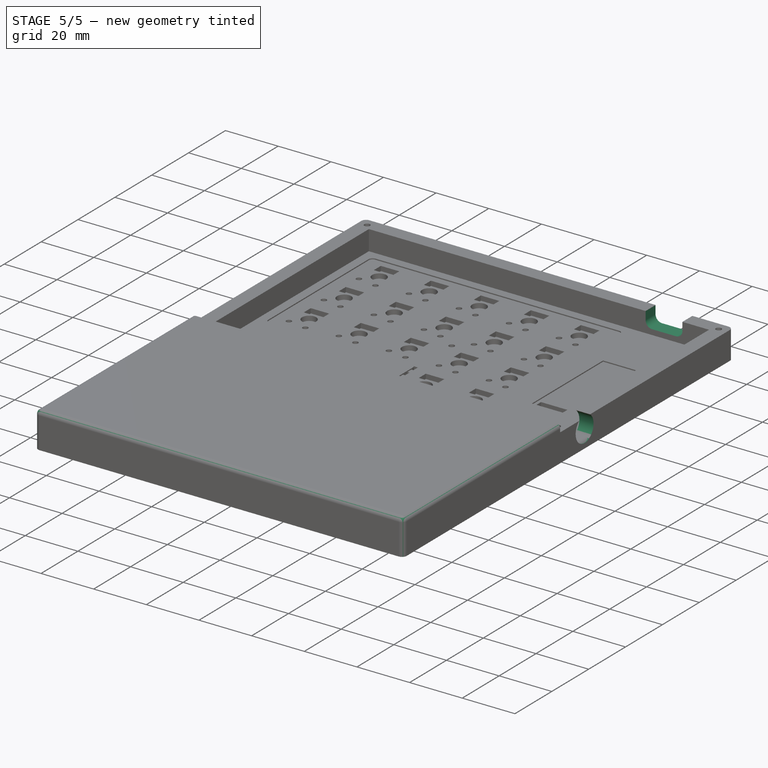
[diagram: stage 5 of 5 — iso view after this stage's code; geometry added in this stage tinted green]
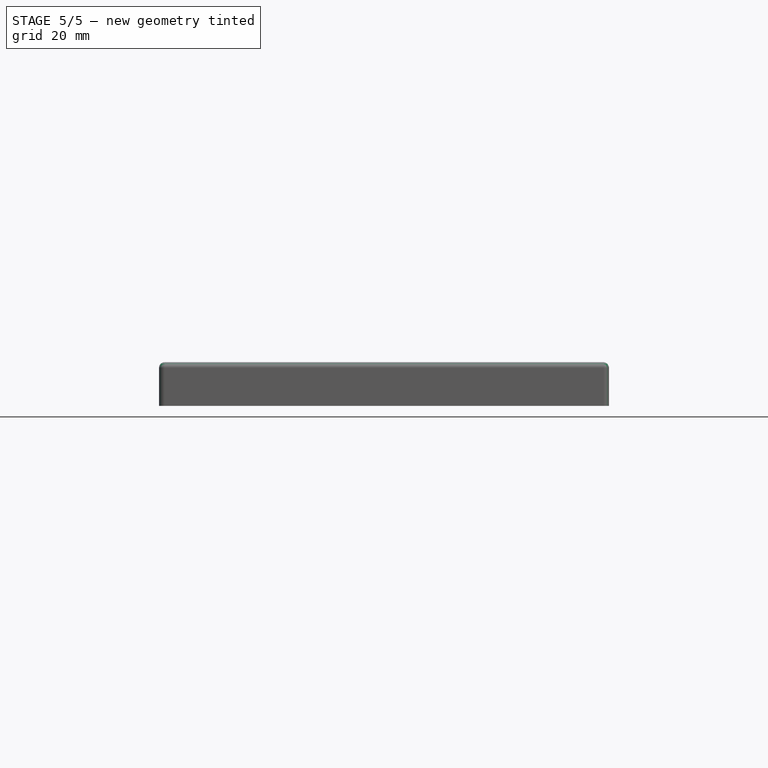
[diagram: stage 5 of 5 — front view after this stage's code; geometry added in this stage tinted green]
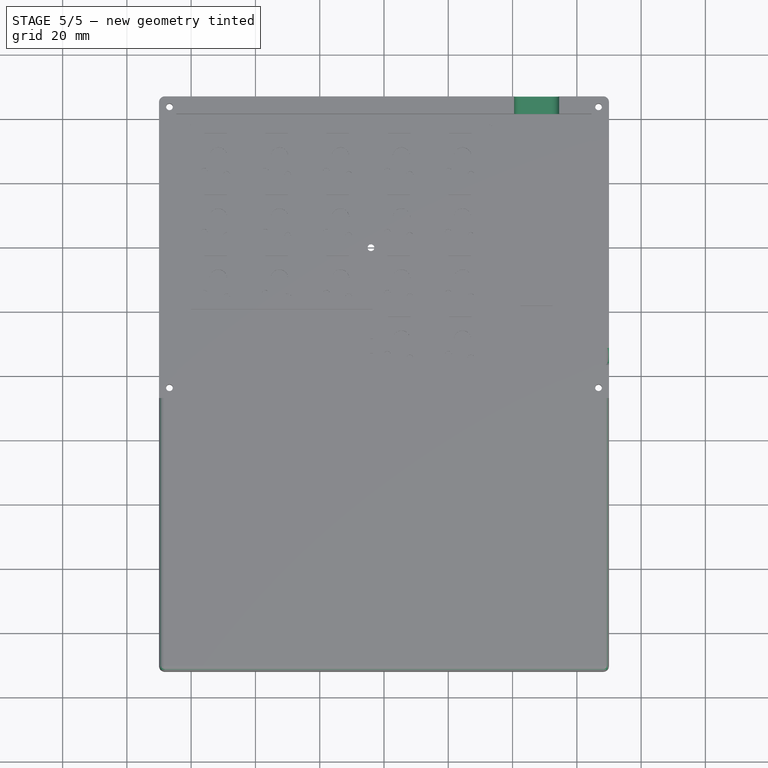
[diagram: stage 5 of 5 — top view after this stage's code; geometry added in this stage tinted green]
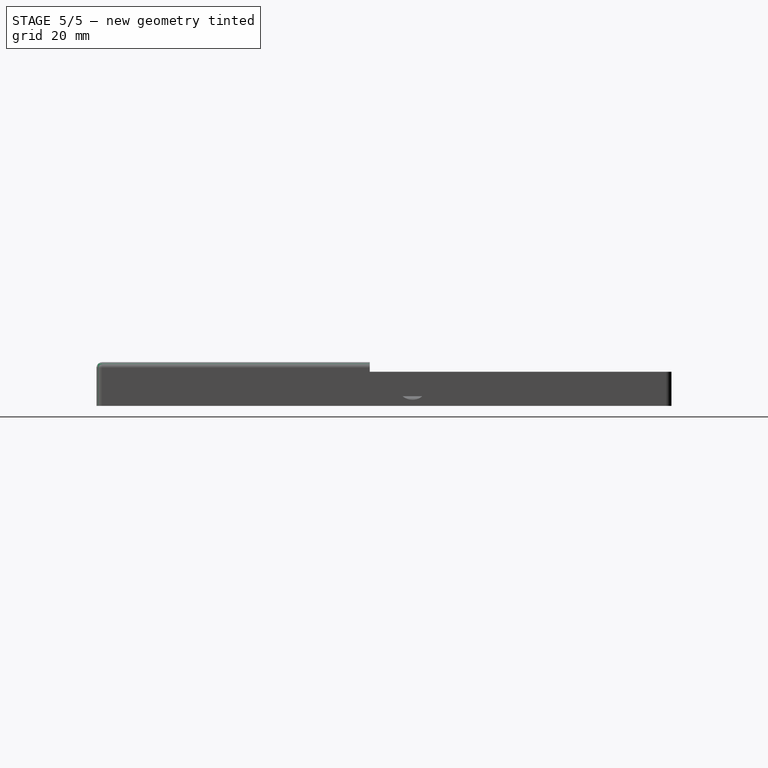
[diagram: stage 5 of 5 — right view after this stage's code; geometry added in this stage tinted green]
FEATURE [Sketcher::SketchObject] Sketch034
  ArcFitTolerance = 1e-06
  AttachmentSupport = -> [Pocket024]
  ExternalTypes = [0]
  FullyConstrained = true
  MakeInternals = false
  MapMode = 5
  Placement = pos=(0,0,2.6) rot=(0,0,1;0rad)
  sketch-geometry (8):
    g0: LineSegment [constr] StartX=0 StartY=0 StartZ=0 EndX=0 EndY=-27.375 EndZ=0
    g1: LineSegment [constr] StartX=0 StartY=-27.375 StartZ=0 EndX=46.875 EndY=-27.375 EndZ=0
    g2: LineSegment [constr] StartX=46.875 StartY=-27.375 StartZ=0 EndX=46.875 EndY=0 EndZ=0
    g3: LineSegment [constr] StartX=46.875 StartY=0 StartZ=0 EndX=0 EndY=0 EndZ=0
    g4: LineSegment StartX=61.875 StartY=-37.375 StartZ=0 EndX=61.875 EndY=-27.375 EndZ=0
    g5: LineSegment StartX=61.875 StartY=-27.375 StartZ=0 EndX=46.875 EndY=-27.375 EndZ=0
    g6: LineSegment StartX=46.875 StartY=-27.375 StartZ=0 EndX=46.875 EndY=-37.375 EndZ=0
    g7: LineSegment StartX=46.875 StartY=-37.375 StartZ=0 EndX=61.875 EndY=-37.375 EndZ=0
  constraints (22):
    c: Coincident(g0,g1)
    c: Coincident(g1,g2)
    c: Coincident(g2,g3)
    c: Coincident(g3,g0)
    c: Vertical(g0)
    c: Vertical(g2)
    c: Horizontal(g1)
    c: Horizontal(g3)
    c: Coincident(g4,g5)
    c: Coincident(g5,g6)
    c: Coincident(g6,g7)
    c: Coincident(g7,g4)
    c: Vertical(g4)
    c: Vertical(g6)
    c: Horizontal(g5)
    c: Horizontal(g7)
    c: DistanceY(g4,g4) = 10
    c: DistanceX(g7,g7) = 15
    c: Coincident(g1,g5)
    c: DistanceY(g2,g2) = 27.375
    c: DistanceX(g1,g1) = 46.875
    c: Coincident(g0,g-1)
FEATURE [PartDesign::Pocket] Pocket025
  BaseFeature = -> Pocket024
  Direction = (0,0,-1)
  Length = 1.8
  Length2 = 5
  Profile = -> Sketch034
  ReferenceAxis = -> Sketch034 [N_Axis]
  Refine = true
  Suppressed = false
  Type = 0
FEATURE [Sketcher::SketchObject] Sketch035
  ArcFitTolerance = 1e-06
  AttachmentSupport = -> [Pocket025]
  ExternalTypes = [0]
  FullyConstrained = true
  MakeInternals = false
  MapMode = 5
  Placement = pos=(70,0,0) rot=(0.57735,0.57735,0.57735;2.0944rad)
  sketch-geometry (5):
    g0: LineSegment [constr] StartX=0 StartY=0 StartZ=0 EndX=0 EndY=6.75 EndZ=0
    g1: LineSegment [constr] StartX=0 StartY=6.75 StartZ=0 EndX=-33.65 EndY=6.75 EndZ=0
    g2: LineSegment [constr] StartX=-33.65 StartY=6.75 StartZ=0 EndX=-33.65 EndY=0 EndZ=0
    g3: LineSegment [constr] StartX=-33.65 StartY=0 StartZ=0 EndX=0 EndY=0 EndZ=0
    g4: Circle CenterX=-33.65 CenterY=6.75 CenterZ=0 NormalX=0 NormalY=0 NormalZ=1 AngleXU=0 Radius=4.85
  constraints (13):
    c: Coincident(g0,g1)
    c: Coincident(g1,g2)
    c: Coincident(g2,g3)
    c: Coincident(g3,g0)
    c: Vertical(g0)
    c: Vertical(g2)
    c: Horizontal(g1)
    c: Horizontal(g3)
    c: Coincident(g0,g-1)
    c: DistanceX(g1,g1) = 33.65
    c: DistanceY(g2,g2) = 6.75
    c: Diameter(g4) = 9.7
    c: Coincident(g4,g1)
FEATURE [PartDesign::Pocket] Pocket026
  BaseFeature = -> Pocket025
  Direction = (-1,0,0)
  Length = 5
  Length2 = 5
  Profile = -> Sketch035
  ReferenceAxis = -> Sketch035 [N_Axis]
  Refine = true
  Suppressed = false
  Type = 2
FEATURE [Sketcher::SketchObject] Sketch036
  ArcFitTolerance = 1e-06
  AttachmentSupport = -> [Pocket026]
  ExternalTypes = [0]
  FullyConstrained = false
  MakeInternals = false
  MapMode = 5
  Placement = pos=(0,46.95,0) rot=(0,0.707107,0.707107;3.14159rad)
  sketch-geometry (14):
    g0: LineSegment [constr] StartX=0 StartY=0 StartZ=0 EndX=0 EndY=5.1 EndZ=0
    g1: LineSegment [constr] StartX=0 StartY=5.1 StartZ=0 EndX=-40.5 EndY=5.1 EndZ=0
    g2: LineSegment [constr] StartX=-40.5 StartY=5.1 StartZ=0 EndX=-40.5 EndY=0 EndZ=0
    g3: LineSegment [constr] StartX=-40.5 StartY=0 StartZ=0 EndX=0 EndY=0 EndZ=0
    g4: LineSegment StartX=-40.5 StartY=5.1 StartZ=0 EndX=-40.5 EndY=11.3646 EndZ=0
    g5: LineSegment StartX=-42.2354 StartY=13.1 StartZ=0 EndX=-52.385 EndY=13.1 EndZ=0
    g6: LineSegment StartX=-54.5 StartY=10.985 StartZ=0 EndX=-54.5 EndY=5.1 EndZ=0
    g7: LineSegment StartX=-54.5 StartY=5.1 StartZ=0 EndX=-40.5 EndY=5.1 EndZ=0
    g8: LineSegment [constr] StartX=-54.5 StartY=5.1 StartZ=0 EndX=-40.5 EndY=13.1 EndZ=0
    g9: LineSegment [constr] StartX=-54.5 StartY=13.1 StartZ=0 EndX=-40.5 EndY=5.1 EndZ=0
    g10: ArcOfCircle CenterX=-42.2354 CenterY=11.3646 CenterZ=0 NormalX=0 NormalY=0 NormalZ=1 AngleXU=0 Radius=1.73544 StartAngle=0 EndAngle=1.5708
    g11: GeomPoint [constr] X=-40.5 Y=13.1 Z=0
    g12: ArcOfCircle CenterX=-52.385 CenterY=10.985 CenterZ=0 NormalX=0 NormalY=0 NormalZ=1 AngleXU=0 Radius=2.11498 StartAngle=1.5708 EndAngle=3.14159
    g13: GeomPoint [constr] X=-54.5 Y=13.1 Z=0
  constraints (32):
    c: Coincident(g0,g1)
    c: Coincident(g1,g2)
    c: Coincident(g2,g3)
    c: Coincident(g3,g0)
    c: Vertical(g0)
    c: Vertical(g2)
    c: Horizontal(g1)
    c: Horizontal(g3)
    c: Coincident(g0,g-1)
    c: Coincident(g6,g7)
    c: Coincident(g7,g4)
    c: Vertical(g4)
    c: Vertical(g6)
    c: Horizontal(g5)
    c: Horizontal(g7)
    c: Distance(g4,g6) = 14
    c: Distance(g11,g7) = 8
    c: Coincident(g4,g1)
    c: Coincident(g8,g6)
    c: Coincident(g8,g11)
    c: Coincident(g9,g13)
    c: Coincident(g9,g1)
    c: DistanceX(g1,g1) = 40.5
    c: DistanceY(g2,g2) = 5.1
    c: PointOnObject(g11,g4)
    c: PointOnObject(g11,g5)
    c: Tangent(g4,g10) = -1.5708
    c: Tangent(g5,g10) = -1.5708
    c: PointOnObject(g13,g5)
    c: PointOnObject(g13,g6)
    c: Tangent(g5,g12) = -1.5708
    c: Tangent(g6,g12) = -1.5708
FEATURE [PartDesign::Fillet] Fillet003
  Base = -> Pocket026 [Edge40,Edge61,Edge41,Edge2,Edge4,Edge57,Edge56]
  BaseFeature = -> Pocket026
  Radius = 1.8
  Refine = true
  SupportTransform = false
  Suppressed = false
  UseAllEdges = false
FEATURE [Sketcher::SketchObject] Sketch037
  ArcFitTolerance = 1e-06
  AttachmentSupport = -> [Fillet003]
  ExternalTypes = [0]
  FullyConstrained = true
  MakeInternals = false
  MapMode = 5
  Placement = pos=(0,46.95,0) rot=(0,0.707107,0.707107;3.14159rad)
  sketch-geometry (18):
    g0: LineSegment [constr] StartX=0 StartY=0 StartZ=0 EndX=0 EndY=5 EndZ=0
    g1: LineSegment [constr] StartX=0 StartY=5 StartZ=0 EndX=-40.5 EndY=5 EndZ=0
    g2: LineSegment [constr] StartX=-40.5 StartY=5 StartZ=0 EndX=-40.5 EndY=0 EndZ=0
    g3: LineSegment [constr] StartX=-40.5 StartY=0 StartZ=0 EndX=0 EndY=0 EndZ=0
    g4: LineSegment StartX=-40.5 StartY=7.5 StartZ=0 EndX=-40.5 EndY=10.5 EndZ=0
    g5: LineSegment StartX=-43 StartY=13 StartZ=0 EndX=-52 EndY=13 EndZ=0
    g6: LineSegment StartX=-54.5 StartY=10.5 StartZ=0 EndX=-54.5 EndY=7.5 EndZ=0
    g7: LineSegment StartX=-52 StartY=5 StartZ=0 EndX=-43 EndY=5 EndZ=0
    g8: LineSegment [constr] StartX=-54.5 StartY=5 StartZ=0 EndX=-40.5 EndY=13 EndZ=0
    g9: LineSegment [constr] StartX=-40.5 StartY=5 StartZ=0 EndX=-54.5 EndY=13 EndZ=0
    g10: ArcOfCircle CenterX=-43 CenterY=7.5 CenterZ=0 NormalX=0 NormalY=0 NormalZ=1 AngleXU=0 Radius=2.5 StartAngle=4.71239 EndAngle=6.28319
    g11: GeomPoint [constr] X=-40.5 Y=5 Z=0
    g12: ArcOfCircle CenterX=-43 CenterY=10.5 CenterZ=0 NormalX=0 NormalY=0 NormalZ=1 AngleXU=0 Radius=2.5 StartAngle=0 EndAngle=1.5708
    g13: GeomPoint [constr] X=-40.5 Y=13 Z=0
    g14: ArcOfCircle CenterX=-52 CenterY=10.5 CenterZ=0 NormalX=0 NormalY=0 NormalZ=1 AngleXU=0 Radius=2.5 StartAngle=1.5708 EndAngle=3.14159
    g15: GeomPoint [constr] X=-54.5 Y=13 Z=0
    g16: ArcOfCircle CenterX=-52 CenterY=7.5 CenterZ=0 NormalX=0 NormalY=0 NormalZ=1 AngleXU=0 Radius=2.5 StartAngle=3.14159 EndAngle=4.71239
    g17: GeomPoint [constr] X=-54.5 Y=5 Z=0
  constraints (42):
    c: Coincident(g0,g1)
    c: Coincident(g1,g2)
    c: Coincident(g2,g3)
    c: Coincident(g3,g0)
    c: Vertical(g0)
    c: Vertical(g2)
    c: Horizontal(g1)
    c: Horizontal(g3)
    c: Coincident(g0,g-1)
    c: Vertical(g4)
    c: Vertical(g6)
    c: Horizontal(g5)
    c: Horizontal(g7)
    c: Distance(g11,g17) = 14
    c: Distance(g13,g11) = 8
    c: Coincident(g11,g1)
    c: Coincident(g8,g17)
    c: Coincident(g8,g13)
    c: Coincident(g9,g1)
    c: Coincident(g9,g15)
    c: DistanceX(g3,g3) = 40.5
    c: DistanceY(g2,g2) = 5
    c: PointOnObject(g11,g7)
    c: PointOnObject(g11,g4)
    c: Tangent(g7,g10) = -1.5708
    c: Tangent(g4,g10) = -1.5708
    c: PointOnObject(g13,g4)
    c: PointOnObject(g13,g5)
    c: Tangent(g4,g12) = -1.5708
    c: Tangent(g5,g12) = -1.5708
    c: PointOnObject(g15,g5)
    c: PointOnObject(g15,g6)
    c: Tangent(g5,g14) = -1.5708
    c: Tangent(g6,g14) = -1.5708
    c: PointOnObject(g17,g6)
    c: PointOnObject(g17,g7)
    c: Tangent(g6,g16) = -1.5708
    c: Tangent(g7,g16) = -1.5708
    c: Equal(g14,g12)
    c: Equal(g12,g10)
    c: Equal(g10,g16)
    c: Diameter(g14) = 5
FEATURE [PartDesign::Pocket] Pocket027
  BaseFeature = -> Fillet003
  Direction = (0,-1,2e-16)
  Length = 10
  Length2 = 5
  Profile = -> Sketch037
  ReferenceAxis = -> Sketch037 [N_Axis]
  Refine = true
  Suppressed = false
  Type = 0
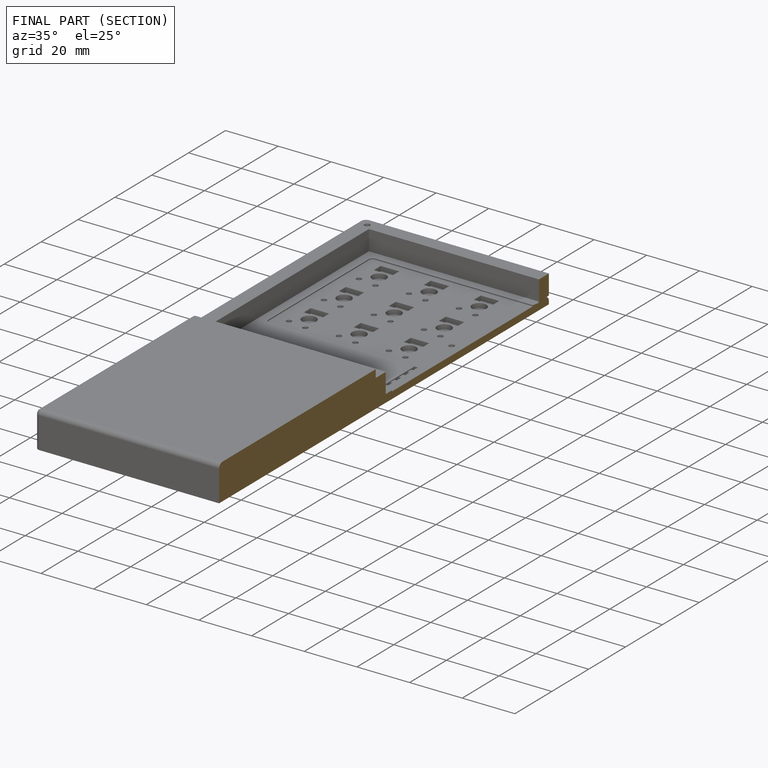
[diagram: finished part — half-section view (interior)]
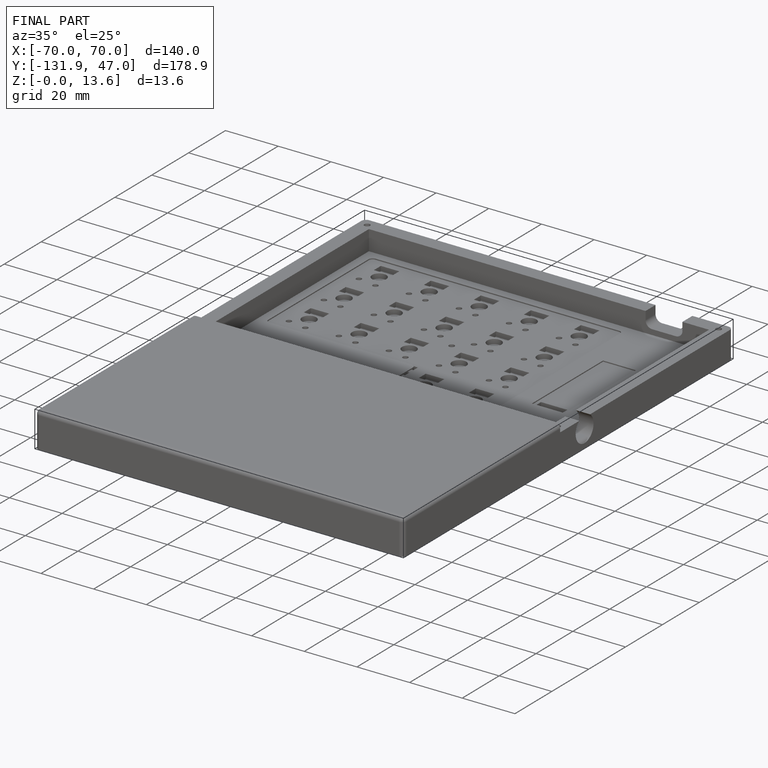
[diagram: finished part — iso view with bounding-box wireframe]
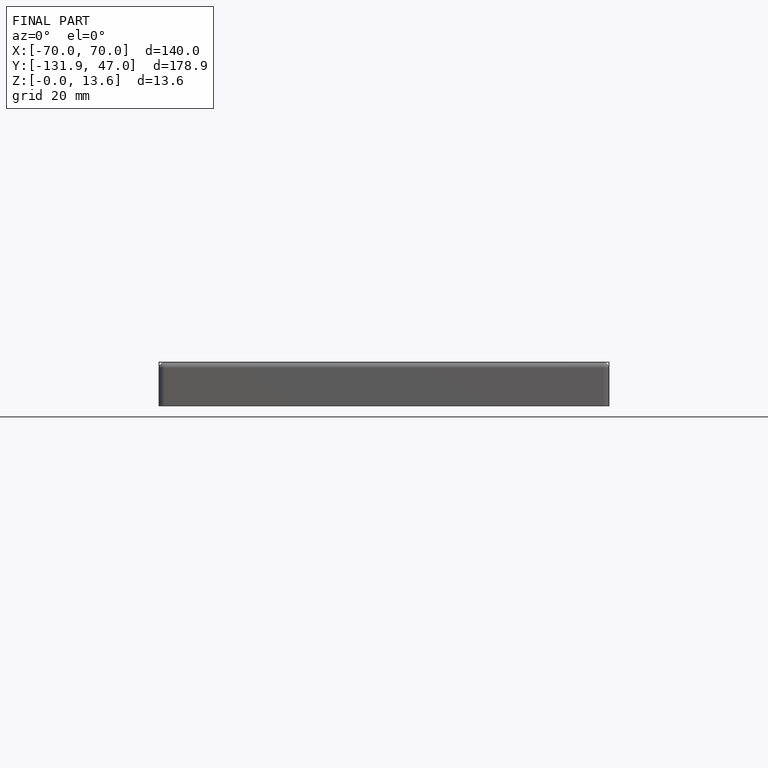
[diagram: finished part — front view with bounding-box wireframe]
